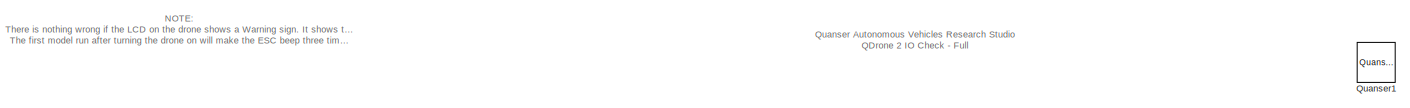
[diagram: root canvas - part 1/3, top center region]
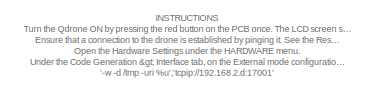
[diagram: root canvas - part 2/3, top left region]
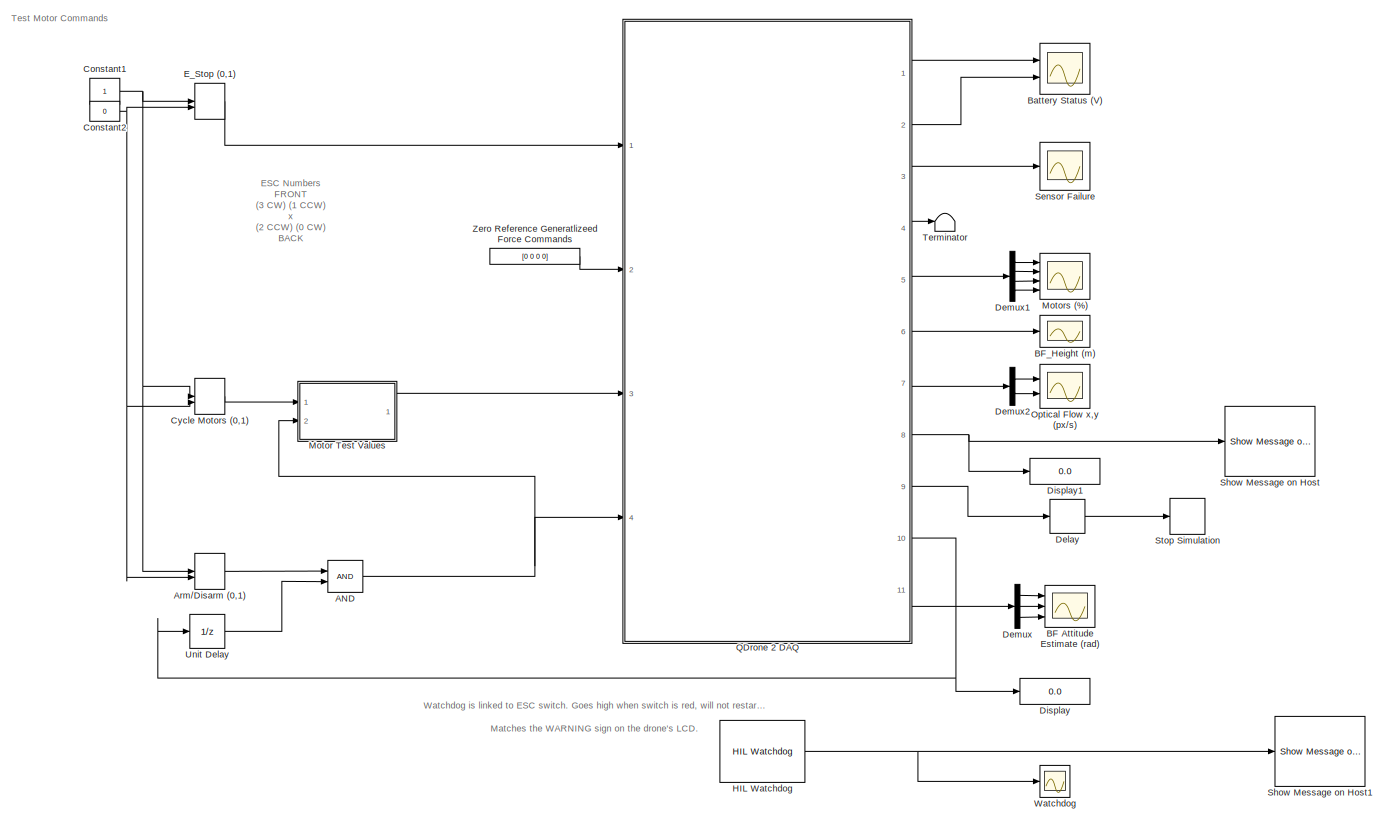
[diagram: root canvas - part 3/3, right side, full height]
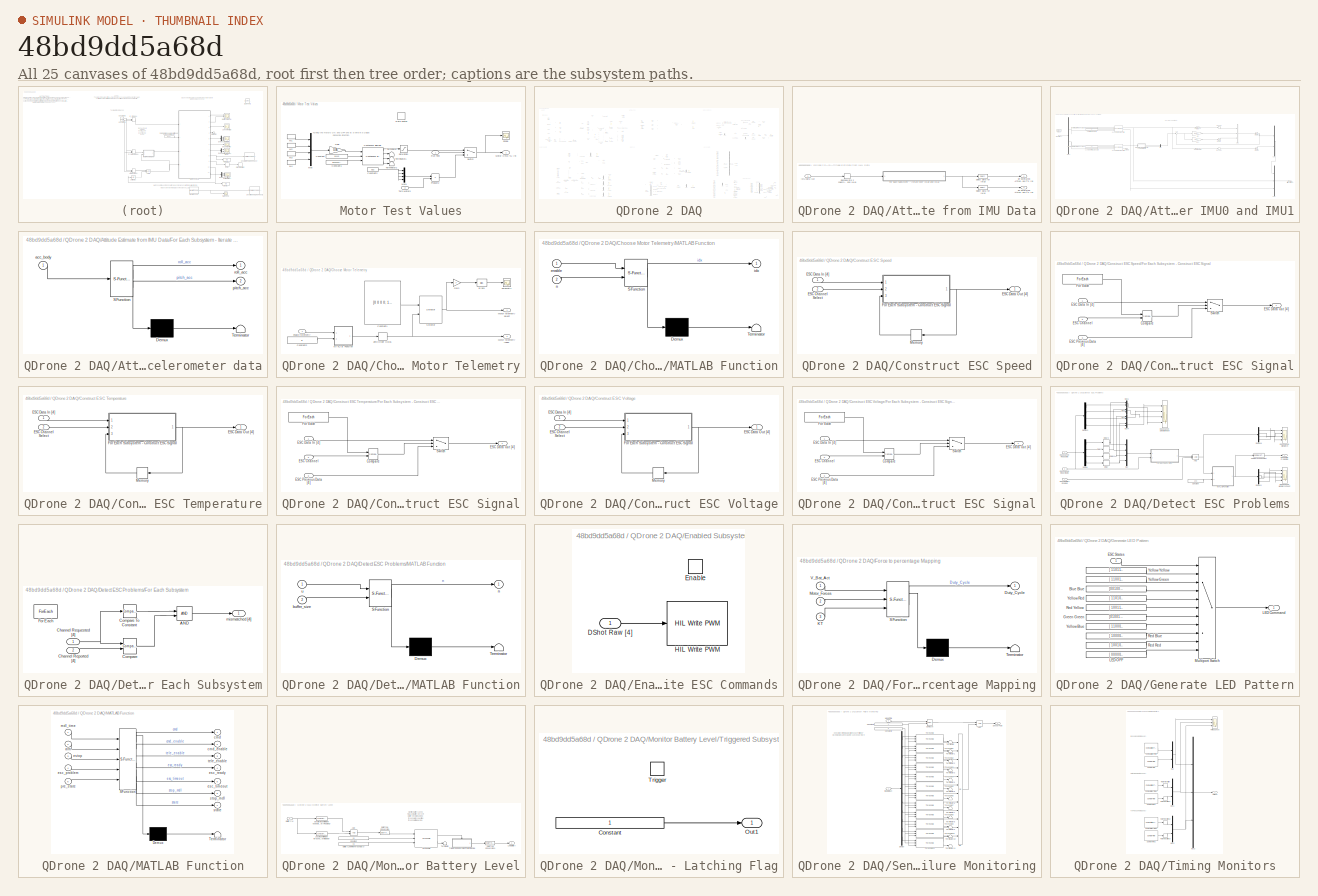
[diagram: thumbnail index - all 25 canvases of the model, root first then tree order]
MODEL slx_48bd9dd5a68d
KIND model
CONFIG AbsTol = auto
CONFIG EnableMultiTasking = on
CONFIG FixedStep = 0.002
CONFIG InitFcn = Motor_Mapping_7_Inch
CONFIG MaxStep = auto
CONFIG MinStep = auto
CONFIG RelTol = 1e-3
CONFIG SampleTimeConstraint = Unconstrained
CONFIG SolverName = ode2
CONFIG StartTime = 0.0
CONFIG StopTime = inf
BLOCK [Logic] AND
  AllPortsSameDT = off
  IconShape = distinctive
  OutDataTypeStr = boolean
  Ports = [2, 1]
BLOCK [ManualSwitch] Arm//Disarm (0,1)
  CurrentSetting = 0
  InitFcn = set_param(gcb,'sw','0')
BLOCK [Scope] BF Attitude Estimate (rad) 
  Floating = off
  NameLocation = right
  NumInputPorts = 3
  Ports = [3]
  ScopeSpecificationString = Simulink.scopes.TimeScopeBlockCfg('CurrentConfiguration', extmgr.ConfigurationSet(extmgr.Configuration('Core','General UI',true),extmgr.Configuration('Core','Source UI',true),extmgr.Configuration('Sources','WiredSimulink',true,'DataLoggingVariableName','ScopeData1','DataLoggingSaveFormat','Array','DataLoggingDecimation','1','DataLoggingDecimateData',true),extmgr.Configuration('Visuals','Time Domai...<+3142ch>
BLOCK [Scope] BF_Height (m)
  Floating = off
  NameLocation = right
  NumInputPorts = 1
  Ports = [1]
  ScopeSpecificationString = Simulink.scopes.TimeScopeBlockCfg('CurrentConfiguration', extmgr.ConfigurationSet(extmgr.Configuration('Core','General UI',true),extmgr.Configuration('Core','Source UI',true),extmgr.Configuration('Sources','WiredSimulink',true,'DataLoggingVariableName','ScopeData2'),extmgr.Configuration('Visuals','Time Domain',true,'SerializedDisplays',{struct('MinYLimReal','0','MaxYLimReal','1.5','YLabelReal','',...<+1423ch>
BLOCK [Scope] Battery Status (V)
  Floating = off
  NameLocation = right
  NumInputPorts = 2
  Ports = [2]
  ScopeSpecificationString = Simulink.scopes.TimeScopeBlockCfg('CurrentConfiguration', extmgr.ConfigurationSet(extmgr.Configuration('Core','General UI',true),extmgr.Configuration('Core','Source UI',true),extmgr.Configuration('Sources','WiredSimulink',true),extmgr.Configuration('Visuals','Time Domain',true,'SerializedDisplays',{struct('MinYLimReal','-1.00000','MaxYLimReal','1.00000','YLabelReal','','MinYLimMag','0.00000','MaxY...<+2022ch>
BLOCK [Constant] Constant1
BLOCK [Constant] Constant2
  Value = 0
BLOCK [ManualSwitch] Cycle Motors (0,1)
  CurrentSetting = 0
  InitFcn = set_param(gcb,'sw','0')
BLOCK [Delay] Delay
  InputPortMap = u0
  Ports = [1, 1]
BLOCK [Demux] Demux
  Outputs = 3
  Ports = [1, 3]
BLOCK [Demux] Demux1
  Ports = [1, 4]
BLOCK [Demux] Demux2
  Outputs = 2
  Ports = [1, 2]
BLOCK [Display] Display
  Decimation = 1
  Ports = [1]
BLOCK [Display] Display1
  Decimation = 1
  Ports = [1]
BLOCK [ManualSwitch] E_Stop (0,1)
  CurrentSetting = 0
BLOCK [Reference] HIL Watchdog  REF=quarc_library/Data Acquisition/Generic/Watchdog/HIL Watchdog
  AttributesFormatString = (%<object_name>)
  Ports = [0, 1]
  SourceBlock = quarc_library/Data Acquisition/Generic/Watchdog/HIL Watchdog
  SourceProductName = QUARC Targets
  SourceType = HIL Watchdog
  UserDataPersistent = on
BLOCK [SubSystem] Motor Test Values
  NameLocation = top
  Ports = [2, 1]
BLOCK [Constant] Motor Test Values/Constant
  Value = [4 4 4 4]
BLOCK [Constant] Motor Test Values/Constant1
  Value = [10 10 10 10]
BLOCK [Constant] Motor Test Values/Constant2
  Value = 0.02
BLOCK [Reference] Motor Test Values/Continuous Sigmoid  REF=quarc_library/Sources/Sigmoids/Continuous Sigmoid
  Ports = [3, 4]
  SourceBlock = quarc_library/Sources/Sigmoids/Continuous Sigmoid
  SourceProductName = QUARC Targets
  SourceType = Continuous Sigmoid
BLOCK [Gain] Motor Test Values/Gain
  Gain = 0.06
BLOCK [DiscretePulseGenerator] Motor Test Values/M1
  Period = 8
  Ports = [0, 1]
  PulseType = Time based
  PulseWidth = 12.5
BLOCK [DiscretePulseGenerator] Motor Test Values/M2
  Period = 8
  PhaseDelay = 6
  Ports = [0, 1]
  PulseType = Time based
  PulseWidth = 12.5
BLOCK [DiscretePulseGenerator] Motor Test Values/M3
  Period = 8
  PhaseDelay = 2
  Ports = [0, 1]
  PulseType = Time based
  PulseWidth = 12.5
BLOCK [DiscretePulseGenerator] Motor Test Values/M4
  Period = 8
  PhaseDelay = 4
  Ports = [0, 1]
  PulseType = Time based
  PulseWidth = 12.5
BLOCK [Outport] Motor Test Values/Motor Cmd (%) [4]
  VectorParamsAs1DForOutWhenUnconnected = off
BLOCK [Mux] Motor Test Values/Mux
  DisplayOption = bar
  Ports = [4, 1]
BLOCK [Mux] Motor Test Values/Mux1
  DisplayOption = bar
  Ports = [4, 1]
BLOCK [Product] Motor Test Values/Product2
  Ports = [2, 1]
BLOCK [RateLimiter] Motor Test Values/Rate Limiter
  Commented = on
  FallingSlewLimit = -0.1
  RisingSlewLimit = 0.1
  SampleTimeMode = inherited
BLOCK [Inport] Motor Test Values/Run Test
  NameLocation = left
BLOCK [Saturate] Motor Test Values/Saturation
  LowerLimit = 0.02
  UpperLimit = 0.1
BLOCK [Scope] Motor Test Values/Scope
  Floating = off
  NumInputPorts = 1
  Ports = [1]
  ScopeSpecificationString = Simulink.scopes.TimeScopeBlockCfg('CurrentConfiguration', extmgr.ConfigurationSet(extmgr.Configuration('Core','General UI',true),extmgr.Configuration('Core','Source UI',true),extmgr.Configuration('Sources','WiredSimulink',true,'DataLoggingVariableName','ScopeData1'),extmgr.Configuration('Visuals','Time Domain',true,'SerializedDisplays',{struct('MinYLimReal','-0.0075','MaxYLimReal','0.0675','YLabel...<+1448ch>
BLOCK [Switch] Motor Test Values/Switch
  Criteria = u2 > Threshold
  InputSameDT = off
  SaturateOnIntegerOverflow = off
BLOCK [Terminator] Motor Test Values/Terminator
BLOCK [Terminator] Motor Test Values/Terminator1
BLOCK [Terminator] Motor Test Values/Terminator2
BLOCK [Inport] Motor Test Values/Turn Motors
  NameLocation = left
  Port = 2
BLOCK [Scope] Motors (%)
  Floating = off
  NameLocation = right
  NumInputPorts = 4
  Ports = [4]
  ScopeSpecificationString = Simulink.scopes.TimeScopeBlockCfg('CurrentConfiguration', extmgr.ConfigurationSet(extmgr.Configuration('Core','General UI',true),extmgr.Configuration('Core','Source UI',true),extmgr.Configuration('Sources','WiredSimulink',true,'DataLoggingVariableName','ScopeData2'),extmgr.Configuration('Visuals','Time Domain',true,'SerializedDisplays',{struct('MinYLimReal','-0.0349','MaxYLimReal','0.1167','YLabel...<+3880ch>
BLOCK [Scope] Optical Flow x,y (px//s)
  Floating = off
  NameLocation = right
  NumInputPorts = 2
  Ports = [2]
  ScopeSpecificationString = Simulink.scopes.TimeScopeBlockCfg('CurrentConfiguration', extmgr.ConfigurationSet(extmgr.Configuration('Core','General UI',true),extmgr.Configuration('Core','Source UI',true),extmgr.Configuration('Sources','WiredSimulink',true,'DataLoggingVariableName','ScopeData4'),extmgr.Configuration('Visuals','Time Domain',true,'SerializedDisplays',{struct('MinYLimReal','-1094.93542','MaxYLimReal','1121.71199'...<+2088ch>
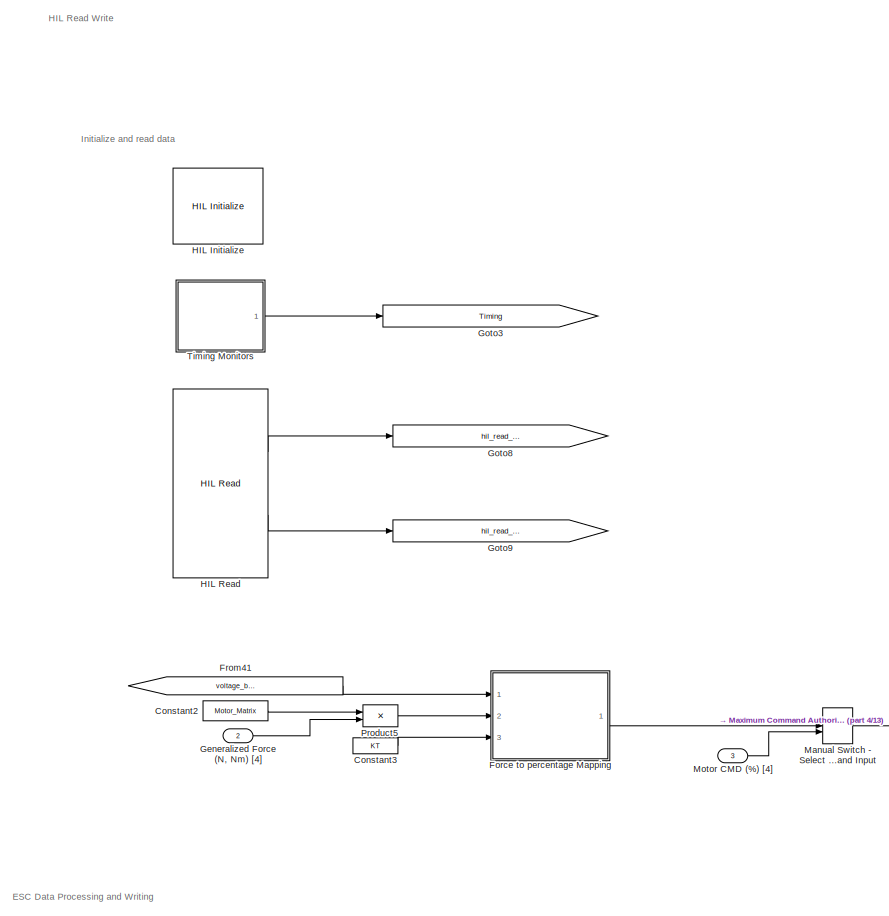
[diagram: QDrone 2 DAQ - part 1/13, top left region]
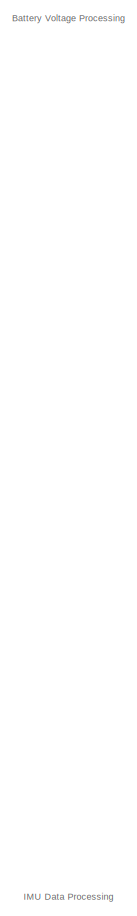
[diagram: QDrone 2 DAQ - part 2/13, top center region]
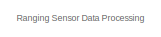
[diagram: QDrone 2 DAQ - part 3/13, top right region]
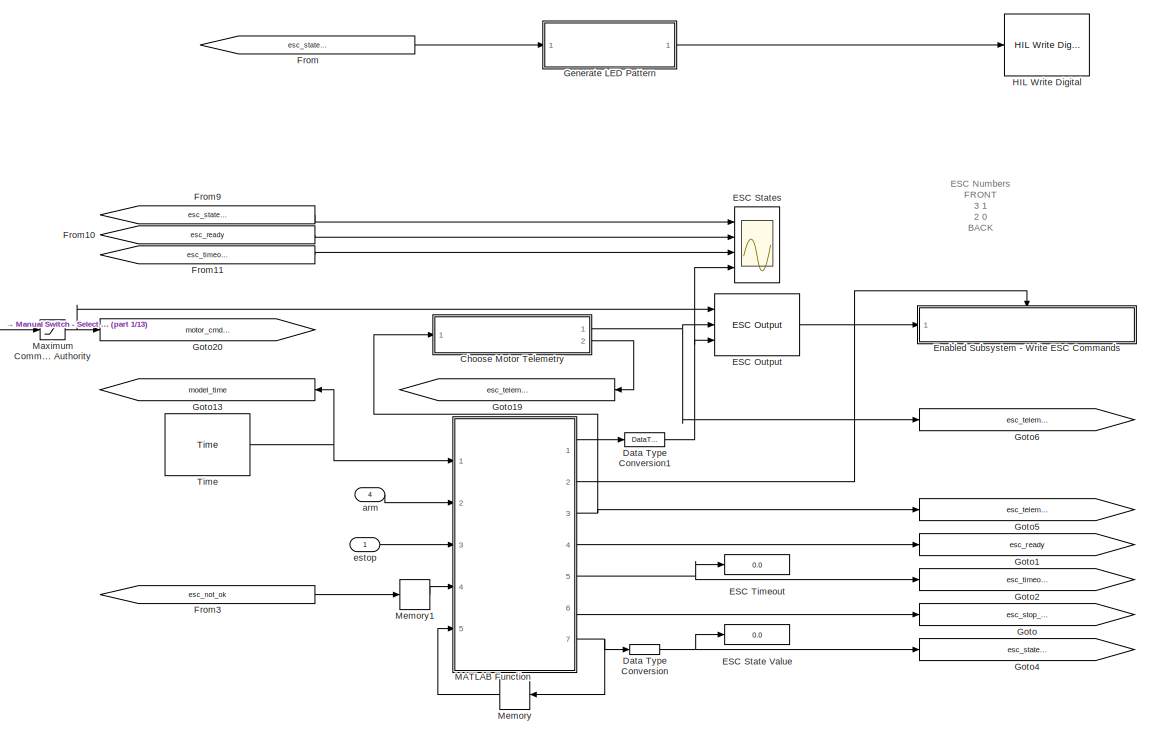
[diagram: QDrone 2 DAQ - part 4/13, top left region]
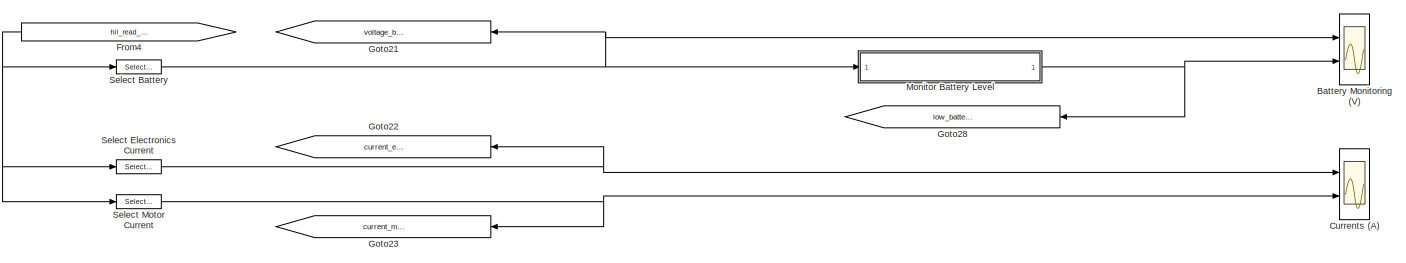
[diagram: QDrone 2 DAQ - part 5/13, top center region]
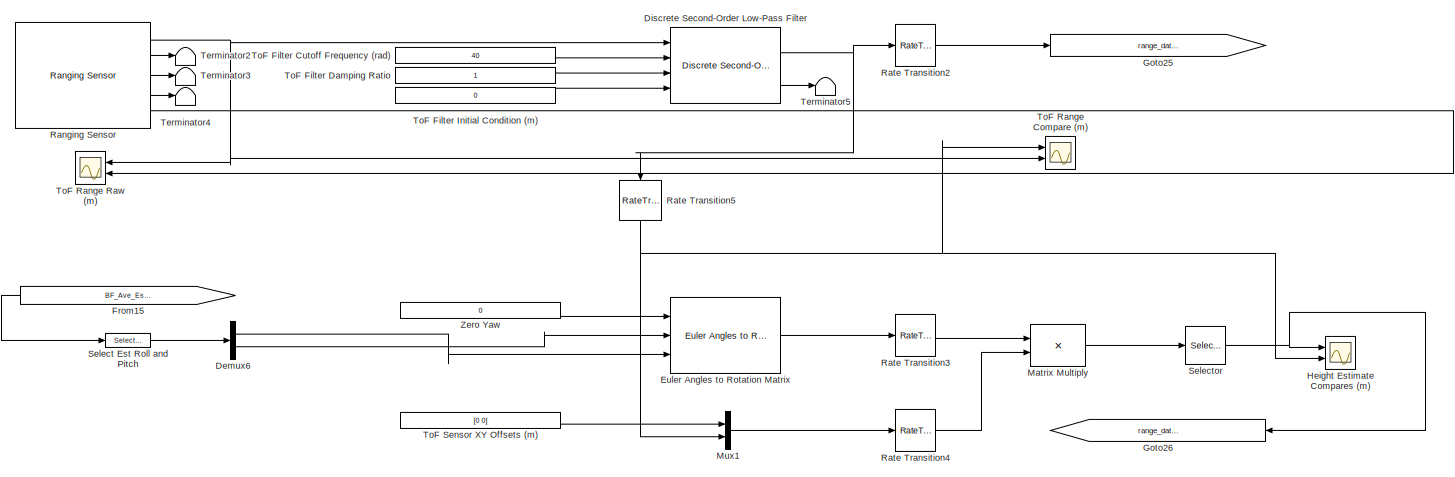
[diagram: QDrone 2 DAQ - part 6/13, top right region]
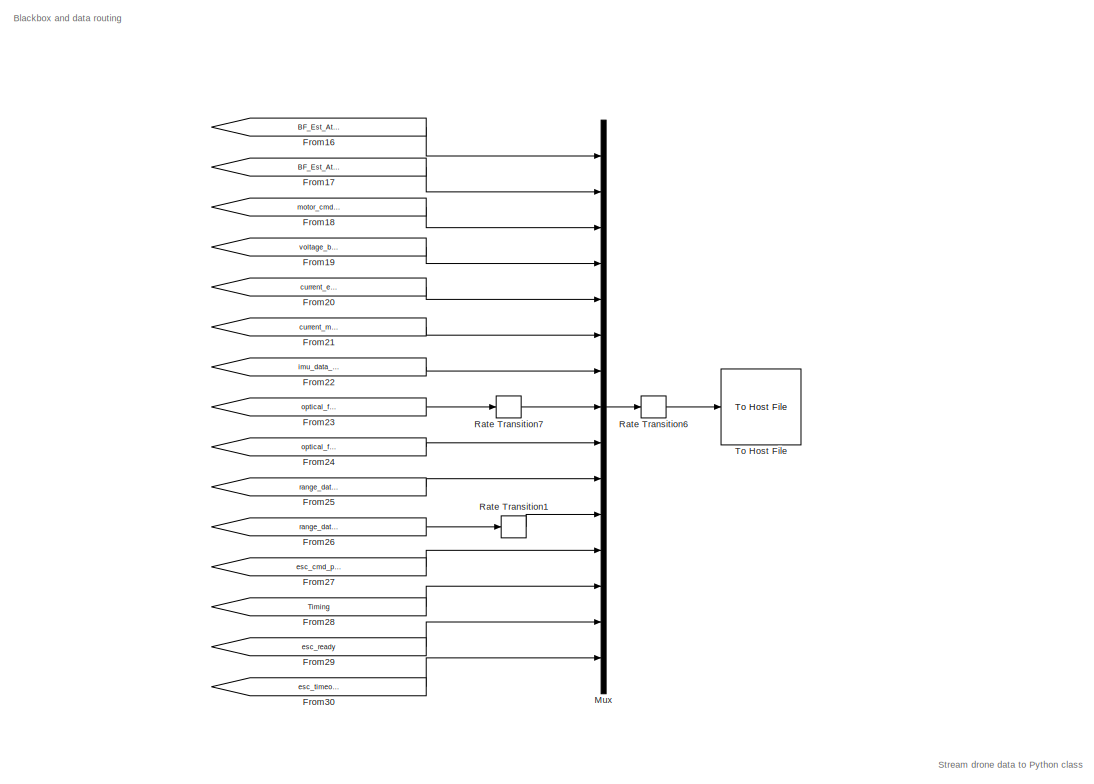
[diagram: QDrone 2 DAQ - part 7/13, middle right region]
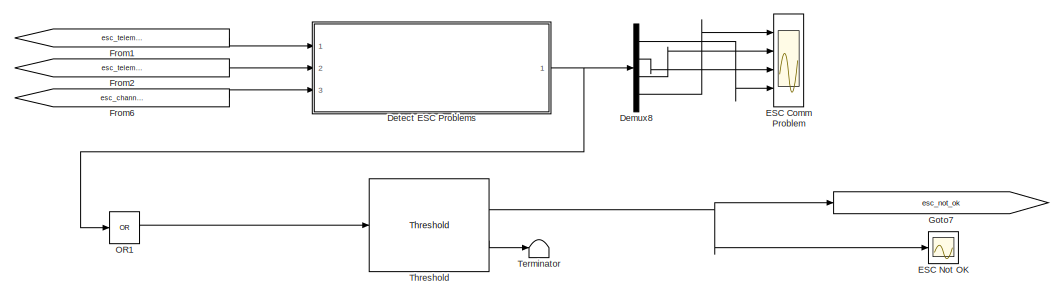
[diagram: QDrone 2 DAQ - part 8/13, middle left region]
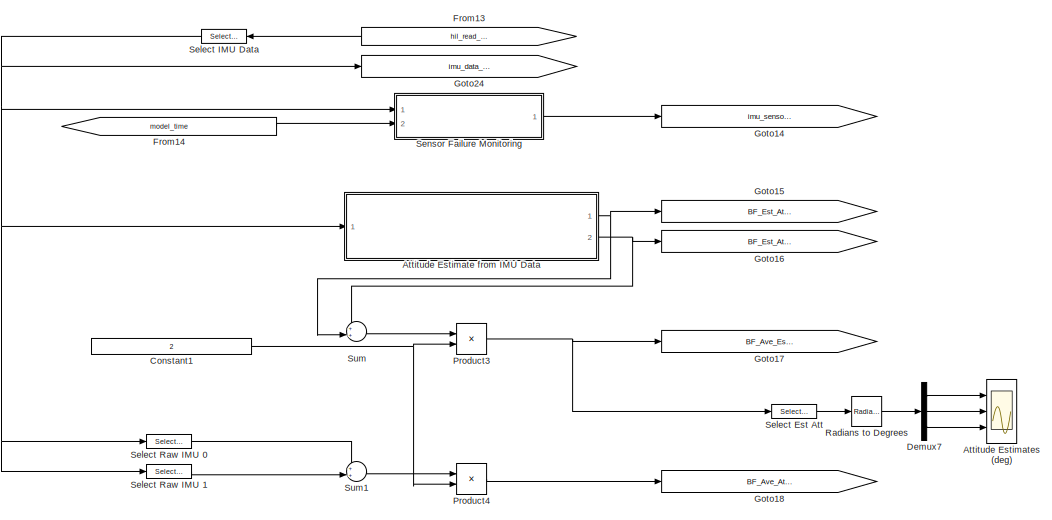
[diagram: QDrone 2 DAQ - part 9/13, central region]
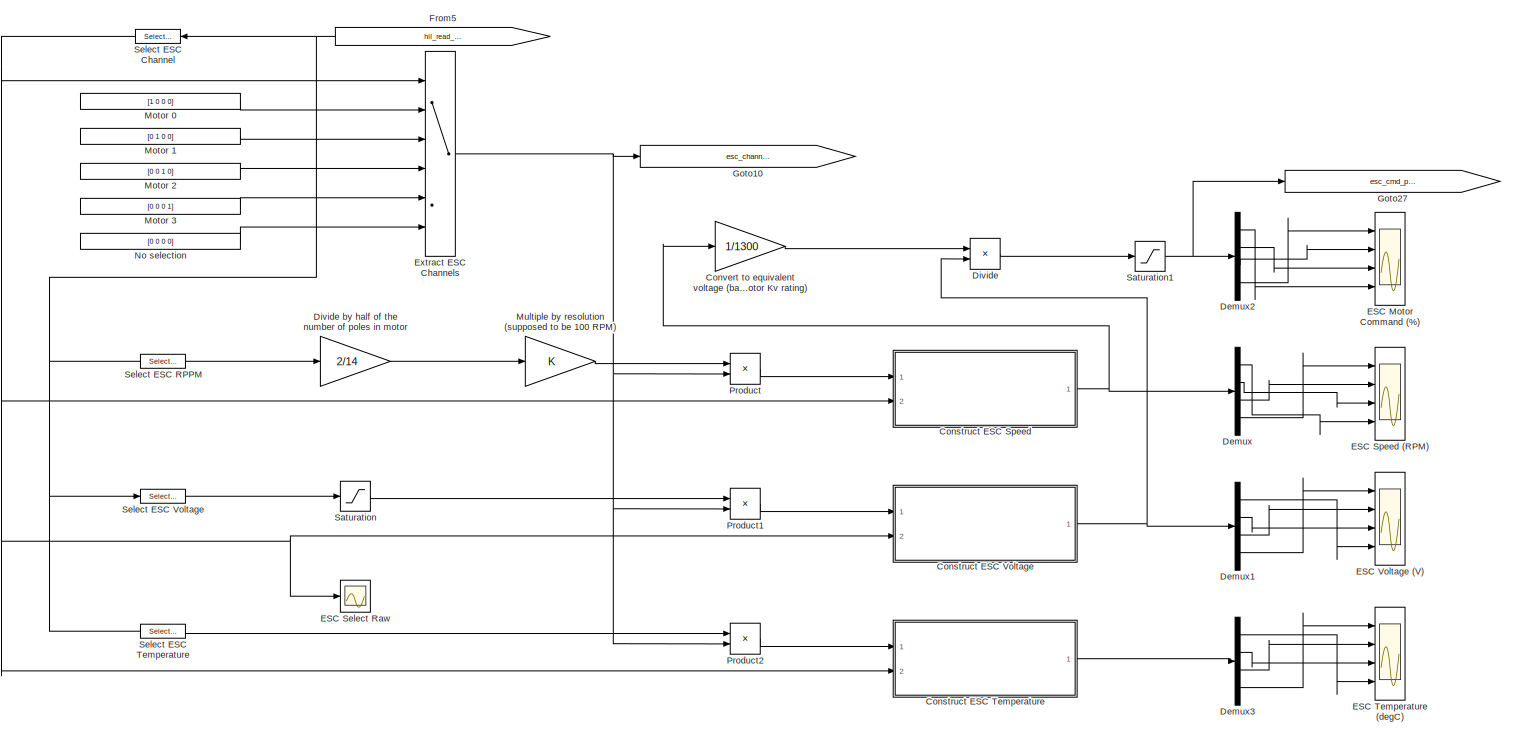
[diagram: QDrone 2 DAQ - part 10/13, bottom left region]
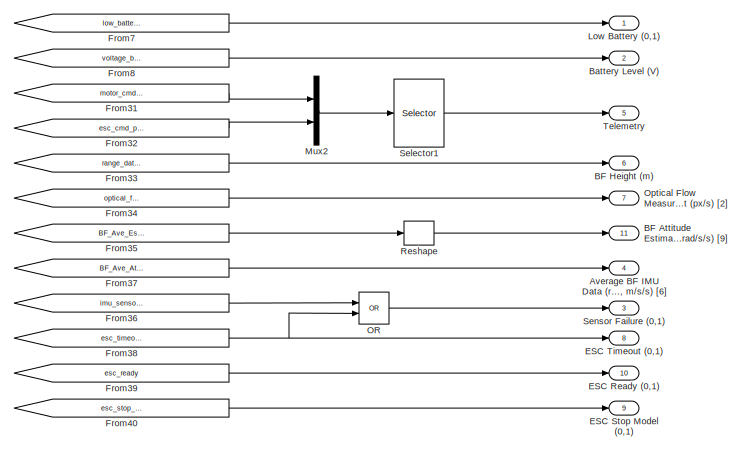
[diagram: QDrone 2 DAQ - part 11/13, bottom right region]
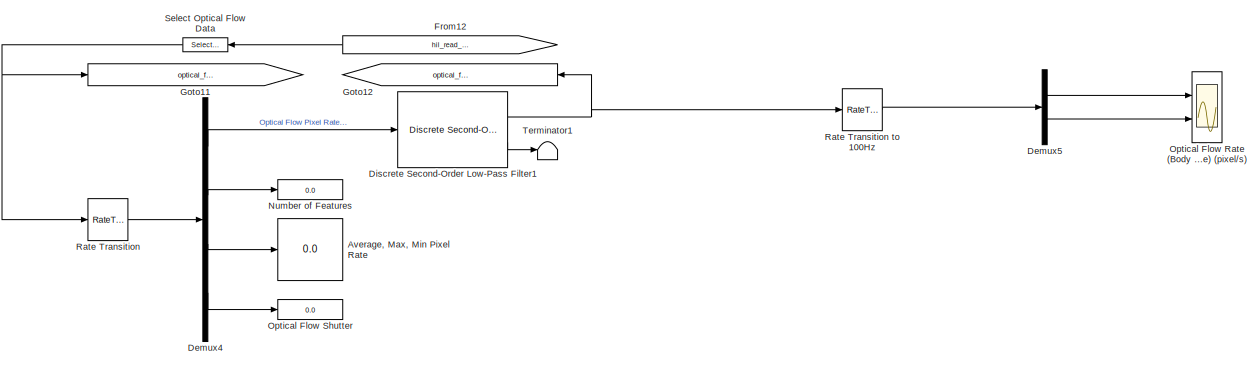
[diagram: QDrone 2 DAQ - part 12/13, bottom center region]
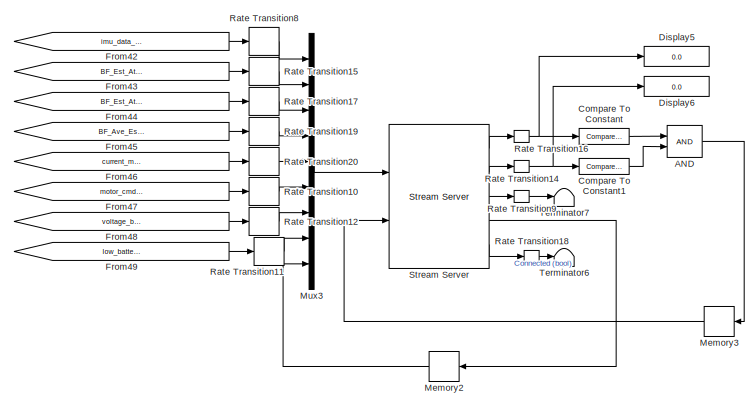
[diagram: QDrone 2 DAQ - part 13/13, bottom right region]
BLOCK [SubSystem] QDrone 2 DAQ
  Ports = [4, 11]
BLOCK [Logic] QDrone 2 DAQ/AND
  AllPortsSameDT = off
  IconShape = distinctive
  OutDataTypeStr = boolean
  Ports = [2, 1]
BLOCK [SubSystem] QDrone 2 DAQ/Attitude Estimate from IMU Data
  NameLocation = top
  Ports = [1, 2]
BLOCK [Outport] QDrone 2 DAQ/Attitude Estimate from IMU Data/BF Estimated Attitude for IMU0 (rad, rad//s, rad//2^2) [9]
  NameLocation = right
BLOCK [Outport] QDrone 2 DAQ/Attitude Estimate from IMU Data/BF Estimated Attitude for IMU1 (rad, rad//s, rad//2^2) [9]
  NameLocation = right
  Port = 2
BLOCK [SubSystem] QDrone 2 DAQ/Attitude Estimate from IMU Data/For Each Subsystem - Iterate over IMU0 and IMU1
  Ports = [1, 1]
  TreatAsAtomicUnit = on
BLOCK [Constant] QDrone 2 DAQ/Attitude Estimate from IMU Data/For Each Subsystem - Iterate over IMU0 and IMU1/Accelerometer Filter Cutoff Frequency (rad//s)
  NameLocation = left
  Value = 120
BLOCK [Constant] QDrone 2 DAQ/Attitude Estimate from IMU Data/For Each Subsystem - Iterate over IMU0 and IMU1/Accelerometer Filter Damping Ratio
  NameLocation = left
BLOCK [Outport] QDrone 2 DAQ/Attitude Estimate from IMU Data/For Each Subsystem - Iterate over IMU0 and IMU1/BF Estimated Attitude (rad, rad//s, rad//2^2) [9xn]
  ConcatenationDimension = 2
BLOCK [Demux] QDrone 2 DAQ/Attitude Estimate from IMU Data/For Each Subsystem - Iterate over IMU0 and IMU1/Demux
  Outputs = [3, 3]
  Ports = [1, 2]
BLOCK [ForEach] QDrone 2 DAQ/Attitude Estimate from IMU Data/For Each Subsystem - Iterate over IMU0 and IMU1/For Each
  DisableCoverage = on
  Ports = []
BLOCK [Gain] QDrone 2 DAQ/Attitude Estimate from IMU Data/For Each Subsystem - Iterate over IMU0 and IMU1/Gain
  Gain = [0.25 0.25]
BLOCK [Gain] QDrone 2 DAQ/Attitude Estimate from IMU Data/For Each Subsystem - Iterate over IMU0 and IMU1/Gain1
  Gain = [0.1 0.1]
BLOCK [Constant] QDrone 2 DAQ/Attitude Estimate from IMU Data/For Each Subsystem - Iterate over IMU0 and IMU1/Gyro Filter Cutoff Frequency (rad//s)
  NameLocation = left
  Value = 100
BLOCK [Constant] QDrone 2 DAQ/Attitude Estimate from IMU Data/For Each Subsystem - Iterate over IMU0 and IMU1/Gyro Filter Damping Ratio
  NameLocation = left
  Value = 0.7
BLOCK [Inport] QDrone 2 DAQ/Attitude Estimate from IMU Data/For Each Subsystem - Iterate over IMU0 and IMU1/IMU Data [6xn]
  NameLocation = left
  Partition = on
  PartitionDimension = 2
  PartitionOffset = 0
  PartitionWidth = 1
BLOCK [Integrator] QDrone 2 DAQ/Attitude Estimate from IMU Data/For Each Subsystem - Iterate over IMU0 and IMU1/Integrator
  Ports = [1, 1]
BLOCK [Integrator] QDrone 2 DAQ/Attitude Estimate from IMU Data/For Each Subsystem - Iterate over IMU0 and IMU1/Integrator1
  Ports = [1, 1]
BLOCK [Integrator] QDrone 2 DAQ/Attitude Estimate from IMU Data/For Each Subsystem - Iterate over IMU0 and IMU1/Integrator2
  Ports = [1, 1]
BLOCK [Mux] QDrone 2 DAQ/Attitude Estimate from IMU Data/For Each Subsystem - Iterate over IMU0 and IMU1/Mux
  DisplayOption = bar
  Inputs = 2
  Ports = [2, 1]
BLOCK [Mux] QDrone 2 DAQ/Attitude Estimate from IMU Data/For Each Subsystem - Iterate over IMU0 and IMU1/Mux1
  DisplayOption = bar
  Inputs = 2
  Ports = [2, 1]
BLOCK [Mux] QDrone 2 DAQ/Attitude Estimate from IMU Data/For Each Subsystem - Iterate over IMU0 and IMU1/Mux2
  DisplayOption = bar
  Inputs = 3
  Ports = [3, 1]
BLOCK [Reshape] QDrone 2 DAQ/Attitude Estimate from IMU Data/For Each Subsystem - Iterate over IMU0 and IMU1/Reshape
  Ports = [1, 1]
BLOCK [Reshape] QDrone 2 DAQ/Attitude Estimate from IMU Data/For Each Subsystem - Iterate over IMU0 and IMU1/Reshape1
  Ports = [1, 1]
BLOCK [SubSystem] QDrone 2 DAQ/Attitude Estimate from IMU Data/For Each Subsystem - Iterate over IMU0 and IMU1/Roll and Pitch Approximation from Accelerometer data
  ErrorFcn = Stateflow.Translate.translate
  PermitHierarchicalResolution = ExplicitOnly
  Ports = [1, 2]
  SFBlockType = MATLAB Function
  TreatAsAtomicUnit = on
BLOCK [Demux] QDrone 2 DAQ/Attitude Estimate from IMU Data/For Each Subsystem - Iterate over IMU0 and IMU1/Roll and Pitch Approximation from Accelerometer data/ Demux 
  Outputs = 1
  Ports = [1, 1]
BLOCK [S-Function] QDrone 2 DAQ/Attitude Estimate from IMU Data/For Each Subsystem - Iterate over IMU0 and IMU1/Roll and Pitch Approximation from Accelerometer data/ SFunction 
  EnableBusSupport = off
  FunctionName = sf_sfun
  PortCounts = [1 3]
  Ports = [1, 3]
  SFcnIsStateOwnerBlock = off
  SFunctionDeploymentMode = off
  Tag = Stateflow S-Function 20
BLOCK [Terminator] QDrone 2 DAQ/Attitude Estimate from IMU Data/For Each Subsystem - Iterate over IMU0 and IMU1/Roll and Pitch Approximation from Accelerometer data/ Terminator 
BLOCK [Inport] QDrone 2 DAQ/Attitude Estimate from IMU Data/For Each Subsystem - Iterate over IMU0 and IMU1/Roll and Pitch Approximation from Accelerometer data/acc_body
BLOCK [Outport] QDrone 2 DAQ/Attitude Estimate from IMU Data/For Each Subsystem - Iterate over IMU0 and IMU1/Roll and Pitch Approximation from Accelerometer data/pitch_acc
  Port = 2
BLOCK [Outport] QDrone 2 DAQ/Attitude Estimate from IMU Data/For Each Subsystem - Iterate over IMU0 and IMU1/Roll and Pitch Approximation from Accelerometer data/roll_acc
BLOCK [Reference] QDrone 2 DAQ/Attitude Estimate from IMU Data/For Each Subsystem - Iterate over IMU0 and IMU1/Second-Order Low-Pass Filter  REF=quarc_library/Continuous/Second-Order
Low-Pass Filter
  Ports = [4, 2]
  SourceBlock = quarc_library/Continuous/Second-Order\nLow-Pass Filter
  SourceProductName = QUARC Targets
  SourceType = Second-Order Low-Pass Filter
BLOCK [Reference] QDrone 2 DAQ/Attitude Estimate from IMU Data/For Each Subsystem - Iterate over IMU0 and IMU1/Second-Order Low-Pass Filter1  REF=quarc_library/Continuous/Second-Order
Low-Pass Filter
  Ports = [4, 2]
  SourceBlock = quarc_library/Continuous/Second-Order\nLow-Pass Filter
  SourceProductName = QUARC Targets
  SourceType = Second-Order Low-Pass Filter
BLOCK [Selector] QDrone 2 DAQ/Attitude Estimate from IMU Data/For Each Subsystem - Iterate over IMU0 and IMU1/Select XY Gyro Rates
  IndexOptions = Index vector (dialog)
  Indices = [1 2]
  InputPortWidth = 3
  OutputSizes = 1
  Ports = [1, 1]
BLOCK [Selector] QDrone 2 DAQ/Attitude Estimate from IMU Data/For Each Subsystem - Iterate over IMU0 and IMU1/Select Z Gyro Rate
  IndexOptions = Index vector (dialog)
  Indices = [3]
  InputPortWidth = 3
  OutputSizes = 1
  Ports = [1, 1]
BLOCK [Sum] QDrone 2 DAQ/Attitude Estimate from IMU Data/For Each Subsystem - Iterate over IMU0 and IMU1/Sum
  Inputs = |-+
  Ports = [2, 1]
BLOCK [Sum] QDrone 2 DAQ/Attitude Estimate from IMU Data/For Each Subsystem - Iterate over IMU0 and IMU1/Sum1
  IconShape = rectangular
  Inputs = +--
  Ports = [3, 1]
BLOCK [Terminator] QDrone 2 DAQ/Attitude Estimate from IMU Data/For Each Subsystem - Iterate over IMU0 and IMU1/Terminator
BLOCK [Inport] QDrone 2 DAQ/Attitude Estimate from IMU Data/IMU Data [12]
  NameLocation = left
BLOCK [Reshape] QDrone 2 DAQ/Attitude Estimate from IMU Data/Reshape into 2 columns for IMU0 and IMU1
  OutputDimensionality = Customize
  OutputDimensions = [6,2]
  Ports = [1, 1]
BLOCK [Selector] QDrone 2 DAQ/Attitude Estimate from IMU Data/Select Data for IMU0
  IndexOptions = Index vector (dialog),Index vector (dialog)
  Indices = [1:9],[1]
  InputPortWidth = 3
  NumberOfDimensions = 2
  OutputSizes = 1,1
  Ports = [1, 1]
BLOCK [Selector] QDrone 2 DAQ/Attitude Estimate from IMU Data/Select Data for IMU1
  IndexOptions = Index vector (dialog),Index vector (dialog)
  Indices = [1:9],[2]
  InputPortWidth = 3
  NumberOfDimensions = 2
  OutputSizes = 1,1
  Ports = [1, 1]
BLOCK [Scope] QDrone 2 DAQ/Attitude Estimates (deg)
  Commented = on
  Floating = off
  NumInputPorts = 3
  Ports = [3]
  ScopeSpecificationString = Simulink.scopes.TimeScopeBlockCfg('CurrentConfiguration', extmgr.ConfigurationSet(extmgr.Configuration('Core','General UI',true),extmgr.Configuration('Core','Source UI',true),extmgr.Configuration('Sources','WiredSimulink',true,'DataLoggingVariableName','ScopeData4'),extmgr.Configuration('Visuals','Time Domain',true,'SerializedDisplays',{struct('MinYLimReal','-29.47666','MaxYLimReal','31.43341','YL...<+2769ch>
BLOCK [Outport] QDrone 2 DAQ/Average BF IMU Data (rad//s, m//s//s) [6]
  NameLocation = right
  Port = 4
BLOCK [Display] QDrone 2 DAQ/Average, Max, Min Pixel Rate
  Decimation = 1
  NameLocation = top
  Ports = [1]
BLOCK [Outport] QDrone 2 DAQ/BF Attitude Estimates (rad, rad//s, rad//s//s) [9]
  NameLocation = right
  Port = 11
BLOCK [Outport] QDrone 2 DAQ/BF Height (m)
  NameLocation = right
  Port = 6
BLOCK [Outport] QDrone 2 DAQ/Battery Level (V)
  NameLocation = right
  Port = 2
BLOCK [Scope] QDrone 2 DAQ/Battery Monitoring (V)
  Commented = on
  Floating = off
  NameLocation = right
  NumInputPorts = 2
  Ports = [2]
  ScopeSpecificationString = Simulink.scopes.TimeScopeBlockCfg('CurrentConfiguration', extmgr.ConfigurationSet(extmgr.Configuration('Core','General UI',true),extmgr.Configuration('Core','Source UI',true),extmgr.Configuration('Sources','WiredSimulink',true,'DataLoggingVariableName','ScopeData2'),extmgr.Configuration('Visuals','Time Domain',true,'SerializedDisplays',{struct('MinYLimReal','16.17703','MaxYLimReal','16.49829','YLa...<+2061ch>
BLOCK [SubSystem] QDrone 2 DAQ/Choose Motor Telemetry
  Ports = [1, 2]
BLOCK [Bias] QDrone 2 DAQ/Choose Motor Telemetry/Bias1
  Bias = 0:3
  SaturateOnIntegerOverflow = off
BLOCK [Constant] QDrone 2 DAQ/Choose Motor Telemetry/Constant1
  Value = [0 0 0 0; 1 0 0 0; 0 0 0 0; 0 1 0 0; 0 0 0 0; 0 0 1 0; 0 0 0 0;  0 0 0 1]
BLOCK [Constant] QDrone 2 DAQ/Choose Motor Telemetry/Constant2
  Value = 8
BLOCK [Gain] QDrone 2 DAQ/Choose Motor Telemetry/Gain
  Gain = .7
BLOCK [SubSystem] QDrone 2 DAQ/Choose Motor Telemetry/MATLAB Function
  ErrorFcn = Stateflow.Translate.translate
  PermitHierarchicalResolution = ExplicitOnly
  Ports = [2, 1]
  SFBlockType = MATLAB Function
  TreatAsAtomicUnit = on
BLOCK [Demux] QDrone 2 DAQ/Choose Motor Telemetry/MATLAB Function/ Demux 
  Outputs = 1
  Ports = [1, 1]
BLOCK [S-Function] QDrone 2 DAQ/Choose Motor Telemetry/MATLAB Function/ SFunction 
  EnableBusSupport = off
  FunctionName = sf_sfun
  PortCounts = [2 2]
  Ports = [2, 2]
  SFcnIsStateOwnerBlock = off
  SFunctionDeploymentMode = off
  Tag = Stateflow S-Function 21
BLOCK [Terminator] QDrone 2 DAQ/Choose Motor Telemetry/MATLAB Function/ Terminator 
BLOCK [Inport] QDrone 2 DAQ/Choose Motor Telemetry/MATLAB Function/enable
BLOCK [Outport] QDrone 2 DAQ/Choose Motor Telemetry/MATLAB Function/idx
BLOCK [Inport] QDrone 2 DAQ/Choose Motor Telemetry/MATLAB Function/n
  Port = 2
BLOCK [Outport] QDrone 2 DAQ/Choose Motor Telemetry/Motor telemetry index
  NameLocation = right
  Port = 2
BLOCK [Outport] QDrone 2 DAQ/Choose Motor Telemetry/Motor telemetry select
  NameLocation = right
BLOCK [Selector] QDrone 2 DAQ/Choose Motor Telemetry/Selector
  IndexMode = Zero-based
  IndexOptions = Index vector (port),Select all
  Indices = [1 3],1
  InputPortWidth = 3
  NumberOfDimensions = 2
  OutputSizes = 1,1
  Ports = [2, 1]
BLOCK [Scope] QDrone 2 DAQ/Choose Motor Telemetry/Telemetry
  Floating = off
  NameLocation = right
  NumInputPorts = 1
  Ports = [1]
  ScopeSpecificationString = Simulink.scopes.TimeScopeBlockCfg('CurrentConfiguration', extmgr.ConfigurationSet(extmgr.Configuration('Core','General UI',true),extmgr.Configuration('Core','Source UI',true),extmgr.Configuration('Sources','WiredSimulink',true,'DataLoggingVariableName','ScopeData2'),extmgr.Configuration('Visuals','Time Domain',true,'SerializedDisplays',{struct('MinYLimReal','-0.4625','MaxYLimReal','4.1625','YLabel...<+1957ch>
BLOCK [ZeroOrderHold] QDrone 2 DAQ/Choose Motor Telemetry/Zero-Order Hold1
  SampleTime = -1
BLOCK [Inport] QDrone 2 DAQ/Choose Motor Telemetry/enable telemetry
  NameLocation = left
BLOCK [Reference] QDrone 2 DAQ/Compare To Constant  REF=simulink/Logic and Bit
Operations/Compare
To Constant
  Ports = [1, 1]
  SourceBlock = simulink/Logic and Bit\nOperations/Compare\nTo Constant
  SourceType = Compare To Constant
BLOCK [Reference] QDrone 2 DAQ/Compare To Constant1  REF=simulink/Logic and Bit
Operations/Compare
To Constant
  Ports = [1, 1]
  SourceBlock = simulink/Logic and Bit\nOperations/Compare\nTo Constant
  SourceType = Compare To Constant
BLOCK [Constant] QDrone 2 DAQ/Constant1
  NameLocation = left
  Value = 2
BLOCK [Constant] QDrone 2 DAQ/Constant2
  OutDataTypeStr = double
  Value = Motor_Matrix
BLOCK [Constant] QDrone 2 DAQ/Constant3
  OutDataTypeStr = double
  Value = KT
BLOCK [SubSystem] QDrone 2 DAQ/Construct ESC Speed
  Ports = [2, 1]
BLOCK [Inport] QDrone 2 DAQ/Construct ESC Speed/ESC Channel Select
  NameLocation = left
  Port = 2
BLOCK [Inport] QDrone 2 DAQ/Construct ESC Speed/ESC Data In [4]
  NameLocation = left
BLOCK [Outport] QDrone 2 DAQ/Construct ESC Speed/ESC Data Out [4]
BLOCK [SubSystem] QDrone 2 DAQ/Construct ESC Speed/For Each Subsystem - Construct ESC Signal
  Ports = [3, 1]
  TreatAsAtomicUnit = on
BLOCK [Reference] QDrone 2 DAQ/Construct ESC Speed/For Each Subsystem - Construct ESC Signal/Compare  REF=quarc_library/Logic Operations/Compare
  Ports = [2, 1]
  SourceBlock = quarc_library/Logic Operations/Compare
  SourceProductName = QUARC Targets
  SourceType = Compare
BLOCK [Inport] QDrone 2 DAQ/Construct ESC Speed/For Each Subsystem - Construct ESC Signal/ESC Channel
  NameLocation = left
  Port = 2
BLOCK [Inport] QDrone 2 DAQ/Construct ESC Speed/For Each Subsystem - Construct ESC Signal/ESC Data In [4]
  NameLocation = left
  Partition = on
  PartitionDimension = 1
  PartitionOffset = 0
  PartitionWidth = 1
BLOCK [Outport] QDrone 2 DAQ/Construct ESC Speed/For Each Subsystem - Construct ESC Signal/ESC Data Out [4]
  ConcatenationDimension = 1
  NameLocation = right
BLOCK [Inport] QDrone 2 DAQ/Construct ESC Speed/For Each Subsystem - Construct ESC Signal/ESC Previous Data [4]
  NameLocation = left
  Partition = on
  PartitionDimension = 1
  PartitionOffset = 0
  PartitionWidth = 1
  Port = 3
BLOCK [ForEach] QDrone 2 DAQ/Construct ESC Speed/For Each Subsystem - Construct ESC Signal/For Each
  DisableCoverage = on
  NameLocation = left
  Ports = [0, 1]
  ShowIterationIndex = on
BLOCK [Switch] QDrone 2 DAQ/Construct ESC Speed/For Each Subsystem - Construct ESC Signal/Switch
  Criteria = u2 ~= 0
  InputSameDT = off
  SaturateOnIntegerOverflow = off
BLOCK [Memory] QDrone 2 DAQ/Construct ESC Speed/Memory
  InitialCondition = zeros(1,4)
BLOCK [SubSystem] QDrone 2 DAQ/Construct ESC Temperature
  Ports = [2, 1]
BLOCK [Inport] QDrone 2 DAQ/Construct ESC Temperature/ESC Channel Select
  NameLocation = left
  Port = 2
BLOCK [Inport] QDrone 2 DAQ/Construct ESC Temperature/ESC Data In [4]
  NameLocation = left
BLOCK [Outport] QDrone 2 DAQ/Construct ESC Temperature/ESC Data Out [4]
BLOCK [SubSystem] QDrone 2 DAQ/Construct ESC Temperature/For Each Subsystem - Construct ESC Signal
  Ports = [3, 1]
  TreatAsAtomicUnit = on
BLOCK [Reference] QDrone 2 DAQ/Construct ESC Temperature/For Each Subsystem - Construct ESC Signal/Compare  REF=quarc_library/Logic Operations/Compare
  Ports = [2, 1]
  SourceBlock = quarc_library/Logic Operations/Compare
  SourceProductName = QUARC Targets
  SourceType = Compare
BLOCK [Inport] QDrone 2 DAQ/Construct ESC Temperature/For Each Subsystem - Construct ESC Signal/ESC Channel
  NameLocation = left
  Port = 2
BLOCK [Inport] QDrone 2 DAQ/Construct ESC Temperature/For Each Subsystem - Construct ESC Signal/ESC Data In [4]
  NameLocation = left
  Partition = on
  PartitionDimension = 1
  PartitionOffset = 0
  PartitionWidth = 1
BLOCK [Outport] QDrone 2 DAQ/Construct ESC Temperature/For Each Subsystem - Construct ESC Signal/ESC Data Out [4]
  ConcatenationDimension = 1
  NameLocation = right
BLOCK [Inport] QDrone 2 DAQ/Construct ESC Temperature/For Each Subsystem - Construct ESC Signal/ESC Previous Data [4]
  NameLocation = left
  Partition = on
  PartitionDimension = 1
  PartitionOffset = 0
  PartitionWidth = 1
  Port = 3
BLOCK [ForEach] QDrone 2 DAQ/Construct ESC Temperature/For Each Subsystem - Construct ESC Signal/For Each
  DisableCoverage = on
  NameLocation = left
  Ports = [0, 1]
  ShowIterationIndex = on
BLOCK [Switch] QDrone 2 DAQ/Construct ESC Temperature/For Each Subsystem - Construct ESC Signal/Switch
  Criteria = u2 ~= 0
  InputSameDT = off
  SaturateOnIntegerOverflow = off
BLOCK [Memory] QDrone 2 DAQ/Construct ESC Temperature/Memory
  InitialCondition = zeros(1,4)
BLOCK [SubSystem] QDrone 2 DAQ/Construct ESC Voltage
  Ports = [2, 1]
BLOCK [Inport] QDrone 2 DAQ/Construct ESC Voltage/ESC Channel Select
  NameLocation = left
  Port = 2
BLOCK [Inport] QDrone 2 DAQ/Construct ESC Voltage/ESC Data In [4]
  NameLocation = left
BLOCK [Outport] QDrone 2 DAQ/Construct ESC Voltage/ESC Data Out [4]
BLOCK [SubSystem] QDrone 2 DAQ/Construct ESC Voltage/For Each Subsystem - Construct ESC Signal
  Ports = [3, 1]
  TreatAsAtomicUnit = on
BLOCK [Reference] QDrone 2 DAQ/Construct ESC Voltage/For Each Subsystem - Construct ESC Signal/Compare  REF=quarc_library/Logic Operations/Compare
  Ports = [2, 1]
  SourceBlock = quarc_library/Logic Operations/Compare
  SourceProductName = QUARC Targets
  SourceType = Compare
BLOCK [Inport] QDrone 2 DAQ/Construct ESC Voltage/For Each Subsystem - Construct ESC Signal/ESC Channel
  NameLocation = left
  Port = 2
BLOCK [Inport] QDrone 2 DAQ/Construct ESC Voltage/For Each Subsystem - Construct ESC Signal/ESC Data In [4]
  NameLocation = left
  Partition = on
  PartitionDimension = 1
  PartitionOffset = 0
  PartitionWidth = 1
BLOCK [Outport] QDrone 2 DAQ/Construct ESC Voltage/For Each Subsystem - Construct ESC Signal/ESC Data Out [4]
  ConcatenationDimension = 1
  NameLocation = right
BLOCK [Inport] QDrone 2 DAQ/Construct ESC Voltage/For Each Subsystem - Construct ESC Signal/ESC Previous Data [4]
  NameLocation = left
  Partition = on
  PartitionDimension = 1
  PartitionOffset = 0
  PartitionWidth = 1
  Port = 3
BLOCK [ForEach] QDrone 2 DAQ/Construct ESC Voltage/For Each Subsystem - Construct ESC Signal/For Each
  DisableCoverage = on
  NameLocation = left
  Ports = [0, 1]
  ShowIterationIndex = on
BLOCK [Switch] QDrone 2 DAQ/Construct ESC Voltage/For Each Subsystem - Construct ESC Signal/Switch
  Criteria = u2 ~= 0
  InputSameDT = off
  SaturateOnIntegerOverflow = off
BLOCK [Memory] QDrone 2 DAQ/Construct ESC Voltage/Memory
  InitialCondition = zeros(1,4)
BLOCK [Gain] QDrone 2 DAQ/Convert to equivalent voltage (based on motor Kv rating)
  Gain = 1/1300
  NameLocation = top
BLOCK [Scope] QDrone 2 DAQ/Currents (A)
  Commented = on
  Floating = off
  NameLocation = right
  NumInputPorts = 2
  Ports = [2]
  ScopeSpecificationString = Simulink.scopes.TimeScopeBlockCfg('CurrentConfiguration', extmgr.ConfigurationSet(extmgr.Configuration('Core','General UI',true),extmgr.Configuration('Core','Source UI',true),extmgr.Configuration('Sources','WiredSimulink',true,'DataLoggingVariableName','ScopeData3'),extmgr.Configuration('Visuals','Time Domain',true,'SerializedDisplays',{struct('MinYLimReal','0.11707','MaxYLimReal','0.66845','YLabe...<+2080ch>
BLOCK [DataTypeConversion] QDrone 2 DAQ/Data Type Conversion
  OutDataTypeStr = uint32
  RndMeth = Floor
  SaturateOnIntegerOverflow = off
BLOCK [DataTypeConversion] QDrone 2 DAQ/Data Type Conversion1
  RndMeth = Floor
  SaturateOnIntegerOverflow = off
BLOCK [Demux] QDrone 2 DAQ/Demux
  Ports = [1, 4]
BLOCK [Demux] QDrone 2 DAQ/Demux1
  Ports = [1, 4]
BLOCK [Demux] QDrone 2 DAQ/Demux2
  Ports = [1, 4]
BLOCK [Demux] QDrone 2 DAQ/Demux3
  Ports = [1, 4]
BLOCK [Demux] QDrone 2 DAQ/Demux4
  Outputs = [2 1 3 1]
  Ports = [1, 4]
BLOCK [Demux] QDrone 2 DAQ/Demux5
  Outputs = 2
  Ports = [1, 2]
BLOCK [Demux] QDrone 2 DAQ/Demux6
  Outputs = 2
  Ports = [1, 2]
BLOCK [Demux] QDrone 2 DAQ/Demux7
  Outputs = 3
  Ports = [1, 3]
BLOCK [Demux] QDrone 2 DAQ/Demux8
  Ports = [1, 4]
BLOCK [SubSystem] QDrone 2 DAQ/Detect ESC Problems
  Ports = [3, 1]
BLOCK [Logic] QDrone 2 DAQ/Detect ESC Problems/AND
  AllPortsSameDT = off
  IconShape = distinctive
  OutDataTypeStr = boolean
  Ports = [2, 1]
BLOCK [Reference] QDrone 2 DAQ/Detect ESC Problems/Compare To Constant  REF=simulink/Logic and Bit
Operations/Compare
To Constant
  Ports = [1, 1]
  SourceBlock = simulink/Logic and Bit\nOperations/Compare\nTo Constant
  SourceType = Compare To Constant
BLOCK [Constant] QDrone 2 DAQ/Detect ESC Problems/Constant
  Value = 200
BLOCK [Delay] QDrone 2 DAQ/Detect ESC Problems/Delay
  InputPortMap = u0
  Ports = [1, 1]
BLOCK [Delay] QDrone 2 DAQ/Detect ESC Problems/Delay1
  InputPortMap = u0
  Ports = [1, 1]
BLOCK [Delay] QDrone 2 DAQ/Detect ESC Problems/Delay2
  InputPortMap = u0
  Ports = [1, 1]
BLOCK [Delay] QDrone 2 DAQ/Detect ESC Problems/Delay3
  InputPortMap = u0
  Ports = [1, 1]
BLOCK [Demux] QDrone 2 DAQ/Detect ESC Problems/Demux
  Ports = [1, 4]
BLOCK [Demux] QDrone 2 DAQ/Detect ESC Problems/Demux1
  Ports = [1, 4]
BLOCK [Demux] QDrone 2 DAQ/Detect ESC Problems/Demux2
  Ports = [1, 4]
BLOCK [Demux] QDrone 2 DAQ/Detect ESC Problems/Demux8
  Ports = [1, 4]
BLOCK [Scope] QDrone 2 DAQ/Detect ESC Problems/ESC Channel Mismatrch
  Floating = off
  NameLocation = right
  NumInputPorts = 4
  Ports = [4]
  ScopeSpecificationString = Simulink.scopes.TimeScopeBlockCfg('CurrentConfiguration', extmgr.ConfigurationSet(extmgr.Configuration('Core','General UI',true),extmgr.Configuration('Core','Source UI',true),extmgr.Configuration('Sources','WiredSimulink',true,'DataLoggingVariableName','ScopeData7'),extmgr.Configuration('Visuals','Time Domain',true,'SerializedDisplays',{struct('MinYLimReal','-0.125','MaxYLimReal','1.125','YLabelRe...<+3454ch>
BLOCK [Scope] QDrone 2 DAQ/Detect ESC Problems/ESC Channel Mismatrch Count
  Floating = off
  NameLocation = right
  NumInputPorts = 4
  Ports = [4]
  ScopeSpecificationString = Simulink.scopes.TimeScopeBlockCfg('CurrentConfiguration', extmgr.ConfigurationSet(extmgr.Configuration('Core','General UI',true),extmgr.Configuration('Core','Source UI',true),extmgr.Configuration('Sources','WiredSimulink',true,'DataLoggingVariableName','ScopeData8'),extmgr.Configuration('Visuals','Time Domain',true,'SerializedDisplays',{struct('MinYLimReal','-3.125','MaxYLimReal','28.125','YLabelR...<+3426ch>
BLOCK [Inport] QDrone 2 DAQ/Detect ESC Problems/ESC Channel Reported [4]
  NameLocation = left
  Port = 3
BLOCK [Inport] QDrone 2 DAQ/Detect ESC Problems/ESC Channel Request [4]
  NameLocation = left
  Port = 2
BLOCK [Scope] QDrone 2 DAQ/Detect ESC Problems/ESC Channel Selection Index
  Floating = off
  NameLocation = right
  NumInputPorts = 4
  Ports = [4]
  ScopeSpecificationString = Simulink.scopes.TimeScopeBlockCfg('CurrentConfiguration', extmgr.ConfigurationSet(extmgr.Configuration('Core','General UI',true),extmgr.Configuration('Core','Source UI',true),extmgr.Configuration('Sources','WiredSimulink',true,'DataLoggingVariableName','ScopeData1'),extmgr.Configuration('Visuals','Time Domain',true,'SerializedDisplays',{struct('MinYLimReal','-0.125','MaxYLimReal','1.125','YLabelRe...<+3489ch>
BLOCK [Outport] QDrone 2 DAQ/Detect ESC Problems/ESC Comm Problem [4]
  NameLocation = right
BLOCK [Inport] QDrone 2 DAQ/Detect ESC Problems/ESC Telemetry Enabled
  NameLocation = left
BLOCK [SubSystem] QDrone 2 DAQ/Detect ESC Problems/For Each Subsystem
  Ports = [2, 1]
  TreatAsAtomicUnit = on
BLOCK [Logic] QDrone 2 DAQ/Detect ESC Problems/For Each Subsystem/AND
  AllPortsSameDT = off
  IconShape = distinctive
  OutDataTypeStr = boolean
  Ports = [2, 1]
BLOCK [Inport] QDrone 2 DAQ/Detect ESC Problems/For Each Subsystem/Channel Reported [4]
  NameLocation = left
  Partition = on
  PartitionDimension = 1
  PartitionOffset = 0
  PartitionWidth = 1
  Port = 2
BLOCK [Inport] QDrone 2 DAQ/Detect ESC Problems/For Each Subsystem/Channel Requested [4]
  NameLocation = left
  Partition = on
  PartitionDimension = 1
  PartitionOffset = 0
  PartitionWidth = 1
BLOCK [Reference] QDrone 2 DAQ/Detect ESC Problems/For Each Subsystem/Compare  REF=quarc_library/Logic Operations/Compare
  Ports = [2, 1]
  SourceBlock = quarc_library/Logic Operations/Compare
  SourceProductName = QUARC Targets
  SourceType = Compare
BLOCK [Reference] QDrone 2 DAQ/Detect ESC Problems/For Each Subsystem/Compare To Constant  REF=simulink/Logic and Bit
Operations/Compare
To Constant
  Ports = [1, 1]
  SourceBlock = simulink/Logic and Bit\nOperations/Compare\nTo Constant
  SourceType = Compare To Constant
BLOCK [ForEach] QDrone 2 DAQ/Detect ESC Problems/For Each Subsystem/For Each
  DisableCoverage = on
  Ports = []
BLOCK [Outport] QDrone 2 DAQ/Detect ESC Problems/For Each Subsystem/mismatched [4]
  ConcatenationDimension = 1
  NameLocation = right
BLOCK [SubSystem] QDrone 2 DAQ/Detect ESC Problems/MATLAB Function
  ErrorFcn = Stateflow.Translate.translate
  PermitHierarchicalResolution = ExplicitOnly
  Ports = [2, 1]
  SFBlockType = MATLAB Function
  TreatAsAtomicUnit = on
BLOCK [Demux] QDrone 2 DAQ/Detect ESC Problems/MATLAB Function/ Demux 
  Outputs = 1
  Ports = [1, 1]
BLOCK [S-Function] QDrone 2 DAQ/Detect ESC Problems/MATLAB Function/ SFunction 
  EnableBusSupport = off
  FunctionName = sf_sfun
  PortCounts = [2 2]
  Ports = [2, 2]
  SFcnIsStateOwnerBlock = off
  SFunctionDeploymentMode = off
  Tag = Stateflow S-Function 22
BLOCK [Terminator] QDrone 2 DAQ/Detect ESC Problems/MATLAB Function/ Terminator 
BLOCK [Inport] QDrone 2 DAQ/Detect ESC Problems/MATLAB Function/buffer_size
  Port = 2
BLOCK [Outport] QDrone 2 DAQ/Detect ESC Problems/MATLAB Function/n
BLOCK [Inport] QDrone 2 DAQ/Detect ESC Problems/MATLAB Function/u
BLOCK [Mux] QDrone 2 DAQ/Detect ESC Problems/Mux
  DisplayOption = bar
  Ports = [4, 1]
BLOCK [Mux] QDrone 2 DAQ/Detect ESC Problems/Mux1
  DisplayOption = bar
  Inputs = 2
  Ports = [2, 1]
BLOCK [Mux] QDrone 2 DAQ/Detect ESC Problems/Mux2
  DisplayOption = bar
  Inputs = 2
  Ports = [2, 1]
BLOCK [Mux] QDrone 2 DAQ/Detect ESC Problems/Mux3
  DisplayOption = bar
  Inputs = 2
  Ports = [2, 1]
BLOCK [Mux] QDrone 2 DAQ/Detect ESC Problems/Mux4
  DisplayOption = bar
  Inputs = 2
  Ports = [2, 1]
BLOCK [Reference] QDrone 2 DAQ/Discrete Second-Order Low-Pass Filter  REF=quarc_library/Discrete/Discrete Second-Order
Low-Pass Filter
  Ports = [4, 2]
  SourceBlock = quarc_library/Discrete/Discrete Second-Order\nLow-Pass Filter
  SourceProductName = QUARC Targets
  SourceType = Discrete Second-Order Low-Pass Filter
BLOCK [Reference] QDrone 2 DAQ/Discrete Second-Order Low-Pass Filter1  REF=quarc_library/Discrete/Discrete Second-Order
Low-Pass Filter
  Ports = [1, 2]
  SourceBlock = quarc_library/Discrete/Discrete Second-Order\nLow-Pass Filter
  SourceProductName = QUARC Targets
  SourceType = Discrete Second-Order Low-Pass Filter
BLOCK [Display] QDrone 2 DAQ/Display5
  Decimation = 1
  Ports = [1]
BLOCK [Display] QDrone 2 DAQ/Display6
  Decimation = 1
  Ports = [1]
BLOCK [Product] QDrone 2 DAQ/Divide
  Inputs = */
  Ports = [2, 1]
BLOCK [Gain] QDrone 2 DAQ/Divide by half of the number of poles in motor
  Gain = 2/14
  NameLocation = top
BLOCK [Scope] QDrone 2 DAQ/ESC Comm Problem
  Commented = on
  Floating = off
  NameLocation = right
  NumInputPorts = 4
  Ports = [4]
  ScopeSpecificationString = Simulink.scopes.TimeScopeBlockCfg('CurrentConfiguration', extmgr.ConfigurationSet(extmgr.Configuration('Core','General UI',true),extmgr.Configuration('Core','Source UI',true),extmgr.Configuration('Sources','WiredSimulink',true,'DataLoggingVariableName','ScopeData6'),extmgr.Configuration('Visuals','Time Domain',true,'SerializedDisplays',{struct('MinYLimReal','-0.125','MaxYLimReal','1.125','YLabelRe...<+3422ch>
BLOCK [Scope] QDrone 2 DAQ/ESC Motor Command (%)
  Commented = on
  Floating = off
  NameLocation = right
  NumInputPorts = 4
  Ports = [4]
  ScopeSpecificationString = Simulink.scopes.TimeScopeBlockCfg('CurrentConfiguration', extmgr.ConfigurationSet(extmgr.Configuration('Core','General UI',true),extmgr.Configuration('Core','Source UI',true),extmgr.Configuration('Sources','WiredSimulink',true,'DataLoggingVariableName','ScopeData1'),extmgr.Configuration('Visuals','Time Domain',true,'SerializedDisplays',{struct('MinYLimReal','-0.00954','MaxYLimReal','0.0859','YLabe...<+3492ch>
BLOCK [Scope] QDrone 2 DAQ/ESC Not OK
  Commented = on
  Floating = off
  NameLocation = top
  NumInputPorts = 1
  Ports = [1]
  ScopeSpecificationString = Simulink.scopes.TimeScopeBlockCfg('CurrentConfiguration', extmgr.ConfigurationSet(extmgr.Configuration('Core','General UI',true),extmgr.Configuration('Core','Source UI',true),extmgr.Configuration('Sources','WiredSimulink',true,'DataLoggingVariableName','ScopeData1'),extmgr.Configuration('Visuals','Time Domain',true,'SerializedDisplays',{struct('MinYLimReal','-0.125','MaxYLimReal','1.125','YLabelRe...<+1418ch>
BLOCK [Reference] QDrone 2 DAQ/ESC Output  REF=quarc_library/Data Acquisition/Generic/Transformations/ESC Output
  AttributesFormatString = %<protocol>
  Ports = [3, 1]
  SourceBlock = quarc_library/Data Acquisition/Generic/Transformations/ESC Output
  SourceProductName = QUARC Targets
  SourceType = ESC Output
  UserDataPersistent = on
BLOCK [Outport] QDrone 2 DAQ/ESC Ready (0,1)
  NameLocation = right
  Port = 10
BLOCK [Scope] QDrone 2 DAQ/ESC Select Raw
  Floating = off
  NameLocation = top
  NumInputPorts = 1
  Ports = [1]
  ScopeSpecificationString = Simulink.scopes.TimeScopeBlockCfg('CurrentConfiguration', extmgr.ConfigurationSet(extmgr.Configuration('Core','General UI',true),extmgr.Configuration('Core','Source UI',true),extmgr.Configuration('Sources','WiredSimulink',true,'DataLoggingVariableName','ScopeData5'),extmgr.Configuration('Visuals','Time Domain',true,'SerializedDisplays',{struct('MinYLimReal','-0.375','MaxYLimReal','3.375','YLabelRe...<+1421ch>
BLOCK [Scope] QDrone 2 DAQ/ESC Speed (RPM)
  Commented = on
  Floating = off
  NameLocation = right
  NumInputPorts = 4
  Ports = [4]
  ScopeSpecificationString = Simulink.scopes.TimeScopeBlockCfg('CurrentConfiguration', extmgr.ConfigurationSet(extmgr.Configuration('Core','General UI',true),extmgr.Configuration('Core','Source UI',true),extmgr.Configuration('Sources','WiredSimulink',true,'DataLoggingVariableName','ScopeData4'),extmgr.Configuration('Visuals','Time Domain',true,'SerializedDisplays',{struct('MinYLimReal','651.78571','MaxYLimReal','1705.35714','...<+3512ch>
BLOCK [Display] QDrone 2 DAQ/ESC State Value
  Decimation = 1
  NameLocation = right
  Ports = [1]
BLOCK [Scope] QDrone 2 DAQ/ESC States
  Commented = on
  Floating = off
  NameLocation = top
  NumInputPorts = 4
  Ports = [4]
  ScopeSpecificationString = Simulink.scopes.TimeScopeBlockCfg('CurrentConfiguration', extmgr.ConfigurationSet(extmgr.Configuration('Core','General UI',true),extmgr.Configuration('Core','Source UI',true),extmgr.Configuration('Sources','WiredSimulink',true),extmgr.Configuration('Visuals','Time Domain',true,'SerializedDisplays',{struct('MinYLimReal','-11.00000','MaxYLimReal','99.00000','YLabelReal','','MinYLimMag','0.00000','Ma...<+3486ch>
BLOCK [Outport] QDrone 2 DAQ/ESC Stop Model (0,1)
  NameLocation = right
  Port = 9
BLOCK [Scope] QDrone 2 DAQ/ESC Temperature (degC)
  Commented = on
  Floating = off
  NameLocation = right
  NumInputPorts = 4
  Ports = [4]
  ScopeSpecificationString = Simulink.scopes.TimeScopeBlockCfg('CurrentConfiguration', extmgr.ConfigurationSet(extmgr.Configuration('Core','General UI',true),extmgr.Configuration('Core','Source UI',true),extmgr.Configuration('Sources','WiredSimulink',true,'DataLoggingVariableName','ScopeData2'),extmgr.Configuration('Visuals','Time Domain',true,'SerializedDisplays',{struct('MinYLimReal','-5.125','MaxYLimReal','46.125','YLabelR...<+3466ch>
BLOCK [Display] QDrone 2 DAQ/ESC Timeout
  Decimation = 1
  NameLocation = right
  Ports = [1]
BLOCK [Outport] QDrone 2 DAQ/ESC Timeout (0,1)
  NameLocation = right
  Port = 8
BLOCK [Scope] QDrone 2 DAQ/ESC Voltage (V)
  Commented = on
  Floating = off
  NameLocation = right
  NumInputPorts = 4
  Ports = [4]
  ScopeSpecificationString = Simulink.scopes.TimeScopeBlockCfg('CurrentConfiguration', extmgr.ConfigurationSet(extmgr.Configuration('Core','General UI',true),extmgr.Configuration('Core','Source UI',true),extmgr.Configuration('Sources','WiredSimulink',true,'DataLoggingVariableName','ScopeData8'),extmgr.Configuration('Visuals','Time Domain',true,'SerializedDisplays',{struct('MinYLimReal','-2.115','MaxYLimReal','19.035','YLabelR...<+3468ch>
BLOCK [SubSystem] QDrone 2 DAQ/Enabled Subsystem - Write ESC Commands
  Ports = [1, 0, 1]
  TreatAsAtomicUnit = on
BLOCK [Inport] QDrone 2 DAQ/Enabled Subsystem - Write ESC Commands/DShot Raw [4]
  NameLocation = left
BLOCK [EnablePort] QDrone 2 DAQ/Enabled Subsystem - Write ESC Commands/Enable
  Ports = []
BLOCK [Reference] QDrone 2 DAQ/Enabled Subsystem - Write ESC Commands/HIL Write PWM  REF=quarc_library/Data Acquisition/Generic/Immediate I//O/HIL Write PWM
  AttributesFormatString = (%<object_name>)
  Ports = [1]
  SourceBlock = quarc_library/Data Acquisition/Generic/Immediate I//O/HIL Write PWM
  SourceProductName = QUARC Targets
  SourceType = HIL Write PWM
  UserDataPersistent = on
BLOCK [Reference] QDrone 2 DAQ/Euler Angles to Rotation Matrix  REF=quarc_library/Math Operations/Matrices/Euler Angles to
Rotation Matrix
  Ports = [3, 1]
  SourceBlock = quarc_library/Math Operations/Matrices/Euler Angles to\nRotation Matrix
  SourceProductName = QUARC Targets
  SourceType = Euler Angles to Rotation Matrix
BLOCK [MultiPortSwitch] QDrone 2 DAQ/Extract ESC Channels
  DataPortForDefault = Additional data port
  DataPortOrder = Zero-based contiguous
  InputSameDT = off
  Inputs = 4
  Ports = [6, 1]
  SaturateOnIntegerOverflow = off
  zeroidx = on
BLOCK [SubSystem] QDrone 2 DAQ/Force to percentage Mapping
  ErrorFcn = Stateflow.Translate.translate
  PermitHierarchicalResolution = ExplicitOnly
  Ports = [3, 1]
  SFBlockType = MATLAB Function
  TreatAsAtomicUnit = on
BLOCK [Demux] QDrone 2 DAQ/Force to percentage Mapping/ Demux 
  Outputs = 1
  Ports = [1, 1]
BLOCK [S-Function] QDrone 2 DAQ/Force to percentage Mapping/ SFunction 
  EnableBusSupport = off
  FunctionName = sf_sfun
  PortCounts = [3 2]
  Ports = [3, 2]
  SFcnIsStateOwnerBlock = off
  SFunctionDeploymentMode = off
  Tag = Stateflow S-Function 24
BLOCK [Terminator] QDrone 2 DAQ/Force to percentage Mapping/ Terminator 
BLOCK [Outport] QDrone 2 DAQ/Force to percentage Mapping/Duty_Cycle
BLOCK [Inport] QDrone 2 DAQ/Force to percentage Mapping/KT
  Port = 3
BLOCK [Inport] QDrone 2 DAQ/Force to percentage Mapping/Motor_Forces
  Port = 2
BLOCK [Inport] QDrone 2 DAQ/Force to percentage Mapping/V_Bat_Act
BLOCK [From] QDrone 2 DAQ/From
  GotoTag = esc_state_value
BLOCK [From] QDrone 2 DAQ/From1
  GotoTag = esc_telemetry_enable
BLOCK [From] QDrone 2 DAQ/From10
  GotoTag = esc_ready
BLOCK [From] QDrone 2 DAQ/From11
  GotoTag = esc_timeout
BLOCK [From] QDrone 2 DAQ/From12
  GotoTag = hil_read_others
BLOCK [From] QDrone 2 DAQ/From13
  GotoTag = hil_read_others
BLOCK [From] QDrone 2 DAQ/From14
  GotoTag = model_time
BLOCK [From] QDrone 2 DAQ/From15
  GotoTag = BF_Ave_Est_Att_IMU
BLOCK [From] QDrone 2 DAQ/From16
  GotoTag = BF_Est_Att_IMU_0
BLOCK [From] QDrone 2 DAQ/From17
  GotoTag = BF_Est_Att_IMU_1
BLOCK [From] QDrone 2 DAQ/From18
  GotoTag = motor_cmd_percentage
BLOCK [From] QDrone 2 DAQ/From19
  GotoTag = voltage_battery
BLOCK [From] QDrone 2 DAQ/From2
  GotoTag = esc_telemetry_select
BLOCK [From] QDrone 2 DAQ/From20
  GotoTag = current_electronics
BLOCK [From] QDrone 2 DAQ/From21
  GotoTag = current_motor
BLOCK [From] QDrone 2 DAQ/From22
  GotoTag = imu_data_raw
BLOCK [From] QDrone 2 DAQ/From23
  GotoTag = optical_flow_XY_filtered
BLOCK [From] QDrone 2 DAQ/From24
  GotoTag = optical_flow_data_raw
BLOCK [From] QDrone 2 DAQ/From25
  GotoTag = range_data_filtered
BLOCK [From] QDrone 2 DAQ/From26
  GotoTag = range_data_projected
BLOCK [From] QDrone 2 DAQ/From27
  GotoTag = esc_cmd_percentage
BLOCK [From] QDrone 2 DAQ/From28
  GotoTag = Timing
BLOCK [From] QDrone 2 DAQ/From29
  GotoTag = esc_ready
BLOCK [From] QDrone 2 DAQ/From3
  GotoTag = esc_not_ok
BLOCK [From] QDrone 2 DAQ/From30
  GotoTag = esc_timeout
BLOCK [From] QDrone 2 DAQ/From31
  GotoTag = motor_cmd_percentage
BLOCK [From] QDrone 2 DAQ/From32
  GotoTag = esc_cmd_percentage
BLOCK [From] QDrone 2 DAQ/From33
  GotoTag = range_data_filtered
BLOCK [From] QDrone 2 DAQ/From34
  GotoTag = optical_flow_XY_filtered
BLOCK [From] QDrone 2 DAQ/From35
  GotoTag = BF_Ave_Est_Att_IMU
BLOCK [From] QDrone 2 DAQ/From36
  GotoTag = imu_sensor_fault
BLOCK [From] QDrone 2 DAQ/From37
  GotoTag = BF_Ave_Att_IMU_Raw
BLOCK [From] QDrone 2 DAQ/From38
  GotoTag = esc_timeout
BLOCK [From] QDrone 2 DAQ/From39
  GotoTag = esc_ready
BLOCK [From] QDrone 2 DAQ/From4
  GotoTag = hil_read_analog
BLOCK [From] QDrone 2 DAQ/From40
  GotoTag = esc_stop_model
BLOCK [From] QDrone 2 DAQ/From41
  GotoTag = voltage_battery
BLOCK [From] QDrone 2 DAQ/From42
  GotoTag = imu_data_raw
BLOCK [From] QDrone 2 DAQ/From43
  GotoTag = BF_Est_Att_IMU_0
BLOCK [From] QDrone 2 DAQ/From44
  GotoTag = BF_Est_Att_IMU_1
BLOCK [From] QDrone 2 DAQ/From45
  GotoTag = BF_Ave_Est_Att_IMU
BLOCK [From] QDrone 2 DAQ/From46
  GotoTag = current_motor
BLOCK [From] QDrone 2 DAQ/From47
  GotoTag = motor_cmd_percentage
BLOCK [From] QDrone 2 DAQ/From48
  GotoTag = voltage_battery
BLOCK [From] QDrone 2 DAQ/From49
  GotoTag = low_battery
BLOCK [From] QDrone 2 DAQ/From5
  GotoTag = hil_read_others
BLOCK [From] QDrone 2 DAQ/From6
  GotoTag = esc_channel_received
BLOCK [From] QDrone 2 DAQ/From7
  GotoTag = low_battery
BLOCK [From] QDrone 2 DAQ/From8
  GotoTag = voltage_battery
BLOCK [From] QDrone 2 DAQ/From9
  GotoTag = esc_state_value
BLOCK [Inport] QDrone 2 DAQ/Generalized Force (N, Nm) [4]
  NameLocation = left
  Port = 2
BLOCK [SubSystem] QDrone 2 DAQ/Generate LED Pattern
  Ports = [1, 1]
BLOCK [Constant] QDrone 2 DAQ/Generate LED Pattern/Blue Blue
  NameLocation = left
  Value = [0 0 1 0 0 1]
BLOCK [Inport] QDrone 2 DAQ/Generate LED Pattern/ESC States
  NameLocation = left
BLOCK [Constant] QDrone 2 DAQ/Generate LED Pattern/Green Green
  NameLocation = left
  Value = [0 1 0 0 1 0]
BLOCK [Outport] QDrone 2 DAQ/Generate LED Pattern/LED Command
  NameLocation = right
BLOCK [Constant] QDrone 2 DAQ/Generate LED Pattern/LED OFF
  NameLocation = left
  Value = [ 0 0 0 0 0 0]
BLOCK [MultiPortSwitch] QDrone 2 DAQ/Generate LED Pattern/Multiport Switch
  DataPortForDefault = Additional data port
  DataPortIndices = {0,1,2,3,4,5,77,88,99}
  DataPortOrder = Specify indices
  DiagnosticForDefault = Warning
  InputSameDT = off
  Ports = [11, 1]
  SaturateOnIntegerOverflow = off
BLOCK [Constant] QDrone 2 DAQ/Generate LED Pattern/Red Blue
  NameLocation = left
  Value = [ 1 0 0 0 0 1   ]
BLOCK [Constant] QDrone 2 DAQ/Generate LED Pattern/Red Red
  NameLocation = left
  Value = [ 1 0 0 1 0 0]
BLOCK [Constant] QDrone 2 DAQ/Generate LED Pattern/Red Yellow
  NameLocation = left
  Value = [ 1 0 0 1 1 0  ]
BLOCK [Constant] QDrone 2 DAQ/Generate LED Pattern/Yellow Blue
  NameLocation = left
  Value = [ 1 1 0 0 0 1  ]
BLOCK [Constant] QDrone 2 DAQ/Generate LED Pattern/Yellow Green
  NameLocation = left
  Value = [ 1 1 0 0 1 0  ]
BLOCK [Constant] QDrone 2 DAQ/Generate LED Pattern/Yellow Red
  NameLocation = left
  Value = [ 1 1 0 1 0 0  ]
BLOCK [Constant] QDrone 2 DAQ/Generate LED Pattern/Yellow Yellow
  NameLocation = left
  Value = [ 1 1 0 1 1 0  ]
BLOCK [Goto] QDrone 2 DAQ/Goto
  GotoTag = esc_stop_model
BLOCK [Goto] QDrone 2 DAQ/Goto1
  GotoTag = esc_ready
BLOCK [Goto] QDrone 2 DAQ/Goto10
  GotoTag = esc_channel_received
BLOCK [Goto] QDrone 2 DAQ/Goto11
  GotoTag = optical_flow_data_raw
BLOCK [Goto] QDrone 2 DAQ/Goto12
  GotoTag = optical_flow_XY_filtered
BLOCK [Goto] QDrone 2 DAQ/Goto13
  GotoTag = model_time
BLOCK [Goto] QDrone 2 DAQ/Goto14
  GotoTag = imu_sensor_fault
BLOCK [Goto] QDrone 2 DAQ/Goto15
  GotoTag = BF_Est_Att_IMU_0
BLOCK [Goto] QDrone 2 DAQ/Goto16
  GotoTag = BF_Est_Att_IMU_1
BLOCK [Goto] QDrone 2 DAQ/Goto17
  GotoTag = BF_Ave_Est_Att_IMU
BLOCK [Goto] QDrone 2 DAQ/Goto18
  GotoTag = BF_Ave_Att_IMU_Raw
BLOCK [Goto] QDrone 2 DAQ/Goto19
  Commented = on
  GotoTag = esc_telemetry_index
BLOCK [Goto] QDrone 2 DAQ/Goto2
  GotoTag = esc_timeout
BLOCK [Goto] QDrone 2 DAQ/Goto20
  GotoTag = motor_cmd_percentage
BLOCK [Goto] QDrone 2 DAQ/Goto21
  GotoTag = voltage_battery
BLOCK [Goto] QDrone 2 DAQ/Goto22
  GotoTag = current_electronics
BLOCK [Goto] QDrone 2 DAQ/Goto23
  GotoTag = current_motor
BLOCK [Goto] QDrone 2 DAQ/Goto24
  GotoTag = imu_data_raw
BLOCK [Goto] QDrone 2 DAQ/Goto25
  GotoTag = range_data_filtered
BLOCK [Goto] QDrone 2 DAQ/Goto26
  GotoTag = range_data_projected
BLOCK [Goto] QDrone 2 DAQ/Goto27
  GotoTag = esc_cmd_percentage
BLOCK [Goto] QDrone 2 DAQ/Goto28
  GotoTag = low_battery
BLOCK [Goto] QDrone 2 DAQ/Goto3
  GotoTag = Timing
BLOCK [Goto] QDrone 2 DAQ/Goto4
  GotoTag = esc_state_value
BLOCK [Goto] QDrone 2 DAQ/Goto5
  GotoTag = esc_telemetry_enable
BLOCK [Goto] QDrone 2 DAQ/Goto6
  GotoTag = esc_telemetry_select
BLOCK [Goto] QDrone 2 DAQ/Goto7
  GotoTag = esc_not_ok
BLOCK [Goto] QDrone 2 DAQ/Goto8
  GotoTag = hil_read_analog
BLOCK [Goto] QDrone 2 DAQ/Goto9
  GotoTag = hil_read_others
BLOCK [Reference] QDrone 2 DAQ/HIL Initialize  REF=quarc_library/Data Acquisition/Generic/Configuration/HIL Initialize
  AttributesFormatString = %<object_name> (%<board_type>-%<board_number>)
  Ports = []
  SourceBlock = quarc_library/Data Acquisition/Generic/Configuration/HIL Initialize
  SourceProductName = QUARC Targets
  SourceType = HIL Initialize
  UserDataPersistent = on
BLOCK [Reference] QDrone 2 DAQ/HIL Read  REF=quarc_library/Data Acquisition/Generic/Immediate I//O/HIL Read
  AttributesFormatString = (%<object_name>)
  Ports = [0, 2]
  SourceBlock = quarc_library/Data Acquisition/Generic/Immediate I//O/HIL Read
  SourceProductName = QUARC Targets
  SourceType = HIL Read
  UserDataPersistent = on
BLOCK [Reference] QDrone 2 DAQ/HIL Write Digital  REF=quarc_library/Data Acquisition/Generic/Immediate I//O/HIL Write Digital
  AttributesFormatString = (%<object_name>)
  Ports = [1]
  SourceBlock = quarc_library/Data Acquisition/Generic/Immediate I//O/HIL Write Digital
  SourceProductName = QUARC Targets
  SourceType = HIL Write Digital
  UserDataPersistent = on
BLOCK [Scope] QDrone 2 DAQ/Height Estimate Compares (m)
  Commented = on
  Floating = off
  NumInputPorts = 2
  Ports = [2]
  ScopeSpecificationString = Simulink.scopes.TimeScopeBlockCfg('CurrentConfiguration', extmgr.ConfigurationSet(extmgr.Configuration('Core','General UI',true),extmgr.Configuration('Core','Source UI',true),extmgr.Configuration('Sources','WiredSimulink',true,'DataLoggingVariableName','ScopeData3'),extmgr.Configuration('Visuals','Time Domain',true,'SerializedDisplays',{struct('MinYLimReal','-0.10933','MaxYLimReal','0.98394','YLab...<+2062ch>
BLOCK [Outport] QDrone 2 DAQ/Low Battery (0,1)
  NameLocation = right
BLOCK [SubSystem] QDrone 2 DAQ/MATLAB Function
  ErrorFcn = Stateflow.Translate.translate
  PermitHierarchicalResolution = ExplicitOnly
  Ports = [5, 7]
  SFBlockType = MATLAB Function
  TreatAsAtomicUnit = on
BLOCK [Demux] QDrone 2 DAQ/MATLAB Function/ Demux 
  Outputs = 1
  Ports = [1, 1]
BLOCK [S-Function] QDrone 2 DAQ/MATLAB Function/ SFunction 
  EnableBusSupport = off
  FunctionName = sf_sfun
  PortCounts = [5 8]
  Ports = [5, 8]
  SFcnIsStateOwnerBlock = off
  SFunctionDeploymentMode = off
  Tag = Stateflow S-Function 23
BLOCK [Terminator] QDrone 2 DAQ/MATLAB Function/ Terminator 
BLOCK [Inport] QDrone 2 DAQ/MATLAB Function/arm
  Port = 2
BLOCK [Outport] QDrone 2 DAQ/MATLAB Function/cmd
BLOCK [Outport] QDrone 2 DAQ/MATLAB Function/cmd_enable
  Port = 2
BLOCK [Inport] QDrone 2 DAQ/MATLAB Function/esc_problem
  Port = 4
BLOCK [Outport] QDrone 2 DAQ/MATLAB Function/esc_ready
  Port = 4
BLOCK [Outport] QDrone 2 DAQ/MATLAB Function/esc_timeout
  Port = 5
BLOCK [Inport] QDrone 2 DAQ/MATLAB Function/estop
  Port = 3
BLOCK [Inport] QDrone 2 DAQ/MATLAB Function/mdl_time
BLOCK [Inport] QDrone 2 DAQ/MATLAB Function/pre_state
  Port = 5
BLOCK [Outport] QDrone 2 DAQ/MATLAB Function/state
  Port = 7
BLOCK [Outport] QDrone 2 DAQ/MATLAB Function/stop_mdl
  Port = 6
BLOCK [Outport] QDrone 2 DAQ/MATLAB Function/tele_enable
  Port = 3
BLOCK [ManualSwitch] QDrone 2 DAQ/Manual Switch - Select Command Input
  CurrentSetting = 0
BLOCK [Product] QDrone 2 DAQ/Matrix Multiply
  Multiplication = Matrix(*)
  Ports = [2, 1]
BLOCK [Saturate] QDrone 2 DAQ/Maximum Command Authority 
  LowerLimit = [1 1 1 1]*0.025
  UpperLimit = [1 1 1 1]
BLOCK [Memory] QDrone 2 DAQ/Memory
BLOCK [Memory] QDrone 2 DAQ/Memory1
BLOCK [Memory] QDrone 2 DAQ/Memory2
  InheritSampleTime = on
  NameLocation = top
BLOCK [Memory] QDrone 2 DAQ/Memory3
  InheritSampleTime = on
  NameLocation = top
BLOCK [SubSystem] QDrone 2 DAQ/Monitor Battery Level
  Ports = [1, 1]
BLOCK [Logic] QDrone 2 DAQ/Monitor Battery Level/AND
  AllPortsSameDT = off
  IconShape = distinctive
  OutDataTypeStr = boolean
  Ports = [2, 1]
BLOCK [Inport] QDrone 2 DAQ/Monitor Battery Level/Battery (V)
  NameLocation = left
BLOCK [Constant] QDrone 2 DAQ/Monitor Battery Level/Battery Low Time Threshold (s)
  NameLocation = left
  Value = 0.3
BLOCK [Constant] QDrone 2 DAQ/Monitor Battery Level/Constant
  NameLocation = left
  Value = 0.5
BLOCK [DataTypeConversion] QDrone 2 DAQ/Monitor Battery Level/Data Type Conversion
  RndMeth = Floor
  SaturateOnIntegerOverflow = off
BLOCK [DataTypeConversion] QDrone 2 DAQ/Monitor Battery Level/Data Type Conversion1
  RndMeth = Floor
  SaturateOnIntegerOverflow = off
BLOCK [Reference] QDrone 2 DAQ/Monitor Battery Level/Greater than minimum expected voltage (Valid Battery Reading)  REF=simulink/Logic and Bit
Operations/Compare
To Constant
  NameLocation = top
  Ports = [1, 1]
  SourceBlock = simulink/Logic and Bit\nOperations/Compare\nTo Constant
  SourceType = Compare To Constant
BLOCK [Reference] QDrone 2 DAQ/Monitor Battery Level/Less than minimum threshold voltage (Battery level too low)  REF=simulink/Logic and Bit
Operations/Compare
To Constant
  NameLocation = top
  Ports = [1, 1]
  SourceBlock = simulink/Logic and Bit\nOperations/Compare\nTo Constant
  SourceType = Compare To Constant
BLOCK [Outport] QDrone 2 DAQ/Monitor Battery Level/Low Battery
  NameLocation = right
BLOCK [Terminator] QDrone 2 DAQ/Monitor Battery Level/Terminator
BLOCK [Reference] QDrone 2 DAQ/Monitor Battery Level/Threshold  REF=quarc_library/Discontinuities/Threshold
  Ports = [3, 2]
  SourceBlock = quarc_library/Discontinuities/Threshold
  SourceProductName = QUARC Targets
  SourceType = Threshold
BLOCK [SubSystem] QDrone 2 DAQ/Monitor Battery Level/Triggered Subsystem - Latching Flag
  Ports = [0, 1, 0, 1]
  TreatAsAtomicUnit = on
BLOCK [Constant] QDrone 2 DAQ/Monitor Battery Level/Triggered Subsystem - Latching Flag/Constant
  NameLocation = left
BLOCK [Outport] QDrone 2 DAQ/Monitor Battery Level/Triggered Subsystem - Latching Flag/Out1
  InitialOutput = 0
BLOCK [TriggerPort] QDrone 2 DAQ/Monitor Battery Level/Triggered Subsystem - Latching Flag/Trigger
  Ports = []
  StatesWhenEnabling = held
  VariantControl = (inherit)
BLOCK [Constant] QDrone 2 DAQ/Motor 0
  NameLocation = left
  Value = [1 0 0 0]
BLOCK [Constant] QDrone 2 DAQ/Motor 1
  NameLocation = left
  Value = [0 1 0 0]
BLOCK [Constant] QDrone 2 DAQ/Motor 2
  NameLocation = left
  Value = [0 0 1 0]
BLOCK [Constant] QDrone 2 DAQ/Motor 3
  NameLocation = left
  Value = [0 0 0 1]
BLOCK [Inport] QDrone 2 DAQ/Motor CMD (%) [4]
  NameLocation = left
  Port = 3
BLOCK [Gain] QDrone 2 DAQ/Multiple by resolution (supposed to be 100 RPM)
  NameLocation = top
BLOCK [Mux] QDrone 2 DAQ/Mux
  DisplayOption = bar
  Inputs = 15
  Ports = [15, 1]
BLOCK [Mux] QDrone 2 DAQ/Mux1
  DisplayOption = bar
  Inputs = 2
  Ports = [2, 1]
BLOCK [Mux] QDrone 2 DAQ/Mux2
  DisplayOption = bar
  Inputs = 2
  Ports = [2, 1]
BLOCK [Mux] QDrone 2 DAQ/Mux3
  DisplayOption = bar
  Inputs = 9
  Ports = [9, 1]
BLOCK [Constant] QDrone 2 DAQ/No selection
  NameLocation = left
  Value = [0 0 0 0]
BLOCK [Display] QDrone 2 DAQ/Number of Features
  Decimation = 1
  NameLocation = top
  Ports = [1]
BLOCK [Logic] QDrone 2 DAQ/OR
  AllPortsSameDT = off
  IconShape = distinctive
  Operator = OR
  OutDataTypeStr = boolean
  Ports = [2, 1]
BLOCK [Logic] QDrone 2 DAQ/OR1
  AllPortsSameDT = off
  IconShape = distinctive
  Inputs = 1
  Operator = OR
  OutDataTypeStr = boolean
  Ports = [1, 1]
BLOCK [Outport] QDrone 2 DAQ/Optical Flow Measurement (px//s) [2]
  NameLocation = right
  Port = 7
BLOCK [Scope] QDrone 2 DAQ/Optical Flow Rate (Body Frame) (pixel//s)
  Commented = on
  Floating = off
  NameLocation = right
  NumInputPorts = 2
  Ports = [2]
  ScopeSpecificationString = Simulink.scopes.TimeScopeBlockCfg('CurrentConfiguration', extmgr.ConfigurationSet(extmgr.Configuration('Core','General UI',true),extmgr.Configuration('Core','Source UI',true),extmgr.Configuration('Sources','WiredSimulink',true,'DataLoggingVariableName','ScopeData1'),extmgr.Configuration('Visuals','Time Domain',true,'SerializedDisplays',{struct('MinYLimReal','-1312.1789','MaxYLimReal','1008.97959',...<+2079ch>
BLOCK [Display] QDrone 2 DAQ/Optical Flow Shutter
  Decimation = 1
  NameLocation = top
  Ports = [1]
BLOCK [Product] QDrone 2 DAQ/Product
  Ports = [2, 1]
BLOCK [Product] QDrone 2 DAQ/Product1
  Ports = [2, 1]
BLOCK [Product] QDrone 2 DAQ/Product2
  Ports = [2, 1]
BLOCK [Product] QDrone 2 DAQ/Product3
  Inputs = */
  Ports = [2, 1]
BLOCK [Product] QDrone 2 DAQ/Product4
  Inputs = */
  Ports = [2, 1]
BLOCK [Product] QDrone 2 DAQ/Product5
  Multiplication = Matrix(*)
  Ports = [2, 1]
BLOCK [Reference] QDrone 2 DAQ/Radians to Degrees  REF=simulink_extras/Transformations/Radians
to Degrees
  Ports = [1, 1]
  SourceBlock = simulink_extras/Transformations/Radians\nto Degrees
  SourceType = RadiansToDegrees
BLOCK [Reference] QDrone 2 DAQ/Ranging Sensor  REF=quarc_library/Devices/Third-Party/Sensors/Ranging Sensor
  Ports = [0, 5]
  SourceBlock = quarc_library/Devices/Third-Party/Sensors/Ranging Sensor
  SourceProductName = QUARC Targets
  SourceType = Ranging Sensor
BLOCK [RateTransition] QDrone 2 DAQ/Rate Transition
  OutPortSampleTime = 0.01
BLOCK [RateTransition] QDrone 2 DAQ/Rate Transition to 100Hz
  OutPortSampleTime = 0.01
BLOCK [RateTransition] QDrone 2 DAQ/Rate Transition1
BLOCK [RateTransition] QDrone 2 DAQ/Rate Transition10
BLOCK [RateTransition] QDrone 2 DAQ/Rate Transition11
BLOCK [RateTransition] QDrone 2 DAQ/Rate Transition12
BLOCK [RateTransition] QDrone 2 DAQ/Rate Transition14
BLOCK [RateTransition] QDrone 2 DAQ/Rate Transition15
BLOCK [RateTransition] QDrone 2 DAQ/Rate Transition16
BLOCK [RateTransition] QDrone 2 DAQ/Rate Transition17
BLOCK [RateTransition] QDrone 2 DAQ/Rate Transition18
BLOCK [RateTransition] QDrone 2 DAQ/Rate Transition19
BLOCK [RateTransition] QDrone 2 DAQ/Rate Transition2
BLOCK [RateTransition] QDrone 2 DAQ/Rate Transition20
BLOCK [RateTransition] QDrone 2 DAQ/Rate Transition3
  OutPortSampleTime = qc_get_step_size*ceil(1/25/qc_get_step_size)
BLOCK [RateTransition] QDrone 2 DAQ/Rate Transition4
  OutPortSampleTime = qc_get_step_size*ceil(1/25/qc_get_step_size)
BLOCK [RateTransition] QDrone 2 DAQ/Rate Transition5
  NameLocation = left
  OutPortSampleTime = qc_get_step_size*ceil(1/25/qc_get_step_size)
BLOCK [RateTransition] QDrone 2 DAQ/Rate Transition6
  OutPortSampleTime = qc_get_step_size
BLOCK [RateTransition] QDrone 2 DAQ/Rate Transition7
BLOCK [RateTransition] QDrone 2 DAQ/Rate Transition8
BLOCK [RateTransition] QDrone 2 DAQ/Rate Transition9
BLOCK [Reshape] QDrone 2 DAQ/Reshape
  Ports = [1, 1]
BLOCK [Saturate] QDrone 2 DAQ/Saturation
  LowerLimit = 10
  UpperLimit = 17
BLOCK [Saturate] QDrone 2 DAQ/Saturation1
  LowerLimit = 0
  UpperLimit = 1
BLOCK [Selector] QDrone 2 DAQ/Select Battery
  IndexOptions = Index vector (dialog)
  Indices = [1]
  InputPortWidth = 3
  OutputSizes = 1
  Ports = [1, 1]
BLOCK [Selector] QDrone 2 DAQ/Select ESC Channel
  IndexOptions = Index vector (dialog)
  Indices = [22]
  InputPortWidth = 23
  NameLocation = top
  OutputSizes = 1
  Ports = [1, 1]
BLOCK [Selector] QDrone 2 DAQ/Select ESC RPPM
  IndexOptions = Index vector (dialog)
  Indices = [20]
  InputPortWidth = 23
  OutputSizes = 1
  Ports = [1, 1]
BLOCK [Selector] QDrone 2 DAQ/Select ESC Temperature
  IndexOptions = Index vector (dialog)
  Indices = [23]
  InputPortWidth = 23
  OutputSizes = 1
  Ports = [1, 1]
BLOCK [Selector] QDrone 2 DAQ/Select ESC Voltage
  IndexOptions = Index vector (dialog)
  Indices = [21]
  InputPortWidth = 23
  OutputSizes = 1
  Ports = [1, 1]
BLOCK [Selector] QDrone 2 DAQ/Select Electronics Current
  IndexOptions = Index vector (dialog)
  Indices = [2]
  InputPortWidth = 3
  OutputSizes = 1
  Ports = [1, 1]
BLOCK [Selector] QDrone 2 DAQ/Select Est Att
  IndexOptions = Index vector (dialog)
  Indices = [1:3]
  InputPortWidth = 9
  NameLocation = top
  OutputSizes = 1
  Ports = [1, 1]
BLOCK [Selector] QDrone 2 DAQ/Select Est Roll and Pitch
  IndexOptions = Index vector (dialog)
  Indices = [1:2]
  InputPortWidth = 9
  NameLocation = top
  OutputSizes = 1
  Ports = [1, 1]
BLOCK [Selector] QDrone 2 DAQ/Select IMU Data
  IndexOptions = Index vector (dialog)
  Indices = [1:12]
  InputPortWidth = 23
  NameLocation = top
  OutputSizes = 1
  Ports = [1, 1]
BLOCK [Selector] QDrone 2 DAQ/Select Motor Current
  IndexOptions = Index vector (dialog)
  Indices = [3]
  InputPortWidth = 3
  OutputSizes = 1
  Ports = [1, 1]
BLOCK [Selector] QDrone 2 DAQ/Select Optical Flow Data
  IndexOptions = Index vector (dialog)
  Indices = [13:19]
  InputPortWidth = 23
  NameLocation = top
  OutputSizes = 1
  Ports = [1, 1]
BLOCK [Selector] QDrone 2 DAQ/Select Raw IMU 0
  IndexOptions = Index vector (dialog)
  Indices = [1:6]
  InputPortWidth = 12
  NameLocation = top
  OutputSizes = 1
  Ports = [1, 1]
BLOCK [Selector] QDrone 2 DAQ/Select Raw IMU 1
  IndexOptions = Index vector (dialog)
  Indices = [7:12]
  InputPortWidth = 12
  NameLocation = top
  OutputSizes = 1
  Ports = [1, 1]
BLOCK [Selector] QDrone 2 DAQ/Selector
  IndexOptions = Index vector (dialog)
  Indices = [3]
  InputPortWidth = 3
  OutputSizes = 1
  Ports = [1, 1]
BLOCK [Selector] QDrone 2 DAQ/Selector1
  IndexOptions = Index vector (dialog)
  Indices = [4,8,3,7,2,6,1,5]
  InputPortWidth = 8
  OutputSizes = 1
  Ports = [1, 1]
BLOCK [Outport] QDrone 2 DAQ/Sensor Failure (0,1)
  NameLocation = right
  Port = 3
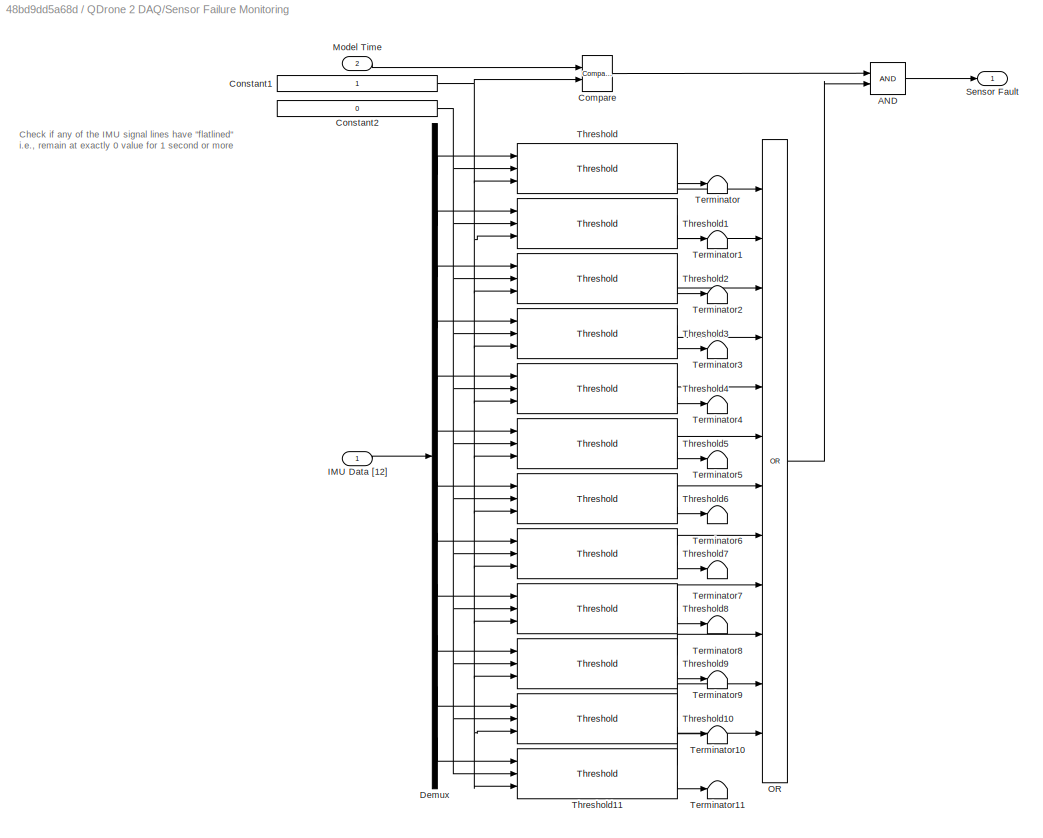
BLOCK [SubSystem] QDrone 2 DAQ/Sensor Failure Monitoring
  Ports = [2, 1]
BLOCK [Logic] QDrone 2 DAQ/Sensor Failure Monitoring/AND
  AllPortsSameDT = off
  IconShape = distinctive
  OutDataTypeStr = boolean
  Ports = [2, 1]
BLOCK [Reference] QDrone 2 DAQ/Sensor Failure Monitoring/Compare  REF=quarc_library/Logic Operations/Compare
  Ports = [2, 1]
  SourceBlock = quarc_library/Logic Operations/Compare
  SourceProductName = QUARC Targets
  SourceType = Compare
BLOCK [Constant] QDrone 2 DAQ/Sensor Failure Monitoring/Constant1
  NameLocation = left
BLOCK [Constant] QDrone 2 DAQ/Sensor Failure Monitoring/Constant2
  NameLocation = left
  Value = 0
BLOCK [Demux] QDrone 2 DAQ/Sensor Failure Monitoring/Demux
  Outputs = 12
  Ports = [1, 12]
BLOCK [Inport] QDrone 2 DAQ/Sensor Failure Monitoring/IMU Data [12]
  NameLocation = left
BLOCK [Inport] QDrone 2 DAQ/Sensor Failure Monitoring/Model Time
  NameLocation = left
  Port = 2
BLOCK [Logic] QDrone 2 DAQ/Sensor Failure Monitoring/OR
  AllPortsSameDT = off
  Inputs = 12
  Operator = OR
  OutDataTypeStr = boolean
  Ports = [12, 1]
BLOCK [Outport] QDrone 2 DAQ/Sensor Failure Monitoring/Sensor Fault
  NameLocation = right
BLOCK [Terminator] QDrone 2 DAQ/Sensor Failure Monitoring/Terminator
BLOCK [Terminator] QDrone 2 DAQ/Sensor Failure Monitoring/Terminator1
BLOCK [Terminator] QDrone 2 DAQ/Sensor Failure Monitoring/Terminator10
BLOCK [Terminator] QDrone 2 DAQ/Sensor Failure Monitoring/Terminator11
BLOCK [Terminator] QDrone 2 DAQ/Sensor Failure Monitoring/Terminator2
BLOCK [Terminator] QDrone 2 DAQ/Sensor Failure Monitoring/Terminator3
BLOCK [Terminator] QDrone 2 DAQ/Sensor Failure Monitoring/Terminator4
BLOCK [Terminator] QDrone 2 DAQ/Sensor Failure Monitoring/Terminator5
BLOCK [Terminator] QDrone 2 DAQ/Sensor Failure Monitoring/Terminator6
BLOCK [Terminator] QDrone 2 DAQ/Sensor Failure Monitoring/Terminator7
BLOCK [Terminator] QDrone 2 DAQ/Sensor Failure Monitoring/Terminator8
BLOCK [Terminator] QDrone 2 DAQ/Sensor Failure Monitoring/Terminator9
BLOCK [Reference] QDrone 2 DAQ/Sensor Failure Monitoring/Threshold  REF=quarc_library/Discontinuities/Threshold
  Ports = [3, 2]
  SourceBlock = quarc_library/Discontinuities/Threshold
  SourceProductName = QUARC Targets
  SourceType = Threshold
BLOCK [Reference] QDrone 2 DAQ/Sensor Failure Monitoring/Threshold1  REF=quarc_library/Discontinuities/Threshold
  Ports = [3, 2]
  SourceBlock = quarc_library/Discontinuities/Threshold
  SourceProductName = QUARC Targets
  SourceType = Threshold
BLOCK [Reference] QDrone 2 DAQ/Sensor Failure Monitoring/Threshold10  REF=quarc_library/Discontinuities/Threshold
  Ports = [3, 2]
  SourceBlock = quarc_library/Discontinuities/Threshold
  SourceProductName = QUARC Targets
  SourceType = Threshold
BLOCK [Reference] QDrone 2 DAQ/Sensor Failure Monitoring/Threshold11  REF=quarc_library/Discontinuities/Threshold
  Ports = [3, 2]
  SourceBlock = quarc_library/Discontinuities/Threshold
  SourceProductName = QUARC Targets
  SourceType = Threshold
BLOCK [Reference] QDrone 2 DAQ/Sensor Failure Monitoring/Threshold2  REF=quarc_library/Discontinuities/Threshold
  Ports = [3, 2]
  SourceBlock = quarc_library/Discontinuities/Threshold
  SourceProductName = QUARC Targets
  SourceType = Threshold
BLOCK [Reference] QDrone 2 DAQ/Sensor Failure Monitoring/Threshold3  REF=quarc_library/Discontinuities/Threshold
  Ports = [3, 2]
  SourceBlock = quarc_library/Discontinuities/Threshold
  SourceProductName = QUARC Targets
  SourceType = Threshold
BLOCK [Reference] QDrone 2 DAQ/Sensor Failure Monitoring/Threshold4  REF=quarc_library/Discontinuities/Threshold
  Ports = [3, 2]
  SourceBlock = quarc_library/Discontinuities/Threshold
  SourceProductName = QUARC Targets
  SourceType = Threshold
BLOCK [Reference] QDrone 2 DAQ/Sensor Failure Monitoring/Threshold5  REF=quarc_library/Discontinuities/Threshold
  Ports = [3, 2]
  SourceBlock = quarc_library/Discontinuities/Threshold
  SourceProductName = QUARC Targets
  SourceType = Threshold
BLOCK [Reference] QDrone 2 DAQ/Sensor Failure Monitoring/Threshold6  REF=quarc_library/Discontinuities/Threshold
  Ports = [3, 2]
  SourceBlock = quarc_library/Discontinuities/Threshold
  SourceProductName = QUARC Targets
  SourceType = Threshold
BLOCK [Reference] QDrone 2 DAQ/Sensor Failure Monitoring/Threshold7  REF=quarc_library/Discontinuities/Threshold
  Ports = [3, 2]
  SourceBlock = quarc_library/Discontinuities/Threshold
  SourceProductName = QUARC Targets
  SourceType = Threshold
BLOCK [Reference] QDrone 2 DAQ/Sensor Failure Monitoring/Threshold8  REF=quarc_library/Discontinuities/Threshold
  Ports = [3, 2]
  SourceBlock = quarc_library/Discontinuities/Threshold
  SourceProductName = QUARC Targets
  SourceType = Threshold
BLOCK [Reference] QDrone 2 DAQ/Sensor Failure Monitoring/Threshold9  REF=quarc_library/Discontinuities/Threshold
  Ports = [3, 2]
  SourceBlock = quarc_library/Discontinuities/Threshold
  SourceProductName = QUARC Targets
  SourceType = Threshold
BLOCK [Reference] QDrone 2 DAQ/Stream Server  REF=quarc_library/Communications/Basic/Stream Server
  AttributesFormatString = "tcpip://localhost:18491?nagle='off'"
  Ports = [2, 5]
  SourceBlock = quarc_library/Communications/Basic/Stream Server
  SourceProductName = QUARC Targets
  SourceType = Stream Server
BLOCK [Sum] QDrone 2 DAQ/Sum
  Inputs = ++|
  Ports = [2, 1]
BLOCK [Sum] QDrone 2 DAQ/Sum1
  Inputs = ++|
  Ports = [2, 1]
BLOCK [Outport] QDrone 2 DAQ/Telemetry
  NameLocation = right
  Port = 5
BLOCK [Terminator] QDrone 2 DAQ/Terminator
BLOCK [Terminator] QDrone 2 DAQ/Terminator1
BLOCK [Terminator] QDrone 2 DAQ/Terminator2
BLOCK [Terminator] QDrone 2 DAQ/Terminator3
BLOCK [Terminator] QDrone 2 DAQ/Terminator4
BLOCK [Terminator] QDrone 2 DAQ/Terminator5
BLOCK [Terminator] QDrone 2 DAQ/Terminator6
BLOCK [Terminator] QDrone 2 DAQ/Terminator7
BLOCK [Reference] QDrone 2 DAQ/Threshold  REF=quarc_library/Discontinuities/Threshold
  Ports = [1, 2]
  SourceBlock = quarc_library/Discontinuities/Threshold
  SourceProductName = QUARC Targets
  SourceType = Threshold
BLOCK [Reference] QDrone 2 DAQ/Time  REF=quarc_library/Sources/Time/Time
  Ports = [0, 1]
  SourceBlock = quarc_library/Sources/Time/Time
  SourceProductName = QUARC Targets
  SourceType = Time
BLOCK [SubSystem] QDrone 2 DAQ/Timing Monitors
  Ports = [0, 1]
BLOCK [Reference] QDrone 2 DAQ/Timing Monitors/Computation Time  REF=quarc_library/Sources/Time/Computation Time
  Ports = [0, 1]
  SourceBlock = quarc_library/Sources/Time/Computation Time
  SourceProductName = QUARC Targets
  SourceType = Computation Time
BLOCK [Reference] QDrone 2 DAQ/Timing Monitors/Computation Time1  REF=quarc_library/Sources/Time/Computation Time
  Ports = [0, 1]
  SourceBlock = quarc_library/Sources/Time/Computation Time
  SourceProductName = QUARC Targets
  SourceType = Computation Time
BLOCK [Reference] QDrone 2 DAQ/Timing Monitors/Computation Time2  REF=quarc_library/Sources/Time/Computation Time
  Ports = [0, 1]
  SourceBlock = quarc_library/Sources/Time/Computation Time
  SourceProductName = QUARC Targets
  SourceType = Computation Time
BLOCK [Mux] QDrone 2 DAQ/Timing Monitors/Mux
  DisplayOption = bar
  Inputs = 2
  Ports = [2, 1]
BLOCK [Mux] QDrone 2 DAQ/Timing Monitors/Mux1
  DisplayOption = bar
  Inputs = 2
  Ports = [2, 1]
BLOCK [Mux] QDrone 2 DAQ/Timing Monitors/Mux2
  DisplayOption = bar
  Inputs = 2
  Ports = [2, 1]
BLOCK [Mux] QDrone 2 DAQ/Timing Monitors/Mux3
  DisplayOption = bar
  Inputs = 3
  Ports = [3, 1]
BLOCK [RateTransition] QDrone 2 DAQ/Timing Monitors/Rate Transition
BLOCK [RateTransition] QDrone 2 DAQ/Timing Monitors/Rate Transition1
BLOCK [RateTransition] QDrone 2 DAQ/Timing Monitors/Rate Transition2
BLOCK [RateTransition] QDrone 2 DAQ/Timing Monitors/Rate Transition3
BLOCK [Reference] QDrone 2 DAQ/Timing Monitors/Sample Time  REF=quarc_library/Sources/Time/Sample Time
  Ports = [0, 1]
  Priority = -99
  SourceBlock = quarc_library/Sources/Time/Sample Time
  SourceProductName = QUARC Targets
  SourceType = Sample Time
BLOCK [Reference] QDrone 2 DAQ/Timing Monitors/Sample Time1  REF=quarc_library/Sources/Time/Sample Time
  Ports = [0, 1]
  Priority = -99
  SourceBlock = quarc_library/Sources/Time/Sample Time
  SourceProductName = QUARC Targets
  SourceType = Sample Time
BLOCK [Reference] QDrone 2 DAQ/Timing Monitors/Sample Time2  REF=quarc_library/Sources/Time/Sample Time
  Ports = [0, 1]
  Priority = -99
  SourceBlock = quarc_library/Sources/Time/Sample Time
  SourceProductName = QUARC Targets
  SourceType = Sample Time
BLOCK [Scope] QDrone 2 DAQ/Timing Monitors/Timing Check
  Floating = off
  NameLocation = right
  NumInputPorts = 3
  Ports = [3]
  ScopeSpecificationString = Simulink.scopes.TimeScopeBlockCfg('CurrentConfiguration', extmgr.ConfigurationSet(extmgr.Configuration('Core','General UI',true),extmgr.Configuration('Core','Source UI',true),extmgr.Configuration('Sources','WiredSimulink',true,'DataLoggingVariableName','ScopeData5'),extmgr.Configuration('Visuals','Time Domain',true,'SerializedDisplays',{struct('MinYLimReal','-0.00162','MaxYLimReal','0.01459','YLab...<+2854ch>
BLOCK [Outport] QDrone 2 DAQ/Timing Monitors/Timings
  NameLocation = right
BLOCK [Reference] QDrone 2 DAQ/To Host File  REF=quarc_library/Sinks/To Host/To Host File
  AttributesFormatString = %<final_file_name>
  NameLocation = right
  Ports = [1]
  SourceBlock = quarc_library/Sinks/To Host/To Host File
  SourceProductName = QUARC Targets
  SourceType = To Host File
BLOCK [Constant] QDrone 2 DAQ/ToF Filter Cutoff Frequency (rad)
  NameLocation = left
  Value = 40
BLOCK [Constant] QDrone 2 DAQ/ToF Filter Damping Ratio
  NameLocation = left
BLOCK [Constant] QDrone 2 DAQ/ToF Filter Initial Condition (m)
  NameLocation = left
  Value = 0
BLOCK [Scope] QDrone 2 DAQ/ToF Range Compare (m)
  Commented = on
  Floating = off
  NameLocation = right
  NumInputPorts = 2
  Ports = [2]
  ScopeSpecificationString = Simulink.scopes.TimeScopeBlockCfg('CurrentConfiguration', extmgr.ConfigurationSet(extmgr.Configuration('Core','General UI',true),extmgr.Configuration('Core','Source UI',true),extmgr.Configuration('Sources','WiredSimulink',true,'DataLoggingVariableName','ScopeData2'),extmgr.Configuration('Visuals','Time Domain',true,'SerializedDisplays',{struct('MinYLimReal','-0.12994','MaxYLimReal','1.16949','YLab...<+2049ch>
BLOCK [Scope] QDrone 2 DAQ/ToF Range Raw (m)
  Commented = on
  Floating = off
  NumInputPorts = 2
  Ports = [2]
  ScopeSpecificationString = Simulink.scopes.TimeScopeBlockCfg('CurrentConfiguration', extmgr.ConfigurationSet(extmgr.Configuration('Core','General UI',true),extmgr.Configuration('Core','Source UI',true),extmgr.Configuration('Sources','WiredSimulink',true,'DataLoggingVariableName','ScopeData1'),extmgr.Configuration('Visuals','Time Domain',true,'SerializedDisplays',{struct('MinYLimReal','0.68027','MaxYLimReal','0.99383','YLabe...<+2033ch>
BLOCK [Constant] QDrone 2 DAQ/ToF Sensor XY Offsets (m)
  NameLocation = left
  Value = [0 0]
BLOCK [Constant] QDrone 2 DAQ/Zero Yaw
  NameLocation = left
  Value = 0
BLOCK [Inport] QDrone 2 DAQ/arm
  NameLocation = left
  Port = 4
BLOCK [Inport] QDrone 2 DAQ/estop
  NameLocation = left
BLOCK [Reference] Quanser1  REF=quarc_library/Logos/Quanser
  Ports = []
  SourceBlock = quarc_library/Logos/Quanser
  SourceProductName = QUARC Targets
  SourceType = Powered by Quanser
BLOCK [Scope] Sensor Failure
  Floating = off
  NameLocation = right
  NumInputPorts = 1
  Ports = [1]
  ScopeSpecificationString = Simulink.scopes.TimeScopeBlockCfg('CurrentConfiguration', extmgr.ConfigurationSet(extmgr.Configuration('Core','General UI',true),extmgr.Configuration('Core','Source UI',true),extmgr.Configuration('Sources','WiredSimulink',true,'DataLoggingVariableName','ScopeData1'),extmgr.Configuration('Visuals','Time Domain',true,'SerializedDisplays',{struct('MinYLimReal','-1.00000','MaxYLimReal','1.00000','YLab...<+1372ch>
BLOCK [Reference] Show Message on Host  REF=quarc_library/Sinks/Error Handling/Show Message on Host
  AttributesFormatString = "%<message>"
  Ports = [1]
  SourceBlock = quarc_library/Sinks/Error Handling/Show Message on Host
  SourceProductName = QUARC Targets
  SourceType = Host Show Message
BLOCK [Reference] Show Message on Host1  REF=quarc_library/Sinks/Error Handling/Show Message on Host
  AttributesFormatString = "%<message>"
  Ports = [1]
  SourceBlock = quarc_library/Sinks/Error Handling/Show Message on Host
  SourceProductName = QUARC Targets
  SourceType = Host Show Message
BLOCK [Stop] Stop Simulation
BLOCK [Terminator] Terminator
BLOCK [UnitDelay] Unit Delay
  HasFrameUpgradeWarning = on
  SampleTime = -1
BLOCK [Scope] Watchdog
  Floating = off
  NameLocation = right
  NumInputPorts = 1
  Ports = [1]
  ScopeSpecificationString = Simulink.scopes.TimeScopeBlockCfg('CurrentConfiguration', extmgr.ConfigurationSet(extmgr.Configuration('Core','General UI',true),extmgr.Configuration('Core','Source UI',true),extmgr.Configuration('Sources','WiredSimulink',true,'DataLoggingVariableName','ScopeData1'),extmgr.Configuration('Visuals','Time Domain',true,'SerializedDisplays',{struct('MinYLimReal','-0.125','MaxYLimReal','1.125','YLabelRe...<+1403ch>
BLOCK [Constant] Zero Reference Generatlizeed Force Commands
  NameLocation = top
  Value = [0 0 0 0]
ANNOTATION (root): INSTRUCTIONS Turn the Qdrone ON by pressing the red button on the PCB once. The LCD screen should turn on. Ensure that a connection to the drone is established by pinging it. See the Research Studio Setup documentation (the Communicating with the QDrone section). Open the Hardware Settings under the HARDWARE menu. Under the Code Generation > Interface tab, on the External mode configuration, enter...<+2546ch>
ANNOTATION (root): ESC Numbers FRONT (3 CW) (1 CCW) x (2 CCW) (0 CW) BACK
ANNOTATION (root): NOTE: There is nothing wrong if the LCD on the drone shows a Warning sign . It shows that the motors were disabled through hardware (Watchdog timeout). When starting a model while the ESC switch is green, it will dissapear. The first model run after turning the drone on will make the ESC beep three times on startup. Any subsequent model ran will beep 5 times consecutively. It is normal behaviour.
ANNOTATION (root): Watchdog is linked to ESC switch. Goes high when switch is red, will not restart until model is restarted and ESC switch is green. Matches the WARNING sign on the drone's LCD.
ANNOTATION (root): Quanser Autonomous Vehicles Research Studio QDrone 2 IO Check - Full
ANNOTATION (root): Test Motor Commands
ANNOTATION Motor Test Values: Turning the motors ON and OFF one at a time in a cyclical clockwise direction.
ANNOTATION QDrone 2 DAQ: ESC Numbers FRONT 3 1 2 0 BACK
ANNOTATION QDrone 2 DAQ: Battery Voltage Processing
ANNOTATION QDrone 2 DAQ: Blackbox and data routing
ANNOTATION QDrone 2 DAQ: ESC Data Processing and Writing
ANNOTATION QDrone 2 DAQ: HIL Read Write
ANNOTATION QDrone 2 DAQ: IMU Data Processing
ANNOTATION QDrone 2 DAQ: Initialize and read data
ANNOTATION QDrone 2 DAQ: Ranging Sensor Data Processing
ANNOTATION QDrone 2 DAQ: Stream drone data to Python class
ANNOTATION QDrone 2 DAQ/Attitude Estimate from IMU Data/For Each Subsystem - Iterate over IMU0 and IMU1: Body Frame Angle Estimates
ANNOTATION QDrone 2 DAQ/Monitor Battery Level: Monitor Battery Level. Flag Low Battery Error if Battery level dips below threshold for specified threshold time period.
ANNOTATION QDrone 2 DAQ/Sensor Failure Monitoring: Check if any of the IMU signal lines have "flatlined" i.e., remain at exactly 0 value for 1 second or more
ANNOTATION QDrone 2 DAQ/Timing Monitors: Base Model Rate (1kHz)
ANNOTATION QDrone 2 DAQ/Timing Monitors: Optical Flow Rate (100 Hz)
ANNOTATION QDrone 2 DAQ/Timing Monitors: ToF Range Rate (25 Hz)
NET AND:1 -> Motor Test Values:2, QDrone 2 DAQ:4
LINE Arm//Disarm (0,1):1 -> AND:1
NET Constant1:1 -> Arm//Disarm (0,1):1, Cycle Motors (0,1):1, E_Stop (0,1):1
NET Constant2:1 -> Arm//Disarm (0,1):2, Cycle Motors (0,1):2, E_Stop (0,1):2
LINE Cycle Motors (0,1):1 -> Motor Test Values:1
LINE Delay:1 -> Stop Simulation:1
LINE Demux1:1 -> Motors (%):1
LINE Demux1:2 -> Motors (%):2
LINE Demux1:3 -> Motors (%):3
LINE Demux1:4 -> Motors (%):4
LINE Demux2:1 -> Optical Flow x,y (px//s):1
LINE Demux2:2 -> Optical Flow x,y (px//s):2
LINE Demux:1 -> BF Attitude Estimate (rad) :1
LINE Demux:2 -> BF Attitude Estimate (rad) :2
LINE Demux:3 -> BF Attitude Estimate (rad) :3
LINE E_Stop (0,1):1 -> QDrone 2 DAQ:1
NET HIL Watchdog:1 -> Show Message on Host1:1, Watchdog:1
LINE Motor Test Values/Constant1:1 -> Motor Test Values/Continuous Sigmoid:3
NET Motor Test Values/Constant2:1 -> Motor Test Values/Mux1:1, Motor Test Values/Mux1:2, Motor Test Values/Mux1:3, Motor Test Values/Mux1:4
LINE Motor Test Values/Constant:1 -> Motor Test Values/Continuous Sigmoid:2
LINE Motor Test Values/Continuous Sigmoid:1 -> Motor Test Values/Saturation:1
LINE Motor Test Values/Continuous Sigmoid:2 -> Motor Test Values/Terminator:1
LINE Motor Test Values/Continuous Sigmoid:3 -> Motor Test Values/Terminator1:1
LINE Motor Test Values/Continuous Sigmoid:4 -> Motor Test Values/Terminator2:1
LINE Motor Test Values/Gain:1 -> Motor Test Values/Continuous Sigmoid:1
LINE Motor Test Values/M1:1 -> Motor Test Values/Mux:1
LINE Motor Test Values/M2:1 -> Motor Test Values/Mux:2
LINE Motor Test Values/M3:1 -> Motor Test Values/Mux:3
LINE Motor Test Values/M4:1 -> Motor Test Values/Mux:4
LINE Motor Test Values/Mux1:1 -> Motor Test Values/Product2:1
LINE Motor Test Values/Mux:1 -> Motor Test Values/Gain:1
LINE Motor Test Values/Product2:1 -> Motor Test Values/Switch:3
LINE Motor Test Values/Run Test:1 -> Motor Test Values/Switch:2
LINE Motor Test Values/Saturation:1 -> Motor Test Values/Switch:1
NET Motor Test Values/Switch:1 -> Motor Test Values/Motor Cmd (%) [4]:1, Motor Test Values/Scope:1
LINE Motor Test Values/Turn Motors:1 -> Motor Test Values/Product2:2
LINE Motor Test Values:1 -> QDrone 2 DAQ:3
LINE QDrone 2 DAQ/AND:1 -> QDrone 2 DAQ/Memory3:1
LINE QDrone 2 DAQ/Attitude Estimate from IMU Data/For Each Subsystem - Iterate over IMU0 and IMU1/Accelerometer Filter Cutoff Frequency (rad//s):1 -> QDrone 2 DAQ/Attitude Estimate from IMU Data/For Each Subsystem - Iterate over IMU0 and IMU1/Second-Order Low-Pass Filter1:2
LINE QDrone 2 DAQ/Attitude Estimate from IMU Data/For Each Subsystem - Iterate over IMU0 and IMU1/Accelerometer Filter Damping Ratio:1 -> QDrone 2 DAQ/Attitude Estimate from IMU Data/For Each Subsystem - Iterate over IMU0 and IMU1/Second-Order Low-Pass Filter1:3
NET QDrone 2 DAQ/Attitude Estimate from IMU Data/For Each Subsystem - Iterate over IMU0 and IMU1/Demux:1 -> QDrone 2 DAQ/Attitude Estimate from IMU Data/For Each Subsystem - Iterate over IMU0 and IMU1/Second-Order Low-Pass Filter:1, QDrone 2 DAQ/Attitude Estimate from IMU Data/For Each Subsystem - Iterate over IMU0 and IMU1/Second-Order Low-Pass Filter:4
NET QDrone 2 DAQ/Attitude Estimate from IMU Data/For Each Subsystem - Iterate over IMU0 and IMU1/Demux:2 -> QDrone 2 DAQ/Attitude Estimate from IMU Data/For Each Subsystem - Iterate over IMU0 and IMU1/Second-Order Low-Pass Filter1:1, QDrone 2 DAQ/Attitude Estimate from IMU Data/For Each Subsystem - Iterate over IMU0 and IMU1/Second-Order Low-Pass Filter1:4
LINE QDrone 2 DAQ/Attitude Estimate from IMU Data/For Each Subsystem - Iterate over IMU0 and IMU1/Gain1:1 -> QDrone 2 DAQ/Attitude Estimate from IMU Data/For Each Subsystem - Iterate over IMU0 and IMU1/Integrator:1
LINE QDrone 2 DAQ/Attitude Estimate from IMU Data/For Each Subsystem - Iterate over IMU0 and IMU1/Gain:1 -> QDrone 2 DAQ/Attitude Estimate from IMU Data/For Each Subsystem - Iterate over IMU0 and IMU1/Sum1:2
LINE QDrone 2 DAQ/Attitude Estimate from IMU Data/For Each Subsystem - Iterate over IMU0 and IMU1/Gyro Filter Cutoff Frequency (rad//s):1 -> QDrone 2 DAQ/Attitude Estimate from IMU Data/For Each Subsystem - Iterate over IMU0 and IMU1/Second-Order Low-Pass Filter:2
LINE QDrone 2 DAQ/Attitude Estimate from IMU Data/For Each Subsystem - Iterate over IMU0 and IMU1/Gyro Filter Damping Ratio:1 -> QDrone 2 DAQ/Attitude Estimate from IMU Data/For Each Subsystem - Iterate over IMU0 and IMU1/Second-Order Low-Pass Filter:3
LINE QDrone 2 DAQ/Attitude Estimate from IMU Data/For Each Subsystem - Iterate over IMU0 and IMU1/IMU Data [6xn]:1 -> QDrone 2 DAQ/Attitude Estimate from IMU Data/For Each Subsystem - Iterate over IMU0 and IMU1/Demux:1
NET QDrone 2 DAQ/Attitude Estimate from IMU Data/For Each Subsystem - Iterate over IMU0 and IMU1/Integrator1:1 -> QDrone 2 DAQ/Attitude Estimate from IMU Data/For Each Subsystem - Iterate over IMU0 and IMU1/Mux1:1, QDrone 2 DAQ/Attitude Estimate from IMU Data/For Each Subsystem - Iterate over IMU0 and IMU1/Sum:2
LINE QDrone 2 DAQ/Attitude Estimate from IMU Data/For Each Subsystem - Iterate over IMU0 and IMU1/Integrator2:1 -> QDrone 2 DAQ/Attitude Estimate from IMU Data/For Each Subsystem - Iterate over IMU0 and IMU1/Mux1:2
LINE QDrone 2 DAQ/Attitude Estimate from IMU Data/For Each Subsystem - Iterate over IMU0 and IMU1/Integrator:1 -> QDrone 2 DAQ/Attitude Estimate from IMU Data/For Each Subsystem - Iterate over IMU0 and IMU1/Sum1:3
LINE QDrone 2 DAQ/Attitude Estimate from IMU Data/For Each Subsystem - Iterate over IMU0 and IMU1/Mux1:1 -> QDrone 2 DAQ/Attitude Estimate from IMU Data/For Each Subsystem - Iterate over IMU0 and IMU1/Mux2:1
LINE QDrone 2 DAQ/Attitude Estimate from IMU Data/For Each Subsystem - Iterate over IMU0 and IMU1/Mux2:1 -> QDrone 2 DAQ/Attitude Estimate from IMU Data/For Each Subsystem - Iterate over IMU0 and IMU1/BF Estimated Attitude (rad, rad//s, rad//2^2) [9xn]:1
LINE QDrone 2 DAQ/Attitude Estimate from IMU Data/For Each Subsystem - Iterate over IMU0 and IMU1/Mux:1 -> QDrone 2 DAQ/Attitude Estimate from IMU Data/For Each Subsystem - Iterate over IMU0 and IMU1/Sum:1
LINE QDrone 2 DAQ/Attitude Estimate from IMU Data/For Each Subsystem - Iterate over IMU0 and IMU1/Reshape1:1 -> QDrone 2 DAQ/Attitude Estimate from IMU Data/For Each Subsystem - Iterate over IMU0 and IMU1/Integrator2:1
LINE QDrone 2 DAQ/Attitude Estimate from IMU Data/For Each Subsystem - Iterate over IMU0 and IMU1/Reshape:1 -> QDrone 2 DAQ/Attitude Estimate from IMU Data/For Each Subsystem - Iterate over IMU0 and IMU1/Sum1:1
LINE QDrone 2 DAQ/Attitude Estimate from IMU Data/For Each Subsystem - Iterate over IMU0 and IMU1/Roll and Pitch Approximation from Accelerometer data:1 -> QDrone 2 DAQ/Attitude Estimate from IMU Data/For Each Subsystem - Iterate over IMU0 and IMU1/Mux:1
LINE QDrone 2 DAQ/Attitude Estimate from IMU Data/For Each Subsystem - Iterate over IMU0 and IMU1/Roll and Pitch Approximation from Accelerometer data:2 -> QDrone 2 DAQ/Attitude Estimate from IMU Data/For Each Subsystem - Iterate over IMU0 and IMU1/Mux:2
LINE QDrone 2 DAQ/Attitude Estimate from IMU Data/For Each Subsystem - Iterate over IMU0 and IMU1/Second-Order Low-Pass Filter1:1 -> QDrone 2 DAQ/Attitude Estimate from IMU Data/For Each Subsystem - Iterate over IMU0 and IMU1/Roll and Pitch Approximation from Accelerometer data:1
LINE QDrone 2 DAQ/Attitude Estimate from IMU Data/For Each Subsystem - Iterate over IMU0 and IMU1/Second-Order Low-Pass Filter1:2 -> QDrone 2 DAQ/Attitude Estimate from IMU Data/For Each Subsystem - Iterate over IMU0 and IMU1/Terminator:1
NET QDrone 2 DAQ/Attitude Estimate from IMU Data/For Each Subsystem - Iterate over IMU0 and IMU1/Second-Order Low-Pass Filter:1 -> QDrone 2 DAQ/Attitude Estimate from IMU Data/For Each Subsystem - Iterate over IMU0 and IMU1/Mux2:2, QDrone 2 DAQ/Attitude Estimate from IMU Data/For Each Subsystem - Iterate over IMU0 and IMU1/Select XY Gyro Rates:1, QDrone 2 DAQ/Attitude Estimate from IMU Data/For Each Subsystem - Iterate over IMU0 and IMU1/Select Z Gyro Rate:1
LINE QDrone 2 DAQ/Attitude Estimate from IMU Data/For Each Subsystem - Iterate over IMU0 and IMU1/Second-Order Low-Pass Filter:2 -> QDrone 2 DAQ/Attitude Estimate from IMU Data/For Each Subsystem - Iterate over IMU0 and IMU1/Mux2:3
LINE QDrone 2 DAQ/Attitude Estimate from IMU Data/For Each Subsystem - Iterate over IMU0 and IMU1/Select XY Gyro Rates:1 -> QDrone 2 DAQ/Attitude Estimate from IMU Data/For Each Subsystem - Iterate over IMU0 and IMU1/Reshape:1
LINE QDrone 2 DAQ/Attitude Estimate from IMU Data/For Each Subsystem - Iterate over IMU0 and IMU1/Select Z Gyro Rate:1 -> QDrone 2 DAQ/Attitude Estimate from IMU Data/For Each Subsystem - Iterate over IMU0 and IMU1/Reshape1:1
LINE QDrone 2 DAQ/Attitude Estimate from IMU Data/For Each Subsystem - Iterate over IMU0 and IMU1/Sum1:1 -> QDrone 2 DAQ/Attitude Estimate from IMU Data/For Each Subsystem - Iterate over IMU0 and IMU1/Integrator1:1
NET QDrone 2 DAQ/Attitude Estimate from IMU Data/For Each Subsystem - Iterate over IMU0 and IMU1/Sum:1 -> QDrone 2 DAQ/Attitude Estimate from IMU Data/For Each Subsystem - Iterate over IMU0 and IMU1/Gain1:1, QDrone 2 DAQ/Attitude Estimate from IMU Data/For Each Subsystem - Iterate over IMU0 and IMU1/Gain:1
NET QDrone 2 DAQ/Attitude Estimate from IMU Data/For Each Subsystem - Iterate over IMU0 and IMU1:1 -> QDrone 2 DAQ/Attitude Estimate from IMU Data/Select Data for IMU0:1, QDrone 2 DAQ/Attitude Estimate from IMU Data/Select Data for IMU1:1
LINE QDrone 2 DAQ/Attitude Estimate from IMU Data/IMU Data [12]:1 -> QDrone 2 DAQ/Attitude Estimate from IMU Data/Reshape into 2 columns for IMU0 and IMU1:1
LINE QDrone 2 DAQ/Attitude Estimate from IMU Data/Reshape into 2 columns for IMU0 and IMU1:1 -> QDrone 2 DAQ/Attitude Estimate from IMU Data/For Each Subsystem - Iterate over IMU0 and IMU1:1
LINE QDrone 2 DAQ/Attitude Estimate from IMU Data/Select Data for IMU0:1 -> QDrone 2 DAQ/Attitude Estimate from IMU Data/BF Estimated Attitude for IMU0 (rad, rad//s, rad//2^2) [9]:1
LINE QDrone 2 DAQ/Attitude Estimate from IMU Data/Select Data for IMU1:1 -> QDrone 2 DAQ/Attitude Estimate from IMU Data/BF Estimated Attitude for IMU1 (rad, rad//s, rad//2^2) [9]:1
NET QDrone 2 DAQ/Attitude Estimate from IMU Data:1 -> QDrone 2 DAQ/Goto15:1, QDrone 2 DAQ/Sum:2
NET QDrone 2 DAQ/Attitude Estimate from IMU Data:2 -> QDrone 2 DAQ/Goto16:1, QDrone 2 DAQ/Sum:1
LINE QDrone 2 DAQ/Choose Motor Telemetry/Bias1:1 -> QDrone 2 DAQ/Choose Motor Telemetry/Telemetry:1
LINE QDrone 2 DAQ/Choose Motor Telemetry/Constant1:1 -> QDrone 2 DAQ/Choose Motor Telemetry/Selector:1
LINE QDrone 2 DAQ/Choose Motor Telemetry/Constant2:1 -> QDrone 2 DAQ/Choose Motor Telemetry/MATLAB Function:2
LINE QDrone 2 DAQ/Choose Motor Telemetry/Gain:1 -> QDrone 2 DAQ/Choose Motor Telemetry/Bias1:1
LINE QDrone 2 DAQ/Choose Motor Telemetry/MATLAB Function:1 -> QDrone 2 DAQ/Choose Motor Telemetry/Zero-Order Hold1:1
NET QDrone 2 DAQ/Choose Motor Telemetry/Selector:1 -> QDrone 2 DAQ/Choose Motor Telemetry/Gain:1, QDrone 2 DAQ/Choose Motor Telemetry/Motor telemetry select:1
NET QDrone 2 DAQ/Choose Motor Telemetry/Zero-Order Hold1:1 -> QDrone 2 DAQ/Choose Motor Telemetry/Motor telemetry index:1, QDrone 2 DAQ/Choose Motor Telemetry/Selector:2
LINE QDrone 2 DAQ/Choose Motor Telemetry/enable telemetry:1 -> QDrone 2 DAQ/Choose Motor Telemetry/MATLAB Function:1
NET QDrone 2 DAQ/Choose Motor Telemetry:1 -> QDrone 2 DAQ/ESC Output:2, QDrone 2 DAQ/Goto6:1
LINE QDrone 2 DAQ/Choose Motor Telemetry:2 -> QDrone 2 DAQ/Goto19:1
LINE QDrone 2 DAQ/Compare To Constant1:1 -> QDrone 2 DAQ/AND:2
LINE QDrone 2 DAQ/Compare To Constant:1 -> QDrone 2 DAQ/AND:1
NET QDrone 2 DAQ/Constant1:1 -> QDrone 2 DAQ/Product3:2, QDrone 2 DAQ/Product4:2
LINE QDrone 2 DAQ/Constant2:1 -> QDrone 2 DAQ/Product5:1
LINE QDrone 2 DAQ/Constant3:1 -> QDrone 2 DAQ/Force to percentage Mapping:3
LINE QDrone 2 DAQ/Construct ESC Speed/ESC Channel Select:1 -> QDrone 2 DAQ/Construct ESC Speed/For Each Subsystem - Construct ESC Signal:2
LINE QDrone 2 DAQ/Construct ESC Speed/ESC Data In [4]:1 -> QDrone 2 DAQ/Construct ESC Speed/For Each Subsystem - Construct ESC Signal:1
LINE QDrone 2 DAQ/Construct ESC Speed/For Each Subsystem - Construct ESC Signal/Compare:1 -> QDrone 2 DAQ/Construct ESC Speed/For Each Subsystem - Construct ESC Signal/Switch:2
LINE QDrone 2 DAQ/Construct ESC Speed/For Each Subsystem - Construct ESC Signal/ESC Channel:1 -> QDrone 2 DAQ/Construct ESC Speed/For Each Subsystem - Construct ESC Signal/Compare:2
LINE QDrone 2 DAQ/Construct ESC Speed/For Each Subsystem - Construct ESC Signal/ESC Data In [4]:1 -> QDrone 2 DAQ/Construct ESC Speed/For Each Subsystem - Construct ESC Signal/Switch:1
LINE QDrone 2 DAQ/Construct ESC Speed/For Each Subsystem - Construct ESC Signal/ESC Previous Data [4]:1 -> QDrone 2 DAQ/Construct ESC Speed/For Each Subsystem - Construct ESC Signal/Switch:3
LINE QDrone 2 DAQ/Construct ESC Speed/For Each Subsystem - Construct ESC Signal/For Each:1 -> QDrone 2 DAQ/Construct ESC Speed/For Each Subsystem - Construct ESC Signal/Compare:1
LINE QDrone 2 DAQ/Construct ESC Speed/For Each Subsystem - Construct ESC Signal/Switch:1 -> QDrone 2 DAQ/Construct ESC Speed/For Each Subsystem - Construct ESC Signal/ESC Data Out [4]:1
NET QDrone 2 DAQ/Construct ESC Speed/For Each Subsystem - Construct ESC Signal:1 -> QDrone 2 DAQ/Construct ESC Speed/ESC Data Out [4]:1, QDrone 2 DAQ/Construct ESC Speed/Memory:1
LINE QDrone 2 DAQ/Construct ESC Speed/Memory:1 -> QDrone 2 DAQ/Construct ESC Speed/For Each Subsystem - Construct ESC Signal:3
NET QDrone 2 DAQ/Construct ESC Speed:1 -> QDrone 2 DAQ/Convert to equivalent voltage (based on motor Kv rating):1, QDrone 2 DAQ/Demux:1
LINE QDrone 2 DAQ/Construct ESC Temperature/ESC Channel Select:1 -> QDrone 2 DAQ/Construct ESC Temperature/For Each Subsystem - Construct ESC Signal:2
LINE QDrone 2 DAQ/Construct ESC Temperature/ESC Data In [4]:1 -> QDrone 2 DAQ/Construct ESC Temperature/For Each Subsystem - Construct ESC Signal:1
LINE QDrone 2 DAQ/Construct ESC Temperature/For Each Subsystem - Construct ESC Signal/Compare:1 -> QDrone 2 DAQ/Construct ESC Temperature/For Each Subsystem - Construct ESC Signal/Switch:2
LINE QDrone 2 DAQ/Construct ESC Temperature/For Each Subsystem - Construct ESC Signal/ESC Channel:1 -> QDrone 2 DAQ/Construct ESC Temperature/For Each Subsystem - Construct ESC Signal/Compare:2
LINE QDrone 2 DAQ/Construct ESC Temperature/For Each Subsystem - Construct ESC Signal/ESC Data In [4]:1 -> QDrone 2 DAQ/Construct ESC Temperature/For Each Subsystem - Construct ESC Signal/Switch:1
LINE QDrone 2 DAQ/Construct ESC Temperature/For Each Subsystem - Construct ESC Signal/ESC Previous Data [4]:1 -> QDrone 2 DAQ/Construct ESC Temperature/For Each Subsystem - Construct ESC Signal/Switch:3
LINE QDrone 2 DAQ/Construct ESC Temperature/For Each Subsystem - Construct ESC Signal/For Each:1 -> QDrone 2 DAQ/Construct ESC Temperature/For Each Subsystem - Construct ESC Signal/Compare:1
LINE QDrone 2 DAQ/Construct ESC Temperature/For Each Subsystem - Construct ESC Signal/Switch:1 -> QDrone 2 DAQ/Construct ESC Temperature/For Each Subsystem - Construct ESC Signal/ESC Data Out [4]:1
NET QDrone 2 DAQ/Construct ESC Temperature/For Each Subsystem - Construct ESC Signal:1 -> QDrone 2 DAQ/Construct ESC Temperature/ESC Data Out [4]:1, QDrone 2 DAQ/Construct ESC Temperature/Memory:1
LINE QDrone 2 DAQ/Construct ESC Temperature/Memory:1 -> QDrone 2 DAQ/Construct ESC Temperature/For Each Subsystem - Construct ESC Signal:3
LINE QDrone 2 DAQ/Construct ESC Temperature:1 -> QDrone 2 DAQ/Demux3:1
LINE QDrone 2 DAQ/Construct ESC Voltage/ESC Channel Select:1 -> QDrone 2 DAQ/Construct ESC Voltage/For Each Subsystem - Construct ESC Signal:2
LINE QDrone 2 DAQ/Construct ESC Voltage/ESC Data In [4]:1 -> QDrone 2 DAQ/Construct ESC Voltage/For Each Subsystem - Construct ESC Signal:1
LINE QDrone 2 DAQ/Construct ESC Voltage/For Each Subsystem - Construct ESC Signal/Compare:1 -> QDrone 2 DAQ/Construct ESC Voltage/For Each Subsystem - Construct ESC Signal/Switch:2
LINE QDrone 2 DAQ/Construct ESC Voltage/For Each Subsystem - Construct ESC Signal/ESC Channel:1 -> QDrone 2 DAQ/Construct ESC Voltage/For Each Subsystem - Construct ESC Signal/Compare:2
LINE QDrone 2 DAQ/Construct ESC Voltage/For Each Subsystem - Construct ESC Signal/ESC Data In [4]:1 -> QDrone 2 DAQ/Construct ESC Voltage/For Each Subsystem - Construct ESC Signal/Switch:1
LINE QDrone 2 DAQ/Construct ESC Voltage/For Each Subsystem - Construct ESC Signal/ESC Previous Data [4]:1 -> QDrone 2 DAQ/Construct ESC Voltage/For Each Subsystem - Construct ESC Signal/Switch:3
LINE QDrone 2 DAQ/Construct ESC Voltage/For Each Subsystem - Construct ESC Signal/For Each:1 -> QDrone 2 DAQ/Construct ESC Voltage/For Each Subsystem - Construct ESC Signal/Compare:1
LINE QDrone 2 DAQ/Construct ESC Voltage/For Each Subsystem - Construct ESC Signal/Switch:1 -> QDrone 2 DAQ/Construct ESC Voltage/For Each Subsystem - Construct ESC Signal/ESC Data Out [4]:1
NET QDrone 2 DAQ/Construct ESC Voltage/For Each Subsystem - Construct ESC Signal:1 -> QDrone 2 DAQ/Construct ESC Voltage/ESC Data Out [4]:1, QDrone 2 DAQ/Construct ESC Voltage/Memory:1
LINE QDrone 2 DAQ/Construct ESC Voltage/Memory:1 -> QDrone 2 DAQ/Construct ESC Voltage/For Each Subsystem - Construct ESC Signal:3
NET QDrone 2 DAQ/Construct ESC Voltage:1 -> QDrone 2 DAQ/Demux1:1, QDrone 2 DAQ/Divide:2
LINE QDrone 2 DAQ/Convert to equivalent voltage (based on motor Kv rating):1 -> QDrone 2 DAQ/Divide:1
NET QDrone 2 DAQ/Data Type Conversion1:1 -> QDrone 2 DAQ/ESC Output:3, QDrone 2 DAQ/ESC States:4
NET QDrone 2 DAQ/Data Type Conversion:1 -> QDrone 2 DAQ/ESC State Value:1, QDrone 2 DAQ/Goto4:1
LINE QDrone 2 DAQ/Demux1:1 -> QDrone 2 DAQ/ESC Voltage (V):4
LINE QDrone 2 DAQ/Demux1:2 -> QDrone 2 DAQ/ESC Voltage (V):3
LINE QDrone 2 DAQ/Demux1:3 -> QDrone 2 DAQ/ESC Voltage (V):2
LINE QDrone 2 DAQ/Demux1:4 -> QDrone 2 DAQ/ESC Voltage (V):1
LINE QDrone 2 DAQ/Demux2:1 -> QDrone 2 DAQ/ESC Motor Command (%):4
LINE QDrone 2 DAQ/Demux2:2 -> QDrone 2 DAQ/ESC Motor Command (%):3
LINE QDrone 2 DAQ/Demux2:3 -> QDrone 2 DAQ/ESC Motor Command (%):2
LINE QDrone 2 DAQ/Demux2:4 -> QDrone 2 DAQ/ESC Motor Command (%):1
LINE QDrone 2 DAQ/Demux3:1 -> QDrone 2 DAQ/ESC Temperature (degC):4
LINE QDrone 2 DAQ/Demux3:2 -> QDrone 2 DAQ/ESC Temperature (degC):3
LINE QDrone 2 DAQ/Demux3:3 -> QDrone 2 DAQ/ESC Temperature (degC):2
LINE QDrone 2 DAQ/Demux3:4 -> QDrone 2 DAQ/ESC Temperature (degC):1
LINE QDrone 2 DAQ/Demux4:1 -> QDrone 2 DAQ/Discrete Second-Order Low-Pass Filter1:1
LINE QDrone 2 DAQ/Demux4:2 -> QDrone 2 DAQ/Number of Features:1
LINE QDrone 2 DAQ/Demux4:3 -> QDrone 2 DAQ/Average, Max, Min Pixel Rate:1
LINE QDrone 2 DAQ/Demux4:4 -> QDrone 2 DAQ/Optical Flow Shutter:1
LINE QDrone 2 DAQ/Demux5:1 -> QDrone 2 DAQ/Optical Flow Rate (Body Frame) (pixel//s):1
LINE QDrone 2 DAQ/Demux5:2 -> QDrone 2 DAQ/Optical Flow Rate (Body Frame) (pixel//s):2
LINE QDrone 2 DAQ/Demux6:1 -> QDrone 2 DAQ/Euler Angles to Rotation Matrix:3
LINE QDrone 2 DAQ/Demux6:2 -> QDrone 2 DAQ/Euler Angles to Rotation Matrix:2
LINE QDrone 2 DAQ/Demux7:1 -> QDrone 2 DAQ/Attitude Estimates (deg):1
LINE QDrone 2 DAQ/Demux7:2 -> QDrone 2 DAQ/Attitude Estimates (deg):2
LINE QDrone 2 DAQ/Demux7:3 -> QDrone 2 DAQ/Attitude Estimates (deg):3
LINE QDrone 2 DAQ/Demux8:1 -> QDrone 2 DAQ/ESC Comm Problem:4
LINE QDrone 2 DAQ/Demux8:2 -> QDrone 2 DAQ/ESC Comm Problem:3
LINE QDrone 2 DAQ/Demux8:3 -> QDrone 2 DAQ/ESC Comm Problem:2
LINE QDrone 2 DAQ/Demux8:4 -> QDrone 2 DAQ/ESC Comm Problem:1
LINE QDrone 2 DAQ/Demux:1 -> QDrone 2 DAQ/ESC Speed (RPM):4
LINE QDrone 2 DAQ/Demux:2 -> QDrone 2 DAQ/ESC Speed (RPM):3
LINE QDrone 2 DAQ/Demux:3 -> QDrone 2 DAQ/ESC Speed (RPM):2
LINE QDrone 2 DAQ/Demux:4 -> QDrone 2 DAQ/ESC Speed (RPM):1
NET QDrone 2 DAQ/Detect ESC Problems/AND:1 -> QDrone 2 DAQ/Detect ESC Problems/Demux8:1, QDrone 2 DAQ/Detect ESC Problems/MATLAB Function:1
LINE QDrone 2 DAQ/Detect ESC Problems/Compare To Constant:1 -> QDrone 2 DAQ/Detect ESC Problems/ESC Comm Problem [4]:1
LINE QDrone 2 DAQ/Detect ESC Problems/Constant:1 -> QDrone 2 DAQ/Detect ESC Problems/MATLAB Function:2
NET QDrone 2 DAQ/Detect ESC Problems/Delay1:1 -> QDrone 2 DAQ/Detect ESC Problems/Mux3:1, QDrone 2 DAQ/Detect ESC Problems/Mux:3
NET QDrone 2 DAQ/Detect ESC Problems/Delay2:1 -> QDrone 2 DAQ/Detect ESC Problems/Mux2:1, QDrone 2 DAQ/Detect ESC Problems/Mux:2
NET QDrone 2 DAQ/Detect ESC Problems/Delay3:1 -> QDrone 2 DAQ/Detect ESC Problems/Mux1:1, QDrone 2 DAQ/Detect ESC Problems/Mux:1
NET QDrone 2 DAQ/Detect ESC Problems/Delay:1 -> QDrone 2 DAQ/Detect ESC Problems/Mux4:1, QDrone 2 DAQ/Detect ESC Problems/Mux:4
LINE QDrone 2 DAQ/Detect ESC Problems/Demux1:1 -> QDrone 2 DAQ/Detect ESC Problems/ESC Channel Mismatrch Count:4
LINE QDrone 2 DAQ/Detect ESC Problems/Demux1:2 -> QDrone 2 DAQ/Detect ESC Problems/ESC Channel Mismatrch Count:3
LINE QDrone 2 DAQ/Detect ESC Problems/Demux1:3 -> QDrone 2 DAQ/Detect ESC Problems/ESC Channel Mismatrch Count:2
LINE QDrone 2 DAQ/Detect ESC Problems/Demux1:4 -> QDrone 2 DAQ/Detect ESC Problems/ESC Channel Mismatrch Count:1
LINE QDrone 2 DAQ/Detect ESC Problems/Demux2:1 -> QDrone 2 DAQ/Detect ESC Problems/Mux1:2
LINE QDrone 2 DAQ/Detect ESC Problems/Demux2:2 -> QDrone 2 DAQ/Detect ESC Problems/Mux2:2
LINE QDrone 2 DAQ/Detect ESC Problems/Demux2:3 -> QDrone 2 DAQ/Detect ESC Problems/Mux3:2
LINE QDrone 2 DAQ/Detect ESC Problems/Demux2:4 -> QDrone 2 DAQ/Detect ESC Problems/Mux4:2
LINE QDrone 2 DAQ/Detect ESC Problems/Demux8:1 -> QDrone 2 DAQ/Detect ESC Problems/ESC Channel Mismatrch:4
LINE QDrone 2 DAQ/Detect ESC Problems/Demux8:2 -> QDrone 2 DAQ/Detect ESC Problems/ESC Channel Mismatrch:3
LINE QDrone 2 DAQ/Detect ESC Problems/Demux8:3 -> QDrone 2 DAQ/Detect ESC Problems/ESC Channel Mismatrch:2
LINE QDrone 2 DAQ/Detect ESC Problems/Demux8:4 -> QDrone 2 DAQ/Detect ESC Problems/ESC Channel Mismatrch:1
LINE QDrone 2 DAQ/Detect ESC Problems/Demux:1 -> QDrone 2 DAQ/Detect ESC Problems/Delay3:1
LINE QDrone 2 DAQ/Detect ESC Problems/Demux:2 -> QDrone 2 DAQ/Detect ESC Problems/Delay2:1
LINE QDrone 2 DAQ/Detect ESC Problems/Demux:3 -> QDrone 2 DAQ/Detect ESC Problems/Delay1:1
LINE QDrone 2 DAQ/Detect ESC Problems/Demux:4 -> QDrone 2 DAQ/Detect ESC Problems/Delay:1
NET QDrone 2 DAQ/Detect ESC Problems/ESC Channel Reported [4]:1 -> QDrone 2 DAQ/Detect ESC Problems/Demux2:1, QDrone 2 DAQ/Detect ESC Problems/For Each Subsystem:2
LINE QDrone 2 DAQ/Detect ESC Problems/ESC Channel Request [4]:1 -> QDrone 2 DAQ/Detect ESC Problems/Demux:1
LINE QDrone 2 DAQ/Detect ESC Problems/ESC Telemetry Enabled:1 -> QDrone 2 DAQ/Detect ESC Problems/AND:2
LINE QDrone 2 DAQ/Detect ESC Problems/For Each Subsystem/AND:1 -> QDrone 2 DAQ/Detect ESC Problems/For Each Subsystem/mismatched [4]:1
LINE QDrone 2 DAQ/Detect ESC Problems/For Each Subsystem/Channel Reported [4]:1 -> QDrone 2 DAQ/Detect ESC Problems/For Each Subsystem/Compare:2
NET QDrone 2 DAQ/Detect ESC Problems/For Each Subsystem/Channel Requested [4]:1 -> QDrone 2 DAQ/Detect ESC Problems/For Each Subsystem/Compare To Constant:1, QDrone 2 DAQ/Detect ESC Problems/For Each Subsystem/Compare:1
LINE QDrone 2 DAQ/Detect ESC Problems/For Each Subsystem/Compare To Constant:1 -> QDrone 2 DAQ/Detect ESC Problems/For Each Subsystem/AND:1
LINE QDrone 2 DAQ/Detect ESC Problems/For Each Subsystem/Compare:1 -> QDrone 2 DAQ/Detect ESC Problems/For Each Subsystem/AND:2
LINE QDrone 2 DAQ/Detect ESC Problems/For Each Subsystem:1 -> QDrone 2 DAQ/Detect ESC Problems/AND:1
NET QDrone 2 DAQ/Detect ESC Problems/MATLAB Function:1 -> QDrone 2 DAQ/Detect ESC Problems/Compare To Constant:1, QDrone 2 DAQ/Detect ESC Problems/Demux1:1
LINE QDrone 2 DAQ/Detect ESC Problems/Mux1:1 -> QDrone 2 DAQ/Detect ESC Problems/ESC Channel Selection Index:4
LINE QDrone 2 DAQ/Detect ESC Problems/Mux2:1 -> QDrone 2 DAQ/Detect ESC Problems/ESC Channel Selection Index:3
LINE QDrone 2 DAQ/Detect ESC Problems/Mux3:1 -> QDrone 2 DAQ/Detect ESC Problems/ESC Channel Selection Index:2
LINE QDrone 2 DAQ/Detect ESC Problems/Mux4:1 -> QDrone 2 DAQ/Detect ESC Problems/ESC Channel Selection Index:1
LINE QDrone 2 DAQ/Detect ESC Problems/Mux:1 -> QDrone 2 DAQ/Detect ESC Problems/For Each Subsystem:1
NET QDrone 2 DAQ/Detect ESC Problems:1 -> QDrone 2 DAQ/Demux8:1, QDrone 2 DAQ/OR1:1
NET QDrone 2 DAQ/Discrete Second-Order Low-Pass Filter1:1 -> QDrone 2 DAQ/Goto12:1, QDrone 2 DAQ/Rate Transition to 100Hz:1
LINE QDrone 2 DAQ/Discrete Second-Order Low-Pass Filter1:2 -> QDrone 2 DAQ/Terminator1:1
NET QDrone 2 DAQ/Discrete Second-Order Low-Pass Filter:1 -> QDrone 2 DAQ/Rate Transition2:1, QDrone 2 DAQ/Rate Transition5:1
LINE QDrone 2 DAQ/Discrete Second-Order Low-Pass Filter:2 -> QDrone 2 DAQ/Terminator5:1
LINE QDrone 2 DAQ/Divide by half of the number of poles in motor:1 -> QDrone 2 DAQ/Multiple by resolution (supposed to be 100 RPM):1
LINE QDrone 2 DAQ/Divide:1 -> QDrone 2 DAQ/Saturation1:1
LINE QDrone 2 DAQ/ESC Output:1 -> QDrone 2 DAQ/Enabled Subsystem - Write ESC Commands:1
LINE QDrone 2 DAQ/Enabled Subsystem - Write ESC Commands/DShot Raw [4]:1 -> QDrone 2 DAQ/Enabled Subsystem - Write ESC Commands/HIL Write PWM:1
LINE QDrone 2 DAQ/Euler Angles to Rotation Matrix:1 -> QDrone 2 DAQ/Rate Transition3:1
NET QDrone 2 DAQ/Extract ESC Channels:1 -> QDrone 2 DAQ/Goto10:1, QDrone 2 DAQ/Product1:2, QDrone 2 DAQ/Product2:2, QDrone 2 DAQ/Product:2
LINE QDrone 2 DAQ/Force to percentage Mapping:1 -> QDrone 2 DAQ/Manual Switch - Select Command Input:1
LINE QDrone 2 DAQ/From10:1 -> QDrone 2 DAQ/ESC States:2
LINE QDrone 2 DAQ/From11:1 -> QDrone 2 DAQ/ESC States:3
LINE QDrone 2 DAQ/From12:1 -> QDrone 2 DAQ/Select Optical Flow Data:1
LINE QDrone 2 DAQ/From13:1 -> QDrone 2 DAQ/Select IMU Data:1
LINE QDrone 2 DAQ/From14:1 -> QDrone 2 DAQ/Sensor Failure Monitoring:2
LINE QDrone 2 DAQ/From15:1 -> QDrone 2 DAQ/Select Est Roll and Pitch:1
LINE QDrone 2 DAQ/From16:1 -> QDrone 2 DAQ/Mux:1
LINE QDrone 2 DAQ/From17:1 -> QDrone 2 DAQ/Mux:2
LINE QDrone 2 DAQ/From18:1 -> QDrone 2 DAQ/Mux:3
LINE QDrone 2 DAQ/From19:1 -> QDrone 2 DAQ/Mux:4
LINE QDrone 2 DAQ/From1:1 -> QDrone 2 DAQ/Detect ESC Problems:1
LINE QDrone 2 DAQ/From20:1 -> QDrone 2 DAQ/Mux:5
LINE QDrone 2 DAQ/From21:1 -> QDrone 2 DAQ/Mux:6
LINE QDrone 2 DAQ/From22:1 -> QDrone 2 DAQ/Mux:7
LINE QDrone 2 DAQ/From23:1 -> QDrone 2 DAQ/Rate Transition7:1
LINE QDrone 2 DAQ/From24:1 -> QDrone 2 DAQ/Mux:9
LINE QDrone 2 DAQ/From25:1 -> QDrone 2 DAQ/Mux:10
LINE QDrone 2 DAQ/From26:1 -> QDrone 2 DAQ/Rate Transition1:1
LINE QDrone 2 DAQ/From27:1 -> QDrone 2 DAQ/Mux:12
LINE QDrone 2 DAQ/From28:1 -> QDrone 2 DAQ/Mux:13
LINE QDrone 2 DAQ/From29:1 -> QDrone 2 DAQ/Mux:14
LINE QDrone 2 DAQ/From2:1 -> QDrone 2 DAQ/Detect ESC Problems:2
LINE QDrone 2 DAQ/From30:1 -> QDrone 2 DAQ/Mux:15
LINE QDrone 2 DAQ/From31:1 -> QDrone 2 DAQ/Mux2:1
LINE QDrone 2 DAQ/From32:1 -> QDrone 2 DAQ/Mux2:2
LINE QDrone 2 DAQ/From33:1 -> QDrone 2 DAQ/BF Height (m):1
LINE QDrone 2 DAQ/From34:1 -> QDrone 2 DAQ/Optical Flow Measurement (px//s) [2]:1
LINE QDrone 2 DAQ/From35:1 -> QDrone 2 DAQ/Reshape:1
LINE QDrone 2 DAQ/From36:1 -> QDrone 2 DAQ/OR:1
LINE QDrone 2 DAQ/From37:1 -> QDrone 2 DAQ/Average BF IMU Data (rad//s, m//s//s) [6]:1
NET QDrone 2 DAQ/From38:1 -> QDrone 2 DAQ/ESC Timeout (0,1):1, QDrone 2 DAQ/OR:2
LINE QDrone 2 DAQ/From39:1 -> QDrone 2 DAQ/ESC Ready (0,1):1
LINE QDrone 2 DAQ/From3:1 -> QDrone 2 DAQ/Memory1:1
LINE QDrone 2 DAQ/From40:1 -> QDrone 2 DAQ/ESC Stop Model (0,1):1
LINE QDrone 2 DAQ/From41:1 -> QDrone 2 DAQ/Force to percentage Mapping:1
LINE QDrone 2 DAQ/From42:1 -> QDrone 2 DAQ/Rate Transition8:1
LINE QDrone 2 DAQ/From43:1 -> QDrone 2 DAQ/Rate Transition15:1
LINE QDrone 2 DAQ/From44:1 -> QDrone 2 DAQ/Rate Transition17:1
LINE QDrone 2 DAQ/From45:1 -> QDrone 2 DAQ/Rate Transition19:1
LINE QDrone 2 DAQ/From46:1 -> QDrone 2 DAQ/Rate Transition20:1
LINE QDrone 2 DAQ/From47:1 -> QDrone 2 DAQ/Rate Transition10:1
LINE QDrone 2 DAQ/From48:1 -> QDrone 2 DAQ/Rate Transition12:1
LINE QDrone 2 DAQ/From49:1 -> QDrone 2 DAQ/Rate Transition11:1
NET QDrone 2 DAQ/From4:1 -> QDrone 2 DAQ/Select Battery:1, QDrone 2 DAQ/Select Electronics Current:1, QDrone 2 DAQ/Select Motor Current:1
NET QDrone 2 DAQ/From5:1 -> QDrone 2 DAQ/Select ESC Channel:1, QDrone 2 DAQ/Select ESC RPPM:1, QDrone 2 DAQ/Select ESC Temperature:1, QDrone 2 DAQ/Select ESC Voltage:1
LINE QDrone 2 DAQ/From6:1 -> QDrone 2 DAQ/Detect ESC Problems:3
LINE QDrone 2 DAQ/From7:1 -> QDrone 2 DAQ/Low Battery (0,1):1
LINE QDrone 2 DAQ/From8:1 -> QDrone 2 DAQ/Battery Level (V):1
LINE QDrone 2 DAQ/From9:1 -> QDrone 2 DAQ/ESC States:1
LINE QDrone 2 DAQ/From:1 -> QDrone 2 DAQ/Generate LED Pattern:1
LINE QDrone 2 DAQ/Generalized Force (N, Nm) [4]:1 -> QDrone 2 DAQ/Product5:2
LINE QDrone 2 DAQ/Generate LED Pattern/Blue Blue:1 -> QDrone 2 DAQ/Generate LED Pattern/Multiport Switch:4
LINE QDrone 2 DAQ/Generate LED Pattern/ESC States:1 -> QDrone 2 DAQ/Generate LED Pattern/Multiport Switch:1
LINE QDrone 2 DAQ/Generate LED Pattern/Green Green:1 -> QDrone 2 DAQ/Generate LED Pattern/Multiport Switch:7
LINE QDrone 2 DAQ/Generate LED Pattern/LED OFF:1 -> QDrone 2 DAQ/Generate LED Pattern/Multiport Switch:11
LINE QDrone 2 DAQ/Generate LED Pattern/Multiport Switch:1 -> QDrone 2 DAQ/Generate LED Pattern/LED Command:1
LINE QDrone 2 DAQ/Generate LED Pattern/Red Blue:1 -> QDrone 2 DAQ/Generate LED Pattern/Multiport Switch:9
LINE QDrone 2 DAQ/Generate LED Pattern/Red Red:1 -> QDrone 2 DAQ/Generate LED Pattern/Multiport Switch:10
LINE QDrone 2 DAQ/Generate LED Pattern/Red Yellow:1 -> QDrone 2 DAQ/Generate LED Pattern/Multiport Switch:6
LINE QDrone 2 DAQ/Generate LED Pattern/Yellow Blue:1 -> QDrone 2 DAQ/Generate LED Pattern/Multiport Switch:8
LINE QDrone 2 DAQ/Generate LED Pattern/Yellow Green:1 -> QDrone 2 DAQ/Generate LED Pattern/Multiport Switch:3
LINE QDrone 2 DAQ/Generate LED Pattern/Yellow Red:1 -> QDrone 2 DAQ/Generate LED Pattern/Multiport Switch:5
LINE QDrone 2 DAQ/Generate LED Pattern/Yellow Yellow:1 -> QDrone 2 DAQ/Generate LED Pattern/Multiport Switch:2
LINE QDrone 2 DAQ/Generate LED Pattern:1 -> QDrone 2 DAQ/HIL Write Digital:1
LINE QDrone 2 DAQ/HIL Read:1 -> QDrone 2 DAQ/Goto8:1
LINE QDrone 2 DAQ/HIL Read:2 -> QDrone 2 DAQ/Goto9:1
LINE QDrone 2 DAQ/MATLAB Function:1 -> QDrone 2 DAQ/Data Type Conversion1:1
LINE QDrone 2 DAQ/MATLAB Function:2 -> QDrone 2 DAQ/Enabled Subsystem - Write ESC Commands:enable
NET QDrone 2 DAQ/MATLAB Function:3 -> QDrone 2 DAQ/Choose Motor Telemetry:1, QDrone 2 DAQ/Goto5:1
LINE QDrone 2 DAQ/MATLAB Function:4 -> QDrone 2 DAQ/Goto1:1
NET QDrone 2 DAQ/MATLAB Function:5 -> QDrone 2 DAQ/ESC Timeout:1, QDrone 2 DAQ/Goto2:1
LINE QDrone 2 DAQ/MATLAB Function:6 -> QDrone 2 DAQ/Goto:1
NET QDrone 2 DAQ/MATLAB Function:7 -> QDrone 2 DAQ/Data Type Conversion:1, QDrone 2 DAQ/Memory:1
LINE QDrone 2 DAQ/Manual Switch - Select Command Input:1 -> QDrone 2 DAQ/Maximum Command Authority :1
LINE QDrone 2 DAQ/Matrix Multiply:1 -> QDrone 2 DAQ/Selector:1
NET QDrone 2 DAQ/Maximum Command Authority :1 -> QDrone 2 DAQ/ESC Output:1, QDrone 2 DAQ/Goto20:1
LINE QDrone 2 DAQ/Memory1:1 -> QDrone 2 DAQ/MATLAB Function:4
LINE QDrone 2 DAQ/Memory2:1 -> QDrone 2 DAQ/Mux3:9
LINE QDrone 2 DAQ/Memory3:1 -> QDrone 2 DAQ/Stream Server:2
LINE QDrone 2 DAQ/Memory:1 -> QDrone 2 DAQ/MATLAB Function:5
LINE QDrone 2 DAQ/Monitor Battery Level/AND:1 -> QDrone 2 DAQ/Monitor Battery Level/Data Type Conversion:1
NET QDrone 2 DAQ/Monitor Battery Level/Battery (V):1 -> QDrone 2 DAQ/Monitor Battery Level/Greater than minimum expected voltage (Valid Battery Reading):1, QDrone 2 DAQ/Monitor Battery Level/Less than minimum threshold voltage (Battery level too low):1
LINE QDrone 2 DAQ/Monitor Battery Level/Battery Low Time Threshold (s):1 -> QDrone 2 DAQ/Monitor Battery Level/Threshold:3
LINE QDrone 2 DAQ/Monitor Battery Level/Constant:1 -> QDrone 2 DAQ/Monitor Battery Level/Threshold:2
LINE QDrone 2 DAQ/Monitor Battery Level/Data Type Conversion1:1 -> QDrone 2 DAQ/Monitor Battery Level/Low Battery:1
LINE QDrone 2 DAQ/Monitor Battery Level/Data Type Conversion:1 -> QDrone 2 DAQ/Monitor Battery Level/Threshold:1
LINE QDrone 2 DAQ/Monitor Battery Level/Greater than minimum expected voltage (Valid Battery Reading):1 -> QDrone 2 DAQ/Monitor Battery Level/AND:1
LINE QDrone 2 DAQ/Monitor Battery Level/Less than minimum threshold voltage (Battery level too low):1 -> QDrone 2 DAQ/Monitor Battery Level/AND:2
LINE QDrone 2 DAQ/Monitor Battery Level/Threshold:1 -> QDrone 2 DAQ/Monitor Battery Level/Triggered Subsystem - Latching Flag:trigger
LINE QDrone 2 DAQ/Monitor Battery Level/Threshold:2 -> QDrone 2 DAQ/Monitor Battery Level/Terminator:1
LINE QDrone 2 DAQ/Monitor Battery Level/Triggered Subsystem - Latching Flag/Constant:1 -> QDrone 2 DAQ/Monitor Battery Level/Triggered Subsystem - Latching Flag/Out1:1
LINE QDrone 2 DAQ/Monitor Battery Level/Triggered Subsystem - Latching Flag:1 -> QDrone 2 DAQ/Monitor Battery Level/Data Type Conversion1:1
NET QDrone 2 DAQ/Monitor Battery Level:1 -> QDrone 2 DAQ/Battery Monitoring (V):2, QDrone 2 DAQ/Goto28:1
LINE QDrone 2 DAQ/Motor 0:1 -> QDrone 2 DAQ/Extract ESC Channels:2
LINE QDrone 2 DAQ/Motor 1:1 -> QDrone 2 DAQ/Extract ESC Channels:3
LINE QDrone 2 DAQ/Motor 2:1 -> QDrone 2 DAQ/Extract ESC Channels:4
LINE QDrone 2 DAQ/Motor 3:1 -> QDrone 2 DAQ/Extract ESC Channels:5
LINE QDrone 2 DAQ/Motor CMD (%) [4]:1 -> QDrone 2 DAQ/Manual Switch - Select Command Input:2
LINE QDrone 2 DAQ/Multiple by resolution (supposed to be 100 RPM):1 -> QDrone 2 DAQ/Product:1
LINE QDrone 2 DAQ/Mux1:1 -> QDrone 2 DAQ/Rate Transition4:1
LINE QDrone 2 DAQ/Mux2:1 -> QDrone 2 DAQ/Selector1:1
LINE QDrone 2 DAQ/Mux3:1 -> QDrone 2 DAQ/Stream Server:1
LINE QDrone 2 DAQ/Mux:1 -> QDrone 2 DAQ/Rate Transition6:1
LINE QDrone 2 DAQ/No selection:1 -> QDrone 2 DAQ/Extract ESC Channels:6
LINE QDrone 2 DAQ/OR1:1 -> QDrone 2 DAQ/Threshold:1
LINE QDrone 2 DAQ/OR:1 -> QDrone 2 DAQ/Sensor Failure (0,1):1
LINE QDrone 2 DAQ/Product1:1 -> QDrone 2 DAQ/Construct ESC Voltage:1
LINE QDrone 2 DAQ/Product2:1 -> QDrone 2 DAQ/Construct ESC Temperature:1
NET QDrone 2 DAQ/Product3:1 -> QDrone 2 DAQ/Goto17:1, QDrone 2 DAQ/Select Est Att:1
LINE QDrone 2 DAQ/Product4:1 -> QDrone 2 DAQ/Goto18:1
LINE QDrone 2 DAQ/Product5:1 -> QDrone 2 DAQ/Force to percentage Mapping:2
LINE QDrone 2 DAQ/Product:1 -> QDrone 2 DAQ/Construct ESC Speed:1
LINE QDrone 2 DAQ/Radians to Degrees:1 -> QDrone 2 DAQ/Demux7:1
NET QDrone 2 DAQ/Ranging Sensor:1 -> QDrone 2 DAQ/Discrete Second-Order Low-Pass Filter:1, QDrone 2 DAQ/ToF Range Compare (m):2, QDrone 2 DAQ/ToF Range Raw (m):1
LINE QDrone 2 DAQ/Ranging Sensor:2 -> QDrone 2 DAQ/Terminator2:1
LINE QDrone 2 DAQ/Ranging Sensor:3 -> QDrone 2 DAQ/Terminator3:1
LINE QDrone 2 DAQ/Ranging Sensor:4 -> QDrone 2 DAQ/Terminator4:1
LINE QDrone 2 DAQ/Ranging Sensor:5 -> QDrone 2 DAQ/ToF Range Raw (m):2
LINE QDrone 2 DAQ/Rate Transition to 100Hz:1 -> QDrone 2 DAQ/Demux5:1
LINE QDrone 2 DAQ/Rate Transition10:1 -> QDrone 2 DAQ/Mux3:6
LINE QDrone 2 DAQ/Rate Transition11:1 -> QDrone 2 DAQ/Mux3:8
LINE QDrone 2 DAQ/Rate Transition12:1 -> QDrone 2 DAQ/Mux3:7
NET QDrone 2 DAQ/Rate Transition14:1 -> QDrone 2 DAQ/Compare To Constant1:1, QDrone 2 DAQ/Display6:1
LINE QDrone 2 DAQ/Rate Transition15:1 -> QDrone 2 DAQ/Mux3:2
NET QDrone 2 DAQ/Rate Transition16:1 -> QDrone 2 DAQ/Compare To Constant:1, QDrone 2 DAQ/Display5:1
LINE QDrone 2 DAQ/Rate Transition17:1 -> QDrone 2 DAQ/Mux3:3
LINE QDrone 2 DAQ/Rate Transition18:1 -> QDrone 2 DAQ/Terminator6:1
LINE QDrone 2 DAQ/Rate Transition19:1 -> QDrone 2 DAQ/Mux3:4
LINE QDrone 2 DAQ/Rate Transition1:1 -> QDrone 2 DAQ/Mux:11
LINE QDrone 2 DAQ/Rate Transition20:1 -> QDrone 2 DAQ/Mux3:5
LINE QDrone 2 DAQ/Rate Transition2:1 -> QDrone 2 DAQ/Goto25:1
LINE QDrone 2 DAQ/Rate Transition3:1 -> QDrone 2 DAQ/Matrix Multiply:1
LINE QDrone 2 DAQ/Rate Transition4:1 -> QDrone 2 DAQ/Matrix Multiply:2
NET QDrone 2 DAQ/Rate Transition5:1 -> QDrone 2 DAQ/Height Estimate Compares (m):2, QDrone 2 DAQ/Mux1:2, QDrone 2 DAQ/ToF Range Compare (m):1
LINE QDrone 2 DAQ/Rate Transition6:1 -> QDrone 2 DAQ/To Host File:1
LINE QDrone 2 DAQ/Rate Transition7:1 -> QDrone 2 DAQ/Mux:8
LINE QDrone 2 DAQ/Rate Transition8:1 -> QDrone 2 DAQ/Mux3:1
LINE QDrone 2 DAQ/Rate Transition9:1 -> QDrone 2 DAQ/Terminator7:1
LINE QDrone 2 DAQ/Rate Transition:1 -> QDrone 2 DAQ/Demux4:1
LINE QDrone 2 DAQ/Reshape:1 -> QDrone 2 DAQ/BF Attitude Estimates (rad, rad//s, rad//s//s) [9]:1
NET QDrone 2 DAQ/Saturation1:1 -> QDrone 2 DAQ/Demux2:1, QDrone 2 DAQ/Goto27:1
LINE QDrone 2 DAQ/Saturation:1 -> QDrone 2 DAQ/Product1:1
NET QDrone 2 DAQ/Select Battery:1 -> QDrone 2 DAQ/Battery Monitoring (V):1, QDrone 2 DAQ/Goto21:1, QDrone 2 DAQ/Monitor Battery Level:1
NET QDrone 2 DAQ/Select ESC Channel:1 -> QDrone 2 DAQ/Construct ESC Speed:2, QDrone 2 DAQ/Construct ESC Temperature:2, QDrone 2 DAQ/Construct ESC Voltage:2, QDrone 2 DAQ/ESC Select Raw:1, QDrone 2 DAQ/Extract ESC Channels:1
LINE QDrone 2 DAQ/Select ESC RPPM:1 -> QDrone 2 DAQ/Divide by half of the number of poles in motor:1
LINE QDrone 2 DAQ/Select ESC Temperature:1 -> QDrone 2 DAQ/Product2:1
LINE QDrone 2 DAQ/Select ESC Voltage:1 -> QDrone 2 DAQ/Saturation:1
NET QDrone 2 DAQ/Select Electronics Current:1 -> QDrone 2 DAQ/Currents (A):1, QDrone 2 DAQ/Goto22:1
LINE QDrone 2 DAQ/Select Est Att:1 -> QDrone 2 DAQ/Radians to Degrees:1
LINE QDrone 2 DAQ/Select Est Roll and Pitch:1 -> QDrone 2 DAQ/Demux6:1
NET QDrone 2 DAQ/Select IMU Data:1 -> QDrone 2 DAQ/Attitude Estimate from IMU Data:1, QDrone 2 DAQ/Goto24:1, QDrone 2 DAQ/Select Raw IMU 0:1, QDrone 2 DAQ/Select Raw IMU 1:1, QDrone 2 DAQ/Sensor Failure Monitoring:1
NET QDrone 2 DAQ/Select Motor Current:1 -> QDrone 2 DAQ/Currents (A):2, QDrone 2 DAQ/Goto23:1
NET QDrone 2 DAQ/Select Optical Flow Data:1 -> QDrone 2 DAQ/Goto11:1, QDrone 2 DAQ/Rate Transition:1
LINE QDrone 2 DAQ/Select Raw IMU 0:1 -> QDrone 2 DAQ/Sum1:1
LINE QDrone 2 DAQ/Select Raw IMU 1:1 -> QDrone 2 DAQ/Sum1:2
LINE QDrone 2 DAQ/Selector1:1 -> QDrone 2 DAQ/Telemetry:1
NET QDrone 2 DAQ/Selector:1 -> QDrone 2 DAQ/Goto26:1, QDrone 2 DAQ/Height Estimate Compares (m):1
LINE QDrone 2 DAQ/Sensor Failure Monitoring/AND:1 -> QDrone 2 DAQ/Sensor Failure Monitoring/Sensor Fault:1
LINE QDrone 2 DAQ/Sensor Failure Monitoring/Compare:1 -> QDrone 2 DAQ/Sensor Failure Monitoring/AND:1
NET QDrone 2 DAQ/Sensor Failure Monitoring/Constant1:1 -> QDrone 2 DAQ/Sensor Failure Monitoring/Compare:2, QDrone 2 DAQ/Sensor Failure Monitoring/Threshold10:3, QDrone 2 DAQ/Sensor Failure Monitoring/Threshold11:3, QDrone 2 DAQ/Sensor Failure Monitoring/Threshold1:3, QDrone 2 DAQ/Sensor Failure Monitoring/Threshold2:3, QDrone 2 DAQ/Sensor Failure Monitoring/Threshold3:3, QDrone 2 DAQ/Sensor Failure Monitoring/Threshold4:3, QDrone 2 DAQ/Sensor Failure Monitoring/Threshold5:3, QDrone 2 DAQ/Sensor Failure Monitoring/Threshold6:3, QDrone 2 DAQ/Sensor Failure Monitoring/Threshold7:3, QDrone 2 DAQ/Sensor Failure Monitoring/Threshold8:3, QDrone 2 DAQ/Sensor Failure Monitoring/Threshold9:3, QDrone 2 DAQ/Sensor Failure Monitoring/Threshold:3
NET QDrone 2 DAQ/Sensor Failure Monitoring/Constant2:1 -> QDrone 2 DAQ/Sensor Failure Monitoring/Threshold10:2, QDrone 2 DAQ/Sensor Failure Monitoring/Threshold11:2, QDrone 2 DAQ/Sensor Failure Monitoring/Threshold1:2, QDrone 2 DAQ/Sensor Failure Monitoring/Threshold2:2, QDrone 2 DAQ/Sensor Failure Monitoring/Threshold3:2, QDrone 2 DAQ/Sensor Failure Monitoring/Threshold4:2, QDrone 2 DAQ/Sensor Failure Monitoring/Threshold5:2, QDrone 2 DAQ/Sensor Failure Monitoring/Threshold6:2, QDrone 2 DAQ/Sensor Failure Monitoring/Threshold7:2, QDrone 2 DAQ/Sensor Failure Monitoring/Threshold8:2, QDrone 2 DAQ/Sensor Failure Monitoring/Threshold9:2, QDrone 2 DAQ/Sensor Failure Monitoring/Threshold:2
LINE QDrone 2 DAQ/Sensor Failure Monitoring/Demux:1 -> QDrone 2 DAQ/Sensor Failure Monitoring/Threshold:1
LINE QDrone 2 DAQ/Sensor Failure Monitoring/Demux:10 -> QDrone 2 DAQ/Sensor Failure Monitoring/Threshold9:1
LINE QDrone 2 DAQ/Sensor Failure Monitoring/Demux:11 -> QDrone 2 DAQ/Sensor Failure Monitoring/Threshold10:1
LINE QDrone 2 DAQ/Sensor Failure Monitoring/Demux:12 -> QDrone 2 DAQ/Sensor Failure Monitoring/Threshold11:1
LINE QDrone 2 DAQ/Sensor Failure Monitoring/Demux:2 -> QDrone 2 DAQ/Sensor Failure Monitoring/Threshold1:1
LINE QDrone 2 DAQ/Sensor Failure Monitoring/Demux:3 -> QDrone 2 DAQ/Sensor Failure Monitoring/Threshold2:1
LINE QDrone 2 DAQ/Sensor Failure Monitoring/Demux:4 -> QDrone 2 DAQ/Sensor Failure Monitoring/Threshold3:1
LINE QDrone 2 DAQ/Sensor Failure Monitoring/Demux:5 -> QDrone 2 DAQ/Sensor Failure Monitoring/Threshold4:1
LINE QDrone 2 DAQ/Sensor Failure Monitoring/Demux:6 -> QDrone 2 DAQ/Sensor Failure Monitoring/Threshold5:1
LINE QDrone 2 DAQ/Sensor Failure Monitoring/Demux:7 -> QDrone 2 DAQ/Sensor Failure Monitoring/Threshold6:1
LINE QDrone 2 DAQ/Sensor Failure Monitoring/Demux:8 -> QDrone 2 DAQ/Sensor Failure Monitoring/Threshold7:1
LINE QDrone 2 DAQ/Sensor Failure Monitoring/Demux:9 -> QDrone 2 DAQ/Sensor Failure Monitoring/Threshold8:1
LINE QDrone 2 DAQ/Sensor Failure Monitoring/IMU Data [12]:1 -> QDrone 2 DAQ/Sensor Failure Monitoring/Demux:1
LINE QDrone 2 DAQ/Sensor Failure Monitoring/Model Time:1 -> QDrone 2 DAQ/Sensor Failure Monitoring/Compare:1
LINE QDrone 2 DAQ/Sensor Failure Monitoring/OR:1 -> QDrone 2 DAQ/Sensor Failure Monitoring/AND:2
LINE QDrone 2 DAQ/Sensor Failure Monitoring/Threshold10:1 -> QDrone 2 DAQ/Sensor Failure Monitoring/OR:11
LINE QDrone 2 DAQ/Sensor Failure Monitoring/Threshold10:2 -> QDrone 2 DAQ/Sensor Failure Monitoring/Terminator10:1
LINE QDrone 2 DAQ/Sensor Failure Monitoring/Threshold11:1 -> QDrone 2 DAQ/Sensor Failure Monitoring/OR:12
LINE QDrone 2 DAQ/Sensor Failure Monitoring/Threshold11:2 -> QDrone 2 DAQ/Sensor Failure Monitoring/Terminator11:1
LINE QDrone 2 DAQ/Sensor Failure Monitoring/Threshold1:1 -> QDrone 2 DAQ/Sensor Failure Monitoring/OR:2
LINE QDrone 2 DAQ/Sensor Failure Monitoring/Threshold1:2 -> QDrone 2 DAQ/Sensor Failure Monitoring/Terminator1:1
LINE QDrone 2 DAQ/Sensor Failure Monitoring/Threshold2:1 -> QDrone 2 DAQ/Sensor Failure Monitoring/OR:3
LINE QDrone 2 DAQ/Sensor Failure Monitoring/Threshold2:2 -> QDrone 2 DAQ/Sensor Failure Monitoring/Terminator2:1
LINE QDrone 2 DAQ/Sensor Failure Monitoring/Threshold3:1 -> QDrone 2 DAQ/Sensor Failure Monitoring/OR:4
LINE QDrone 2 DAQ/Sensor Failure Monitoring/Threshold3:2 -> QDrone 2 DAQ/Sensor Failure Monitoring/Terminator3:1
LINE QDrone 2 DAQ/Sensor Failure Monitoring/Threshold4:1 -> QDrone 2 DAQ/Sensor Failure Monitoring/OR:5
LINE QDrone 2 DAQ/Sensor Failure Monitoring/Threshold4:2 -> QDrone 2 DAQ/Sensor Failure Monitoring/Terminator4:1
LINE QDrone 2 DAQ/Sensor Failure Monitoring/Threshold5:1 -> QDrone 2 DAQ/Sensor Failure Monitoring/OR:6
LINE QDrone 2 DAQ/Sensor Failure Monitoring/Threshold5:2 -> QDrone 2 DAQ/Sensor Failure Monitoring/Terminator5:1
LINE QDrone 2 DAQ/Sensor Failure Monitoring/Threshold6:1 -> QDrone 2 DAQ/Sensor Failure Monitoring/OR:7
LINE QDrone 2 DAQ/Sensor Failure Monitoring/Threshold6:2 -> QDrone 2 DAQ/Sensor Failure Monitoring/Terminator6:1
LINE QDrone 2 DAQ/Sensor Failure Monitoring/Threshold7:1 -> QDrone 2 DAQ/Sensor Failure Monitoring/OR:8
LINE QDrone 2 DAQ/Sensor Failure Monitoring/Threshold7:2 -> QDrone 2 DAQ/Sensor Failure Monitoring/Terminator7:1
LINE QDrone 2 DAQ/Sensor Failure Monitoring/Threshold8:1 -> QDrone 2 DAQ/Sensor Failure Monitoring/OR:9
LINE QDrone 2 DAQ/Sensor Failure Monitoring/Threshold8:2 -> QDrone 2 DAQ/Sensor Failure Monitoring/Terminator8:1
LINE QDrone 2 DAQ/Sensor Failure Monitoring/Threshold9:1 -> QDrone 2 DAQ/Sensor Failure Monitoring/OR:10
LINE QDrone 2 DAQ/Sensor Failure Monitoring/Threshold9:2 -> QDrone 2 DAQ/Sensor Failure Monitoring/Terminator9:1
LINE QDrone 2 DAQ/Sensor Failure Monitoring/Threshold:1 -> QDrone 2 DAQ/Sensor Failure Monitoring/OR:1
LINE QDrone 2 DAQ/Sensor Failure Monitoring/Threshold:2 -> QDrone 2 DAQ/Sensor Failure Monitoring/Terminator:1
LINE QDrone 2 DAQ/Sensor Failure Monitoring:1 -> QDrone 2 DAQ/Goto14:1
LINE QDrone 2 DAQ/Stream Server:1 -> QDrone 2 DAQ/Rate Transition16:1
LINE QDrone 2 DAQ/Stream Server:2 -> QDrone 2 DAQ/Rate Transition14:1
LINE QDrone 2 DAQ/Stream Server:3 -> QDrone 2 DAQ/Rate Transition9:1
LINE QDrone 2 DAQ/Stream Server:4 -> QDrone 2 DAQ/Memory2:1
LINE QDrone 2 DAQ/Stream Server:5 -> QDrone 2 DAQ/Rate Transition18:1
LINE QDrone 2 DAQ/Sum1:1 -> QDrone 2 DAQ/Product4:1
LINE QDrone 2 DAQ/Sum:1 -> QDrone 2 DAQ/Product3:1
NET QDrone 2 DAQ/Threshold:1 -> QDrone 2 DAQ/ESC Not OK:1, QDrone 2 DAQ/Goto7:1
LINE QDrone 2 DAQ/Threshold:2 -> QDrone 2 DAQ/Terminator:1
NET QDrone 2 DAQ/Time:1 -> QDrone 2 DAQ/Goto13:1, QDrone 2 DAQ/MATLAB Function:1
LINE QDrone 2 DAQ/Timing Monitors/Computation Time1:1 -> QDrone 2 DAQ/Timing Monitors/Rate Transition:1
LINE QDrone 2 DAQ/Timing Monitors/Computation Time2:1 -> QDrone 2 DAQ/Timing Monitors/Rate Transition2:1
LINE QDrone 2 DAQ/Timing Monitors/Computation Time:1 -> QDrone 2 DAQ/Timing Monitors/Mux:1
NET QDrone 2 DAQ/Timing Monitors/Mux1:1 -> QDrone 2 DAQ/Timing Monitors/Mux3:2, QDrone 2 DAQ/Timing Monitors/Timing Check:2
NET QDrone 2 DAQ/Timing Monitors/Mux2:1 -> QDrone 2 DAQ/Timing Monitors/Mux3:3, QDrone 2 DAQ/Timing Monitors/Timing Check:3
LINE QDrone 2 DAQ/Timing Monitors/Mux3:1 -> QDrone 2 DAQ/Timing Monitors/Timings:1
NET QDrone 2 DAQ/Timing Monitors/Mux:1 -> QDrone 2 DAQ/Timing Monitors/Mux3:1, QDrone 2 DAQ/Timing Monitors/Timing Check:1
LINE QDrone 2 DAQ/Timing Monitors/Rate Transition1:1 -> QDrone 2 DAQ/Timing Monitors/Mux1:2
LINE QDrone 2 DAQ/Timing Monitors/Rate Transition2:1 -> QDrone 2 DAQ/Timing Monitors/Mux2:1
LINE QDrone 2 DAQ/Timing Monitors/Rate Transition3:1 -> QDrone 2 DAQ/Timing Monitors/Mux2:2
LINE QDrone 2 DAQ/Timing Monitors/Rate Transition:1 -> QDrone 2 DAQ/Timing Monitors/Mux1:1
LINE QDrone 2 DAQ/Timing Monitors/Sample Time1:1 -> QDrone 2 DAQ/Timing Monitors/Rate Transition1:1
LINE QDrone 2 DAQ/Timing Monitors/Sample Time2:1 -> QDrone 2 DAQ/Timing Monitors/Rate Transition3:1
LINE QDrone 2 DAQ/Timing Monitors/Sample Time:1 -> QDrone 2 DAQ/Timing Monitors/Mux:2
LINE QDrone 2 DAQ/Timing Monitors:1 -> QDrone 2 DAQ/Goto3:1
LINE QDrone 2 DAQ/ToF Filter Cutoff Frequency (rad):1 -> QDrone 2 DAQ/Discrete Second-Order Low-Pass Filter:2
LINE QDrone 2 DAQ/ToF Filter Damping Ratio:1 -> QDrone 2 DAQ/Discrete Second-Order Low-Pass Filter:3
LINE QDrone 2 DAQ/ToF Filter Initial Condition (m):1 -> QDrone 2 DAQ/Discrete Second-Order Low-Pass Filter:4
LINE QDrone 2 DAQ/ToF Sensor XY Offsets (m):1 -> QDrone 2 DAQ/Mux1:1
LINE QDrone 2 DAQ/Zero Yaw:1 -> QDrone 2 DAQ/Euler Angles to Rotation Matrix:1
LINE QDrone 2 DAQ/arm:1 -> QDrone 2 DAQ/MATLAB Function:2
LINE QDrone 2 DAQ/estop:1 -> QDrone 2 DAQ/MATLAB Function:3
LINE QDrone 2 DAQ:1 -> Battery Status (V):1
NET QDrone 2 DAQ:10 -> Display:1, Unit Delay:1
LINE QDrone 2 DAQ:11 -> Demux:1
LINE QDrone 2 DAQ:2 -> Battery Status (V):2
LINE QDrone 2 DAQ:3 -> Sensor Failure:1
LINE QDrone 2 DAQ:4 -> Terminator:1
LINE QDrone 2 DAQ:5 -> Demux1:1
LINE QDrone 2 DAQ:6 -> BF_Height (m):1
LINE QDrone 2 DAQ:7 -> Demux2:1
NET QDrone 2 DAQ:8 -> Display1:1, Show Message on Host:1
LINE QDrone 2 DAQ:9 -> Delay:1
LINE Unit Delay:1 -> AND:2
LINE Zero Reference Generatlizeed Force Commands:1 -> QDrone 2 DAQ:2
note: NET lines group one-source signal fan-out (src -> all destinations, sorted); 1:1 wires keep LINE
CHART QDrone 2 DAQ/Attitude Estimate
from IMU Data/For Each Subsystem - Iterate over IMU0 and IMU1/Roll and Pitch Approximation
from Accelerometer data states=1 transitions=1
  STATE_LABEL 'eML_blk_kernel()'
  STATE_LABEL "SCRIPT:\nfunction [roll_acc, pitch_acc]   = fcn(acc_body)\n%#eml\nn = norm(acc_body,2);\nif n>eps\n    acc_body = acc_body/n; \nelse\n    acc_body = [0 0 1]';\nend\n\nroll_acc = atan2(acc_body(2),acc_body(3));\npitch_acc = atan2( -acc_body(1), acc_body(2)*sin(roll_acc)+acc_body(3)*cos(roll_acc));\n"
CHART QDrone 2 DAQ/Choose Motor Telemetry/MATLAB Function states=1 transitions=1
  STATE_LABEL 'eML_blk_kernel()'
  STATE_LABEL 'SCRIPT:\nfunction idx = num_seq(enable, n)\n\n% Generate a running sequence of number from 0 to n\npersistent state \n\nif isempty(state)\n    state = 0;\nend\n\n% Output state index\nidx = state;\n\nif enable\n    % Increment state index\n    state = state + 1;\n    % Check state index, reset when needed\n    if state >= n\n        state = 0;\n    end\nelse\n    % reset state to zero and not requesting telemetry\n    ...<+27ch>'
CHART QDrone 2 DAQ/Detect ESC Problems/MATLAB Function states=1 transitions=1
  STATE_LABEL 'eML_blk_kernel()'
  STATE_LABEL 'SCRIPT:\nfunction n = count_pulses(u, buffer_size)\n\npersistent idx\npersistent buffer\n\nif( isempty(idx) )\n    idx = 1;\nend\nif( isempty(buffer) )\n    buffer = zeros(length(u),buffer_size);\nend\n\n% Initialize output vector\nn = zeros(length(u),1);\n\n% Store value into buffer\nbuffer(:,idx) = u;\n% Increment index value\nidx = idx + 1;\nif idx > buffer_size\n    % Reset index counter\n    idx = 1;\nend\n\n% Add up...<+65ch>'
CHART QDrone 2 DAQ/MATLAB Function states=1 transitions=1
  STATE_LABEL 'eML_blk_kernel()'
  STATE_LABEL 'SCRIPT:\nfunction [cmd, cmd_enable, tele_enable, esc_ready, esc_timeout, stop_mdl, state] = esc_state_machine(mdl_time, arm, estop, esc_problem, pre_state)\n\npersistent next_state_after_pause\npersistent state_counter\npersistent state_counter_after_pause\npersistent esc_timeout_state\n\n% Define state enumeration\nSTATE_INIT_WAIT = 0;\nSTATE_INIT_WAIT_EXTENDED = 1;\nSTATE_IDLE = 2;\nSTATE_CMD_BEEP = 3;\nSTAT...<+3608ch>'
CHART QDrone 2 DAQ/Force to percentage Mapping states=1 transitions=1
  STATE_LABEL 'eML_blk_kernel()'
  STATE_LABEL 'SCRIPT:\nfunction Duty_Cycle = fcn(V_Bat_Act,Motor_Forces,KT)\n\nB = KT(2)^2-4*KT(1)*(KT(3)-Motor_Forces)\n\ninvalid_signal = B < 0\nB(invalid_signal) = 0\n\n% Ranges from 1000-2000\nVolt_CMD_Theo = -0.5*KT(2)/KT(1)+ sqrt(B)/(2*KT(1));\n\nDuty_Cycle = Volt_CMD_Theo/V_Bat_Act;\n\n\n\n\n\n\n'
CHART  states=0 transitions=0
CHART  states=0 transitions=0
CHART  states=0 transitions=0
CHART  states=0 transitions=0
CHART  states=0 transitions=0
